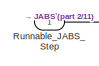
[diagram: root canvas - part 1/11, top left region]
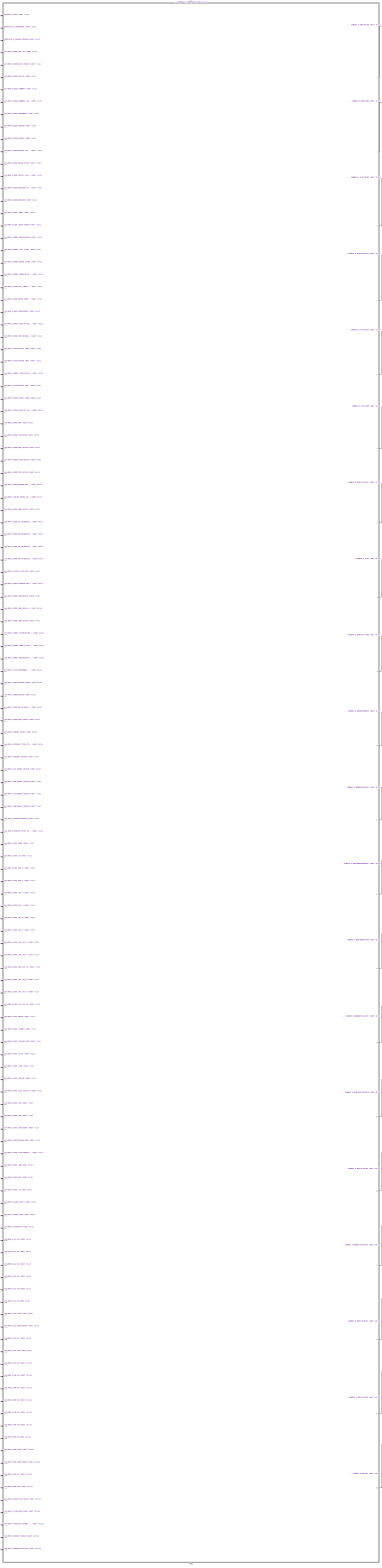
[diagram: root canvas - part 2/11, most of the canvas]
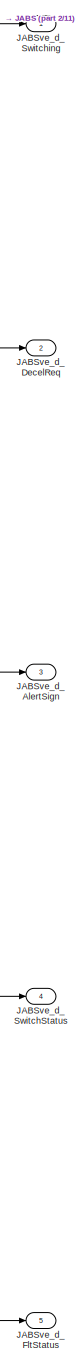
[diagram: root canvas - part 3/11, top right region]
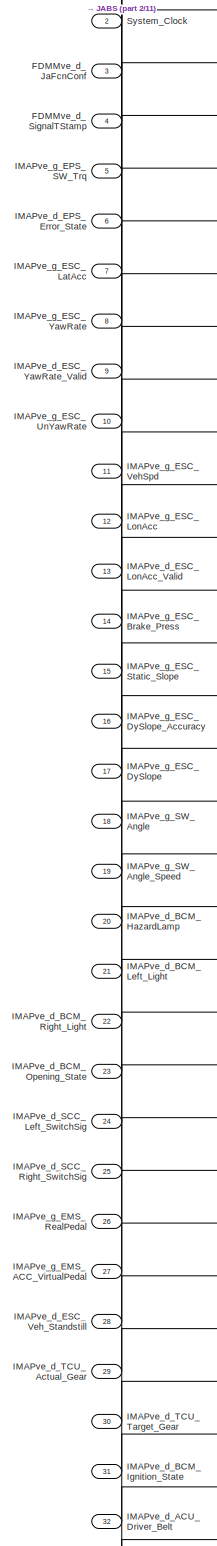
[diagram: root canvas - part 4/11, top left region]
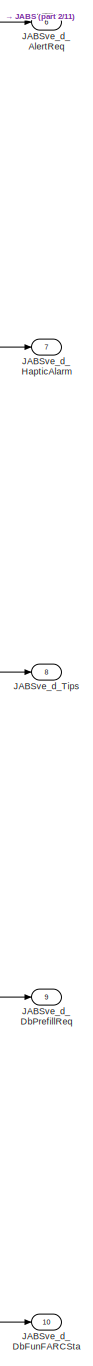
[diagram: root canvas - part 5/11, middle right region]
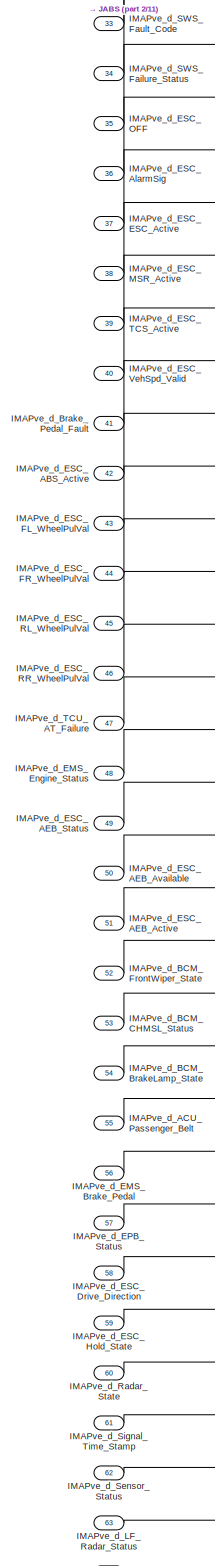
[diagram: root canvas - part 6/11, middle left region]
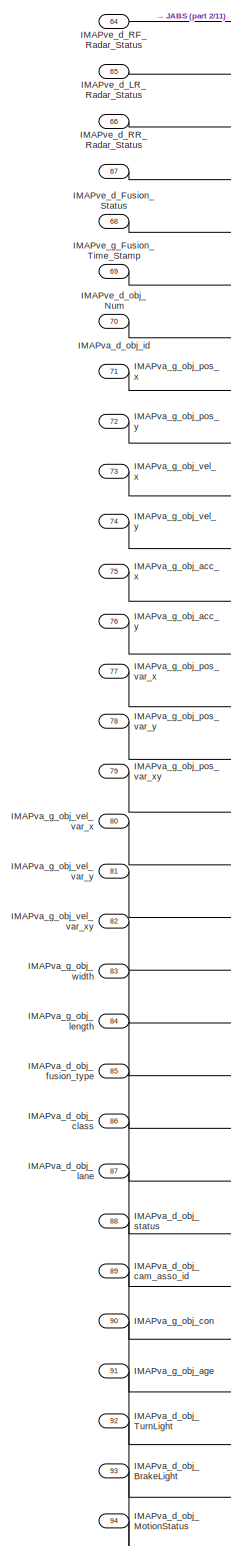
[diagram: root canvas - part 7/11, middle left region]
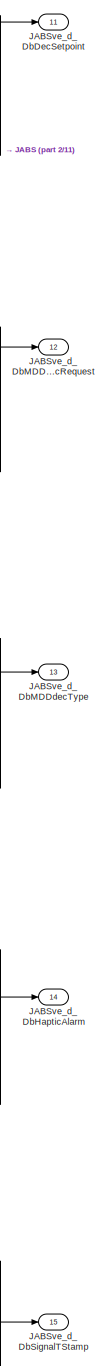
[diagram: root canvas - part 8/11, middle right region]
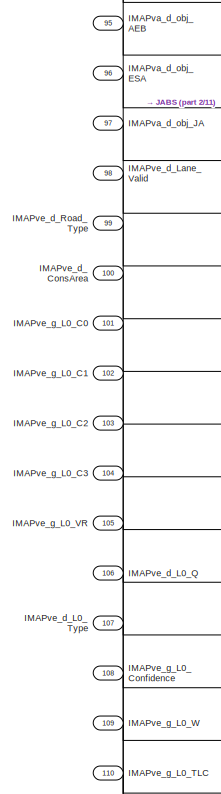
[diagram: root canvas - part 9/11, bottom left region]
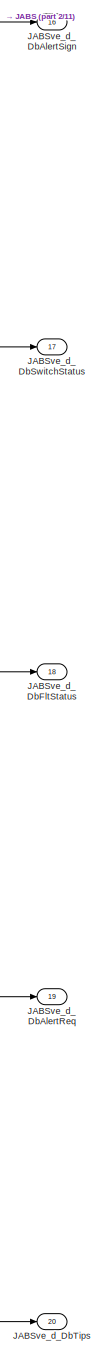
[diagram: root canvas - part 10/11, bottom right region]
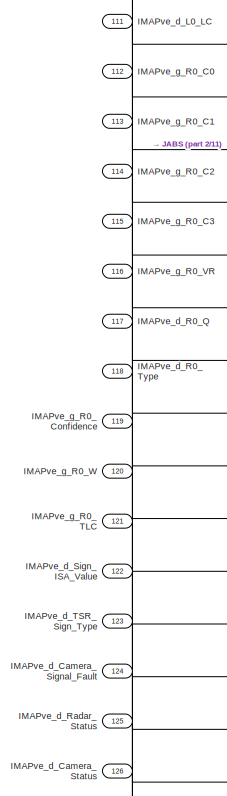
[diagram: root canvas - part 11/11, bottom left region]
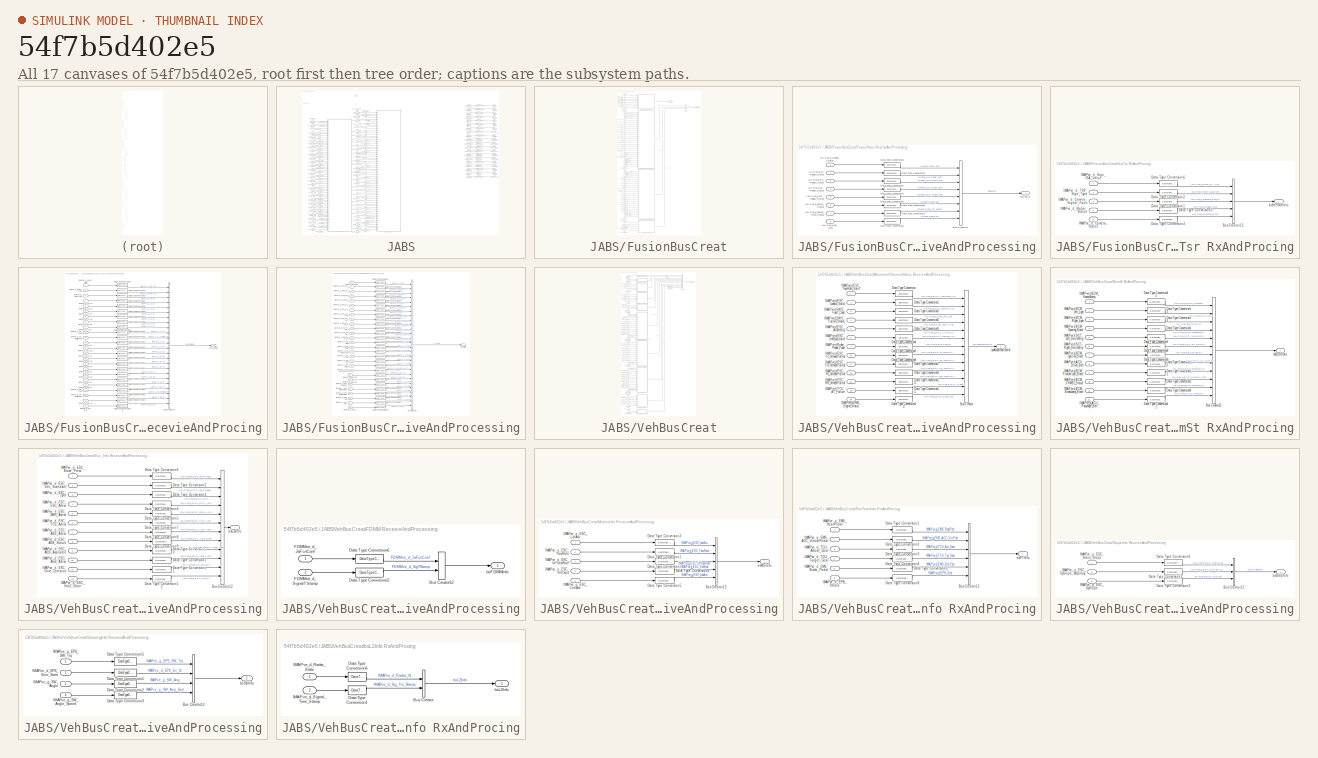
[diagram: thumbnail index - all 17 canvases of the model, root first then tree order]
MODEL slx_54f7b5d402e5
KIND model
CONFIG AbsTol = auto
CONFIG EnableMultiTasking = off
CONFIG FixedStep = 0.01
CONFIG MaxStep = auto
CONFIG MinStep = auto
CONFIG RelTol = 1e-3
CONFIG SampleTimeConstraint = Unconstrained
CONFIG Solver = FixedStepDiscrete
CONFIG SolverName = FixedStepDiscrete
CONFIG StartTime = 0.0
CONFIG StopTime = 10.0
BLOCK [Inport] FDMMve_d_JaFcnConf
  IconDisplay = Port number
  Port = 3
BLOCK [Inport] FDMMve_d_SignalTStamp
  IconDisplay = Port number
  Port = 4
BLOCK [Inport] IMAPva_d_obj_AEB
  IconDisplay = Port number
  Port = 95
BLOCK [Inport] IMAPva_d_obj_BrakeLight
  IconDisplay = Port number
  Port = 93
BLOCK [Inport] IMAPva_d_obj_ESA
  IconDisplay = Port number
  Port = 96
BLOCK [Inport] IMAPva_d_obj_JA
  IconDisplay = Port number
  Port = 97
BLOCK [Inport] IMAPva_d_obj_MotionStatus
  IconDisplay = Port number
  Port = 94
BLOCK [Inport] IMAPva_d_obj_TurnLight
  IconDisplay = Port number
  Port = 92
BLOCK [Inport] IMAPva_d_obj_cam_asso_id
  IconDisplay = Port number
  Port = 89
BLOCK [Inport] IMAPva_d_obj_class
  IconDisplay = Port number
  Port = 86
BLOCK [Inport] IMAPva_d_obj_fusion_type
  IconDisplay = Port number
  Port = 85
BLOCK [Inport] IMAPva_d_obj_id
  IconDisplay = Port number
  Port = 70
BLOCK [Inport] IMAPva_d_obj_lane
  IconDisplay = Port number
  Port = 87
BLOCK [Inport] IMAPva_d_obj_status
  IconDisplay = Port number
  Port = 88
BLOCK [Inport] IMAPva_g_obj_acc_x
  IconDisplay = Port number
  Port = 75
BLOCK [Inport] IMAPva_g_obj_acc_y
  IconDisplay = Port number
  Port = 76
BLOCK [Inport] IMAPva_g_obj_age
  IconDisplay = Port number
  Port = 91
BLOCK [Inport] IMAPva_g_obj_con
  IconDisplay = Port number
  Port = 90
BLOCK [Inport] IMAPva_g_obj_length
  IconDisplay = Port number
  Port = 84
BLOCK [Inport] IMAPva_g_obj_pos_var_x
  IconDisplay = Port number
  Port = 77
BLOCK [Inport] IMAPva_g_obj_pos_var_xy
  IconDisplay = Port number
  Port = 79
BLOCK [Inport] IMAPva_g_obj_pos_var_y
  IconDisplay = Port number
  Port = 78
BLOCK [Inport] IMAPva_g_obj_pos_x
  IconDisplay = Port number
  Port = 71
BLOCK [Inport] IMAPva_g_obj_pos_y
  IconDisplay = Port number
  Port = 72
BLOCK [Inport] IMAPva_g_obj_vel_var_x
  IconDisplay = Port number
  Port = 80
BLOCK [Inport] IMAPva_g_obj_vel_var_xy
  IconDisplay = Port number
  Port = 82
BLOCK [Inport] IMAPva_g_obj_vel_var_y
  IconDisplay = Port number
  Port = 81
BLOCK [Inport] IMAPva_g_obj_vel_x
  IconDisplay = Port number
  Port = 73
BLOCK [Inport] IMAPva_g_obj_vel_y
  IconDisplay = Port number
  Port = 74
BLOCK [Inport] IMAPva_g_obj_width
  IconDisplay = Port number
  Port = 83
BLOCK [Inport] IMAPve_d_ACU_Driver_Belt
  IconDisplay = Port number
  Port = 32
BLOCK [Inport] IMAPve_d_ACU_Passenger_Belt
  IconDisplay = Port number
  Port = 55
BLOCK [Inport] IMAPve_d_BCM_BrakeLamp_State
  IconDisplay = Port number
  Port = 54
BLOCK [Inport] IMAPve_d_BCM_CHMSL_Status
  IconDisplay = Port number
  Port = 53
BLOCK [Inport] IMAPve_d_BCM_FrontWiper_State
  IconDisplay = Port number
  Port = 52
BLOCK [Inport] IMAPve_d_BCM_HazardLamp
  IconDisplay = Port number
  Port = 20
BLOCK [Inport] IMAPve_d_BCM_Ignition_State
  IconDisplay = Port number
  Port = 31
BLOCK [Inport] IMAPve_d_BCM_Left_Light
  IconDisplay = Port number
  Port = 21
BLOCK [Inport] IMAPve_d_BCM_Opening_State
  IconDisplay = Port number
  Port = 23
BLOCK [Inport] IMAPve_d_BCM_Right_Light
  IconDisplay = Port number
  Port = 22
BLOCK [Inport] IMAPve_d_Brake_Pedal_Fault
  IconDisplay = Port number
  Port = 41
BLOCK [Inport] IMAPve_d_Camera_Signal_Fault
  IconDisplay = Port number
  Port = 124
BLOCK [Inport] IMAPve_d_Camera_Status
  IconDisplay = Port number
  Port = 126
BLOCK [Inport] IMAPve_d_ConsArea
  IconDisplay = Port number
  Port = 100
BLOCK [Inport] IMAPve_d_EMS_Brake_Pedal
  IconDisplay = Port number
  Port = 56
BLOCK [Inport] IMAPve_d_EMS_Engine_Status
  IconDisplay = Port number
  Port = 48
BLOCK [Inport] IMAPve_d_EPB_Status
  IconDisplay = Port number
  Port = 57
BLOCK [Inport] IMAPve_d_EPS_Error_State
  IconDisplay = Port number
  Port = 6
BLOCK [Inport] IMAPve_d_ESC_ABS_Active
  IconDisplay = Port number
  Port = 42
BLOCK [Inport] IMAPve_d_ESC_AEB_Active
  IconDisplay = Port number
  Port = 51
BLOCK [Inport] IMAPve_d_ESC_AEB_Available
  IconDisplay = Port number
  Port = 50
BLOCK [Inport] IMAPve_d_ESC_AEB_Status
  IconDisplay = Port number
  Port = 49
BLOCK [Inport] IMAPve_d_ESC_AlarmSig
  IconDisplay = Port number
  Port = 36
BLOCK [Inport] IMAPve_d_ESC_Drive_Direction
  IconDisplay = Port number
  Port = 58
BLOCK [Inport] IMAPve_d_ESC_ESC_Active
  IconDisplay = Port number
  Port = 37
BLOCK [Inport] IMAPve_d_ESC_FL_WheelPulVal
  IconDisplay = Port number
  Port = 43
BLOCK [Inport] IMAPve_d_ESC_FR_WheelPulVal
  IconDisplay = Port number
  Port = 44
BLOCK [Inport] IMAPve_d_ESC_Hold_State
  IconDisplay = Port number
  Port = 59
BLOCK [Inport] IMAPve_d_ESC_LonAcc_Valid
  IconDisplay = Port number
  Port = 13
BLOCK [Inport] IMAPve_d_ESC_MSR_Active
  IconDisplay = Port number
  Port = 38
BLOCK [Inport] IMAPve_d_ESC_OFF
  IconDisplay = Port number
  Port = 35
BLOCK [Inport] IMAPve_d_ESC_RL_WheelPulVal
  IconDisplay = Port number
  Port = 45
BLOCK [Inport] IMAPve_d_ESC_RR_WheelPulVal
  IconDisplay = Port number
  Port = 46
BLOCK [Inport] IMAPve_d_ESC_TCS_Active
  IconDisplay = Port number
  Port = 39
BLOCK [Inport] IMAPve_d_ESC_VehSpd_Valid
  IconDisplay = Port number
  Port = 40
BLOCK [Inport] IMAPve_d_ESC_Veh_Standstill
  IconDisplay = Port number
  Port = 28
BLOCK [Inport] IMAPve_d_ESC_YawRate_Valid
  IconDisplay = Port number
  Port = 9
BLOCK [Inport] IMAPve_d_Fusion_Status
  IconDisplay = Port number
  Port = 67
BLOCK [Inport] IMAPve_d_L0_LC
  IconDisplay = Port number
  Port = 111
BLOCK [Inport] IMAPve_d_L0_Q
  IconDisplay = Port number
  Port = 106
BLOCK [Inport] IMAPve_d_L0_Type
  IconDisplay = Port number
  Port = 107
BLOCK [Inport] IMAPve_d_LF_Radar_Status
  IconDisplay = Port number
  Port = 63
BLOCK [Inport] IMAPve_d_LR_Radar_Status
  IconDisplay = Port number
  Port = 65
BLOCK [Inport] IMAPve_d_Lane_Valid
  IconDisplay = Port number
  Port = 98
BLOCK [Inport] IMAPve_d_R0_Q
  IconDisplay = Port number
  Port = 117
BLOCK [Inport] IMAPve_d_R0_Type
  IconDisplay = Port number
  Port = 118
BLOCK [Inport] IMAPve_d_RF_Radar_Status
  IconDisplay = Port number
  Port = 64
BLOCK [Inport] IMAPve_d_RR_Radar_Status
  IconDisplay = Port number
  Port = 66
BLOCK [Inport] IMAPve_d_Radar_State
  IconDisplay = Port number
  Port = 60
BLOCK [Inport] IMAPve_d_Radar_Status
  IconDisplay = Port number
  Port = 125
BLOCK [Inport] IMAPve_d_Road_Type
  IconDisplay = Port number
  Port = 99
BLOCK [Inport] IMAPve_d_SCC_Left_SwitchSig
  IconDisplay = Port number
  Port = 24
BLOCK [Inport] IMAPve_d_SCC_Right_SwitchSig
  IconDisplay = Port number
  Port = 25
BLOCK [Inport] IMAPve_d_SWS_Failure_Status
  IconDisplay = Port number
  Port = 34
BLOCK [Inport] IMAPve_d_SWS_Fault_Code
  IconDisplay = Port number
  Port = 33
BLOCK [Inport] IMAPve_d_Sensor_Status
  IconDisplay = Port number
  Port = 62
BLOCK [Inport] IMAPve_d_Sign_ISA_Value
  IconDisplay = Port number
  Port = 122
BLOCK [Inport] IMAPve_d_Signal_Time_Stamp
  IconDisplay = Port number
  Port = 61
BLOCK [Inport] IMAPve_d_TCU_AT_Failure
  IconDisplay = Port number
  Port = 47
BLOCK [Inport] IMAPve_d_TCU_Actual_Gear
  IconDisplay = Port number
  Port = 29
BLOCK [Inport] IMAPve_d_TCU_Target_Gear
  IconDisplay = Port number
  Port = 30
BLOCK [Inport] IMAPve_d_TSR_Sign_Type
  IconDisplay = Port number
  Port = 123
BLOCK [Inport] IMAPve_d_obj_Num
  IconDisplay = Port number
  Port = 69
BLOCK [Inport] IMAPve_g_EMS_ACC_VirtualPedal
  IconDisplay = Port number
  Port = 27
BLOCK [Inport] IMAPve_g_EMS_RealPedal
  IconDisplay = Port number
  Port = 26
BLOCK [Inport] IMAPve_g_EPS_SW_Trq
  IconDisplay = Port number
  Port = 5
BLOCK [Inport] IMAPve_g_ESC_Brake_Press
  IconDisplay = Port number
  Port = 14
BLOCK [Inport] IMAPve_g_ESC_DySlope
  IconDisplay = Port number
  Port = 17
BLOCK [Inport] IMAPve_g_ESC_DySlope_Accuracy
  IconDisplay = Port number
  Port = 16
BLOCK [Inport] IMAPve_g_ESC_LatAcc
  IconDisplay = Port number
  Port = 7
BLOCK [Inport] IMAPve_g_ESC_LonAcc
  IconDisplay = Port number
  Port = 12
BLOCK [Inport] IMAPve_g_ESC_Static_Slope
  IconDisplay = Port number
  Port = 15
BLOCK [Inport] IMAPve_g_ESC_UnYawRate
  IconDisplay = Port number
  Port = 10
BLOCK [Inport] IMAPve_g_ESC_VehSpd
  IconDisplay = Port number
  Port = 11
BLOCK [Inport] IMAPve_g_ESC_YawRate
  IconDisplay = Port number
  Port = 8
BLOCK [Inport] IMAPve_g_Fusion_Time_Stamp
  IconDisplay = Port number
  Port = 68
BLOCK [Inport] IMAPve_g_L0_C0
  IconDisplay = Port number
  Port = 101
BLOCK [Inport] IMAPve_g_L0_C1
  IconDisplay = Port number
  Port = 102
BLOCK [Inport] IMAPve_g_L0_C2
  IconDisplay = Port number
  Port = 103
BLOCK [Inport] IMAPve_g_L0_C3
  IconDisplay = Port number
  Port = 104
BLOCK [Inport] IMAPve_g_L0_Confidence
  IconDisplay = Port number
  Port = 108
BLOCK [Inport] IMAPve_g_L0_TLC
  IconDisplay = Port number
  Port = 110
BLOCK [Inport] IMAPve_g_L0_VR
  IconDisplay = Port number
  Port = 105
BLOCK [Inport] IMAPve_g_L0_W
  IconDisplay = Port number
  Port = 109
BLOCK [Inport] IMAPve_g_R0_C0
  IconDisplay = Port number
  Port = 112
BLOCK [Inport] IMAPve_g_R0_C1
  IconDisplay = Port number
  Port = 113
BLOCK [Inport] IMAPve_g_R0_C2
  IconDisplay = Port number
  Port = 114
BLOCK [Inport] IMAPve_g_R0_C3
  IconDisplay = Port number
  Port = 115
BLOCK [Inport] IMAPve_g_R0_Confidence
  IconDisplay = Port number
  Port = 119
BLOCK [Inport] IMAPve_g_R0_TLC
  IconDisplay = Port number
  Port = 121
BLOCK [Inport] IMAPve_g_R0_VR
  IconDisplay = Port number
  Port = 116
BLOCK [Inport] IMAPve_g_R0_W
  IconDisplay = Port number
  Port = 120
BLOCK [Inport] IMAPve_g_SW_Angle
  IconDisplay = Port number
  Port = 18
BLOCK [Inport] IMAPve_g_SW_Angle_Speed
  IconDisplay = Port number
  Port = 19
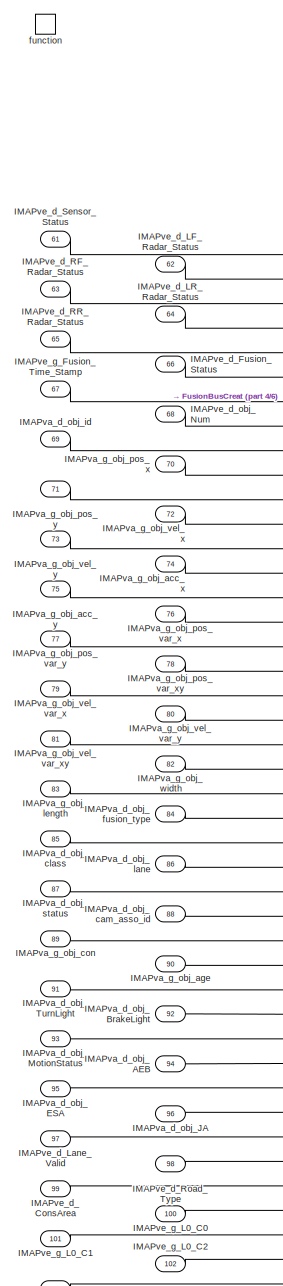
[diagram: JABS - part 1/6, middle left region]
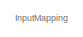
[diagram: JABS - part 2/6, top left region]
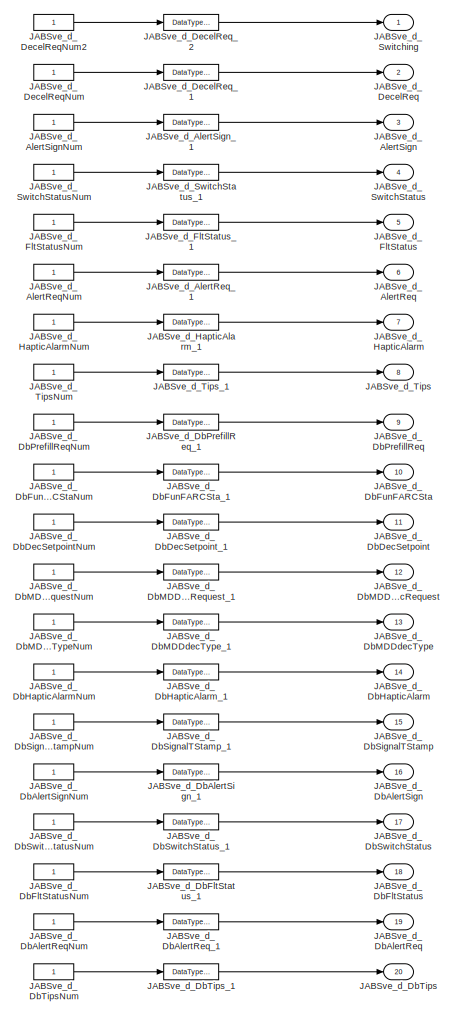
[diagram: JABS - part 3/6, middle right region]
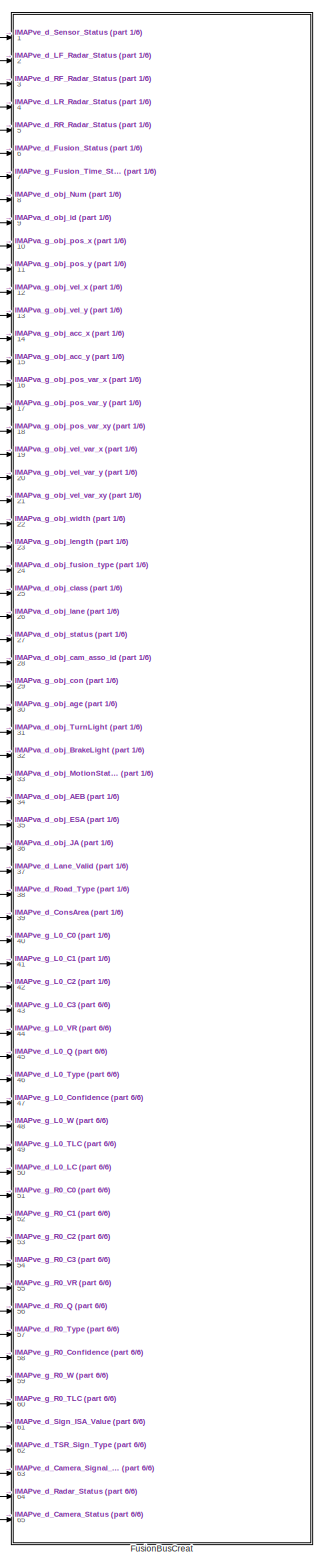
[diagram: JABS - part 4/6, center side, full height]
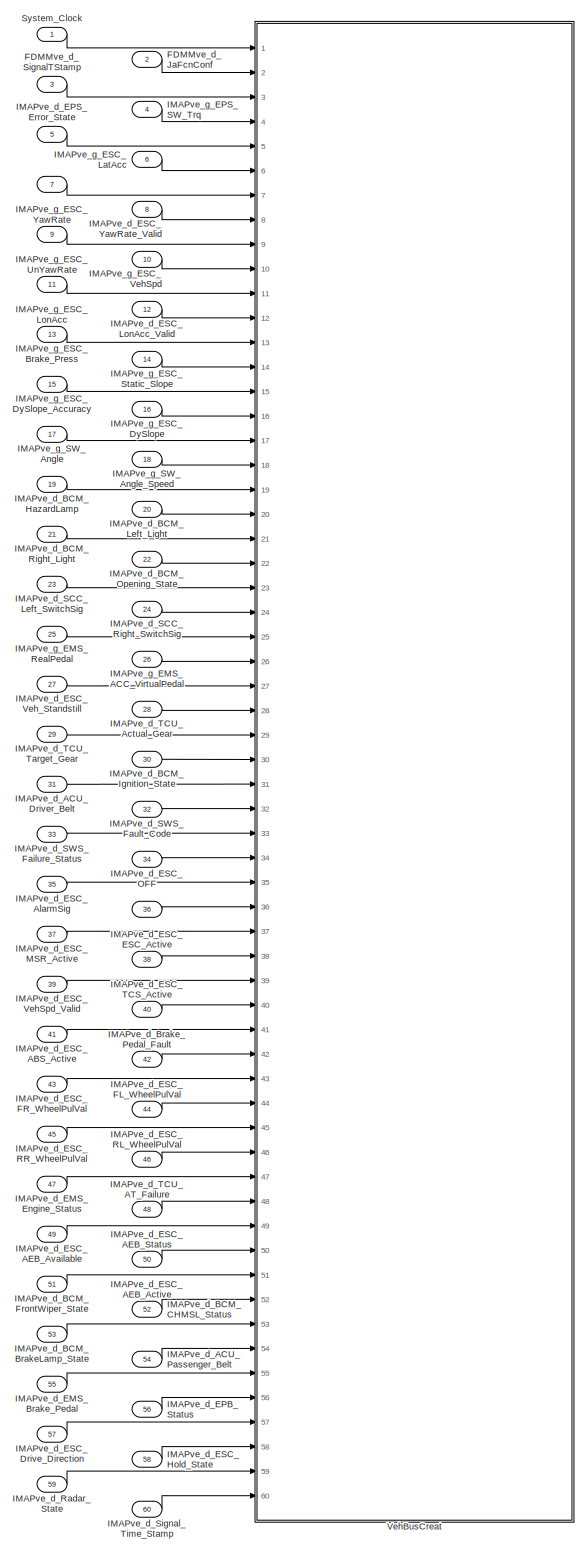
[diagram: JABS - part 5/6, left side, full height]
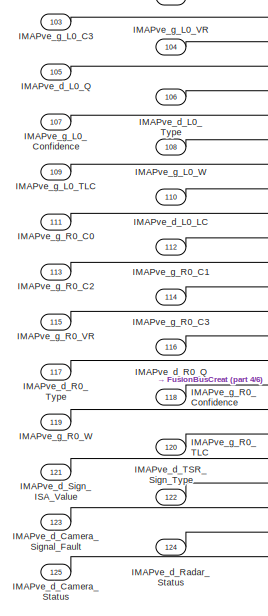
[diagram: JABS - part 6/6, bottom left region]
BLOCK [SubSystem] JABS
  Ports = [125, 20, 0, 1]
  RequestExecContextInheritance = off
  TreatAsAtomicUnit = on
BLOCK [Inport] JABS/FDMMve_d_JaFcnConf
  IconDisplay = Port number
  Port = 2
BLOCK [Inport] JABS/FDMMve_d_SignalTStamp
  IconDisplay = Port number
  Port = 3
BLOCK [SubSystem] JABS/FusionBusCreat
  Ports = [65]
  RequestExecContextInheritance = off
BLOCK [BusCreator] JABS/FusionBusCreat/Bus Creator
  DisplayOption = bar
  InheritFromInputs = on
  Inputs = 3
  Ports = [3, 1]
BLOCK [SubSystem] JABS/FusionBusCreat/FusionState ReceiveAndProcessing
  Ports = [8, 1]
  RequestExecContextInheritance = off
BLOCK [BusCreator] JABS/FusionBusCreat/FusionState ReceiveAndProcessing/Bus Creator12
  DisplayOption = bar
  InheritFromInputs = on
  Inputs = 8
  Ports = [8, 1]
BLOCK [DataTypeConversion] JABS/FusionBusCreat/FusionState ReceiveAndProcessing/Data Type Conversion1
  OutDataTypeStr = uint16
  RndMeth = Floor
  SaturateOnIntegerOverflow = off
BLOCK [DataTypeConversion] JABS/FusionBusCreat/FusionState ReceiveAndProcessing/Data Type Conversion2
  OutDataTypeStr = uint16
  RndMeth = Floor
  SaturateOnIntegerOverflow = off
BLOCK [DataTypeConversion] JABS/FusionBusCreat/FusionState ReceiveAndProcessing/Data Type Conversion3
  OutDataTypeStr = uint16
  RndMeth = Floor
  SaturateOnIntegerOverflow = off
BLOCK [DataTypeConversion] JABS/FusionBusCreat/FusionState ReceiveAndProcessing/Data Type Conversion4
  OutDataTypeStr = uint16
  RndMeth = Floor
  SaturateOnIntegerOverflow = off
BLOCK [DataTypeConversion] JABS/FusionBusCreat/FusionState ReceiveAndProcessing/Data Type Conversion5
  OutDataTypeStr = uint16
  RndMeth = Floor
  SaturateOnIntegerOverflow = off
BLOCK [DataTypeConversion] JABS/FusionBusCreat/FusionState ReceiveAndProcessing/Data Type Conversion6
  OutDataTypeStr = uint16
  RndMeth = Floor
  SaturateOnIntegerOverflow = off
BLOCK [DataTypeConversion] JABS/FusionBusCreat/FusionState ReceiveAndProcessing/Data Type Conversion7
  OutDataTypeStr = uint16
  RndMeth = Floor
  SaturateOnIntegerOverflow = off
BLOCK [DataTypeConversion] JABS/FusionBusCreat/FusionState ReceiveAndProcessing/Data Type Conversion8
  OutDataTypeStr = uint16
  RndMeth = Floor
  SaturateOnIntegerOverflow = off
BLOCK [Inport] JABS/FusionBusCreat/FusionState ReceiveAndProcessing/IMAPve_d_Fusion_Status
  IconDisplay = Port number
  Port = 6
BLOCK [Inport] JABS/FusionBusCreat/FusionState ReceiveAndProcessing/IMAPve_d_LF_Radar_Status
  IconDisplay = Port number
  Port = 2
BLOCK [Inport] JABS/FusionBusCreat/FusionState ReceiveAndProcessing/IMAPve_d_LR_Radar_Status
  IconDisplay = Port number
  Port = 4
BLOCK [Inport] JABS/FusionBusCreat/FusionState ReceiveAndProcessing/IMAPve_d_RF_Radar_Status
  IconDisplay = Port number
  Port = 3
BLOCK [Inport] JABS/FusionBusCreat/FusionState ReceiveAndProcessing/IMAPve_d_RR_Radar_Status
  IconDisplay = Port number
  Port = 5
BLOCK [Inport] JABS/FusionBusCreat/FusionState ReceiveAndProcessing/IMAPve_d_Sensor_Status
  IconDisplay = Port number
BLOCK [Inport] JABS/FusionBusCreat/FusionState ReceiveAndProcessing/IMAPve_d_obj_Num
  IconDisplay = Port number
  Port = 8
BLOCK [Inport] JABS/FusionBusCreat/FusionState ReceiveAndProcessing/IMAPve_g_Fusion_Time_Stamp
  IconDisplay = Port number
  Port = 7
BLOCK [Outport] JABS/FusionBusCreat/FusionState ReceiveAndProcessing/bsSnsrSt
  IconDisplay = Port number
BLOCK [Goto] JABS/FusionBusCreat/Goto
  GotoTag = bsSnsrSt
  TagVisibility = global
BLOCK [Inport] JABS/FusionBusCreat/IMAPva_d_obj_AEB
  IconDisplay = Port number
  Port = 34
BLOCK [Inport] JABS/FusionBusCreat/IMAPva_d_obj_BrakeLight
  IconDisplay = Port number
  Port = 32
BLOCK [Inport] JABS/FusionBusCreat/IMAPva_d_obj_ESA
  IconDisplay = Port number
  Port = 35
BLOCK [Inport] JABS/FusionBusCreat/IMAPva_d_obj_JA
  IconDisplay = Port number
  Port = 36
BLOCK [Inport] JABS/FusionBusCreat/IMAPva_d_obj_MotionStatus
  IconDisplay = Port number
  Port = 33
BLOCK [Inport] JABS/FusionBusCreat/IMAPva_d_obj_TurnLight
  IconDisplay = Port number
  Port = 31
BLOCK [Inport] JABS/FusionBusCreat/IMAPva_d_obj_cam_asso_id
  IconDisplay = Port number
  Port = 28
BLOCK [Inport] JABS/FusionBusCreat/IMAPva_d_obj_class
  IconDisplay = Port number
  Port = 25
BLOCK [Inport] JABS/FusionBusCreat/IMAPva_d_obj_fusion_type
  IconDisplay = Port number
  Port = 24
BLOCK [Inport] JABS/FusionBusCreat/IMAPva_d_obj_id
  IconDisplay = Port number
  Port = 9
BLOCK [Inport] JABS/FusionBusCreat/IMAPva_d_obj_lane
  IconDisplay = Port number
  Port = 26
BLOCK [Inport] JABS/FusionBusCreat/IMAPva_d_obj_status
  IconDisplay = Port number
  Port = 27
BLOCK [Inport] JABS/FusionBusCreat/IMAPva_g_obj_acc_x
  IconDisplay = Port number
  Port = 14
BLOCK [Inport] JABS/FusionBusCreat/IMAPva_g_obj_acc_y
  IconDisplay = Port number
  Port = 15
BLOCK [Inport] JABS/FusionBusCreat/IMAPva_g_obj_age
  IconDisplay = Port number
  Port = 30
BLOCK [Inport] JABS/FusionBusCreat/IMAPva_g_obj_con
  IconDisplay = Port number
  Port = 29
BLOCK [Inport] JABS/FusionBusCreat/IMAPva_g_obj_length
  IconDisplay = Port number
  Port = 23
BLOCK [Inport] JABS/FusionBusCreat/IMAPva_g_obj_pos_var_x
  IconDisplay = Port number
  Port = 16
BLOCK [Inport] JABS/FusionBusCreat/IMAPva_g_obj_pos_var_xy
  IconDisplay = Port number
  Port = 18
BLOCK [Inport] JABS/FusionBusCreat/IMAPva_g_obj_pos_var_y
  IconDisplay = Port number
  Port = 17
BLOCK [Inport] JABS/FusionBusCreat/IMAPva_g_obj_pos_x
  IconDisplay = Port number
  Port = 10
BLOCK [Inport] JABS/FusionBusCreat/IMAPva_g_obj_pos_y
  IconDisplay = Port number
  Port = 11
BLOCK [Inport] JABS/FusionBusCreat/IMAPva_g_obj_vel_var_x
  IconDisplay = Port number
  Port = 19
BLOCK [Inport] JABS/FusionBusCreat/IMAPva_g_obj_vel_var_xy
  IconDisplay = Port number
  Port = 21
BLOCK [Inport] JABS/FusionBusCreat/IMAPva_g_obj_vel_var_y
  IconDisplay = Port number
  Port = 20
BLOCK [Inport] JABS/FusionBusCreat/IMAPva_g_obj_vel_x
  IconDisplay = Port number
  Port = 12
BLOCK [Inport] JABS/FusionBusCreat/IMAPva_g_obj_vel_y
  IconDisplay = Port number
  Port = 13
BLOCK [Inport] JABS/FusionBusCreat/IMAPva_g_obj_width
  IconDisplay = Port number
  Port = 22
BLOCK [Inport] JABS/FusionBusCreat/IMAPve_d_Camera_Signal_Fault
  IconDisplay = Port number
  Port = 63
BLOCK [Inport] JABS/FusionBusCreat/IMAPve_d_Camera_Status
  IconDisplay = Port number
  Port = 65
BLOCK [Inport] JABS/FusionBusCreat/IMAPve_d_ConsArea
  IconDisplay = Port number
  Port = 39
BLOCK [Inport] JABS/FusionBusCreat/IMAPve_d_Fusion_Status
  IconDisplay = Port number
  Port = 6
BLOCK [Inport] JABS/FusionBusCreat/IMAPve_d_L0_LC
  IconDisplay = Port number
  Port = 50
BLOCK [Inport] JABS/FusionBusCreat/IMAPve_d_L0_Q
  IconDisplay = Port number
  Port = 45
BLOCK [Inport] JABS/FusionBusCreat/IMAPve_d_L0_Type
  IconDisplay = Port number
  Port = 46
BLOCK [Inport] JABS/FusionBusCreat/IMAPve_d_LF_Radar_Status
  IconDisplay = Port number
  Port = 2
BLOCK [Inport] JABS/FusionBusCreat/IMAPve_d_LR_Radar_Status
  IconDisplay = Port number
  Port = 4
BLOCK [Inport] JABS/FusionBusCreat/IMAPve_d_Lane_Valid
  IconDisplay = Port number
  Port = 37
BLOCK [Inport] JABS/FusionBusCreat/IMAPve_d_R0_Q
  IconDisplay = Port number
  Port = 56
BLOCK [Inport] JABS/FusionBusCreat/IMAPve_d_R0_Type
  IconDisplay = Port number
  Port = 57
BLOCK [Inport] JABS/FusionBusCreat/IMAPve_d_RF_Radar_Status
  IconDisplay = Port number
  Port = 3
BLOCK [Inport] JABS/FusionBusCreat/IMAPve_d_RR_Radar_Status
  IconDisplay = Port number
  Port = 5
BLOCK [Inport] JABS/FusionBusCreat/IMAPve_d_Radar_Status
  IconDisplay = Port number
  Port = 64
BLOCK [Inport] JABS/FusionBusCreat/IMAPve_d_Road_Type
  IconDisplay = Port number
  Port = 38
BLOCK [Inport] JABS/FusionBusCreat/IMAPve_d_Sensor_Status
  IconDisplay = Port number
BLOCK [Inport] JABS/FusionBusCreat/IMAPve_d_Sign_ISA_Value
  IconDisplay = Port number
  Port = 61
BLOCK [Inport] JABS/FusionBusCreat/IMAPve_d_TSR_Sign_Type
  IconDisplay = Port number
  Port = 62
BLOCK [Inport] JABS/FusionBusCreat/IMAPve_d_obj_Num
  IconDisplay = Port number
  Port = 8
BLOCK [Inport] JABS/FusionBusCreat/IMAPve_g_Fusion_Time_Stamp
  IconDisplay = Port number
  Port = 7
BLOCK [Inport] JABS/FusionBusCreat/IMAPve_g_L0_C0
  IconDisplay = Port number
  Port = 40
BLOCK [Inport] JABS/FusionBusCreat/IMAPve_g_L0_C1
  IconDisplay = Port number
  Port = 41
BLOCK [Inport] JABS/FusionBusCreat/IMAPve_g_L0_C2
  IconDisplay = Port number
  Port = 42
BLOCK [Inport] JABS/FusionBusCreat/IMAPve_g_L0_C3
  IconDisplay = Port number
  Port = 43
BLOCK [Inport] JABS/FusionBusCreat/IMAPve_g_L0_Confidence
  IconDisplay = Port number
  Port = 47
BLOCK [Inport] JABS/FusionBusCreat/IMAPve_g_L0_TLC
  IconDisplay = Port number
  Port = 49
BLOCK [Inport] JABS/FusionBusCreat/IMAPve_g_L0_VR
  IconDisplay = Port number
  Port = 44
BLOCK [Inport] JABS/FusionBusCreat/IMAPve_g_L0_W
  IconDisplay = Port number
  Port = 48
BLOCK [Inport] JABS/FusionBusCreat/IMAPve_g_R0_C0
  IconDisplay = Port number
  Port = 51
BLOCK [Inport] JABS/FusionBusCreat/IMAPve_g_R0_C1
  IconDisplay = Port number
  Port = 52
BLOCK [Inport] JABS/FusionBusCreat/IMAPve_g_R0_C2
  IconDisplay = Port number
  Port = 53
BLOCK [Inport] JABS/FusionBusCreat/IMAPve_g_R0_C3
  IconDisplay = Port number
  Port = 54
BLOCK [Inport] JABS/FusionBusCreat/IMAPve_g_R0_Confidence
  IconDisplay = Port number
  Port = 58
BLOCK [Inport] JABS/FusionBusCreat/IMAPve_g_R0_TLC
  IconDisplay = Port number
  Port = 60
BLOCK [Inport] JABS/FusionBusCreat/IMAPve_g_R0_VR
  IconDisplay = Port number
  Port = 55
BLOCK [Inport] JABS/FusionBusCreat/IMAPve_g_R0_W
  IconDisplay = Port number
  Port = 59
BLOCK [SubSystem] JABS/FusionBusCreat/IsaTsr RxAndProcing
  Ports = [5, 1]
  RequestExecContextInheritance = off
BLOCK [BusCreator] JABS/FusionBusCreat/IsaTsr RxAndProcing/Bus Creator13
  DisplayOption = bar
  InheritFromInputs = on
  Inputs = 5
  Ports = [5, 1]
BLOCK [DataTypeConversion] JABS/FusionBusCreat/IsaTsr RxAndProcing/Data Type Conversion1
  OutDataTypeStr = uint16
  RndMeth = Floor
  SaturateOnIntegerOverflow = off
BLOCK [DataTypeConversion] JABS/FusionBusCreat/IsaTsr RxAndProcing/Data Type Conversion2
  OutDataTypeStr = uint16
  RndMeth = Floor
  SaturateOnIntegerOverflow = off
BLOCK [DataTypeConversion] JABS/FusionBusCreat/IsaTsr RxAndProcing/Data Type Conversion3
  OutDataTypeStr = uint16
  RndMeth = Floor
  SaturateOnIntegerOverflow = off
BLOCK [DataTypeConversion] JABS/FusionBusCreat/IsaTsr RxAndProcing/Data Type Conversion4
  OutDataTypeStr = uint16
  RndMeth = Floor
  SaturateOnIntegerOverflow = off
BLOCK [DataTypeConversion] JABS/FusionBusCreat/IsaTsr RxAndProcing/Data Type Conversion6
  OutDataTypeStr = uint16
  RndMeth = Floor
  SaturateOnIntegerOverflow = off
BLOCK [Inport] JABS/FusionBusCreat/IsaTsr RxAndProcing/IMAPve_d_Camera_Signal_Fault
  IconDisplay = Port number
  Port = 3
BLOCK [Inport] JABS/FusionBusCreat/IsaTsr RxAndProcing/IMAPve_d_Camera_Status
  IconDisplay = Port number
  Port = 5
BLOCK [Inport] JABS/FusionBusCreat/IsaTsr RxAndProcing/IMAPve_d_Radar_Status
  IconDisplay = Port number
  Port = 4
BLOCK [Inport] JABS/FusionBusCreat/IsaTsr RxAndProcing/IMAPve_d_Sign_ISA_Value
  IconDisplay = Port number
BLOCK [Inport] JABS/FusionBusCreat/IsaTsr RxAndProcing/IMAPve_d_TSR_Sign_Type
  IconDisplay = Port number
  Port = 2
BLOCK [Outport] JABS/FusionBusCreat/IsaTsr RxAndProcing/bsSensOhters
  IconDisplay = Port number
BLOCK [SubSystem] JABS/FusionBusCreat/LaneInfo RecevieAndProcing
  Ports = [24, 1]
  RequestExecContextInheritance = off
BLOCK [BusCreator] JABS/FusionBusCreat/LaneInfo RecevieAndProcing/Bus Creator12
  DisplayOption = bar
  InheritFromInputs = on
  Inputs = 24
  Ports = [24, 1]
BLOCK [DataTypeConversion] JABS/FusionBusCreat/LaneInfo RecevieAndProcing/Data Type Conversion1
  OutDataTypeStr = uint16
  RndMeth = Floor
  SaturateOnIntegerOverflow = off
BLOCK [DataTypeConversion] JABS/FusionBusCreat/LaneInfo RecevieAndProcing/Data Type Conversion10
  OutDataTypeStr = uint16
  RndMeth = Floor
  SaturateOnIntegerOverflow = off
BLOCK [DataTypeConversion] JABS/FusionBusCreat/LaneInfo RecevieAndProcing/Data Type Conversion11
  OutDataTypeStr = single
  RndMeth = Floor
  SaturateOnIntegerOverflow = off
BLOCK [DataTypeConversion] JABS/FusionBusCreat/LaneInfo RecevieAndProcing/Data Type Conversion12
  OutDataTypeStr = single
  RndMeth = Floor
  SaturateOnIntegerOverflow = off
BLOCK [DataTypeConversion] JABS/FusionBusCreat/LaneInfo RecevieAndProcing/Data Type Conversion13
  OutDataTypeStr = single
  RndMeth = Floor
  SaturateOnIntegerOverflow = off
BLOCK [DataTypeConversion] JABS/FusionBusCreat/LaneInfo RecevieAndProcing/Data Type Conversion14
  OutDataTypeStr = uint16
  RndMeth = Floor
  SaturateOnIntegerOverflow = off
BLOCK [DataTypeConversion] JABS/FusionBusCreat/LaneInfo RecevieAndProcing/Data Type Conversion15
  OutDataTypeStr = uint16
  RndMeth = Floor
  SaturateOnIntegerOverflow = off
BLOCK [DataTypeConversion] JABS/FusionBusCreat/LaneInfo RecevieAndProcing/Data Type Conversion16
  OutDataTypeStr = single
  RndMeth = Floor
  SaturateOnIntegerOverflow = off
BLOCK [DataTypeConversion] JABS/FusionBusCreat/LaneInfo RecevieAndProcing/Data Type Conversion17
  OutDataTypeStr = single
  RndMeth = Floor
  SaturateOnIntegerOverflow = off
BLOCK [DataTypeConversion] JABS/FusionBusCreat/LaneInfo RecevieAndProcing/Data Type Conversion18
  OutDataTypeStr = single
  RndMeth = Floor
  SaturateOnIntegerOverflow = off
BLOCK [DataTypeConversion] JABS/FusionBusCreat/LaneInfo RecevieAndProcing/Data Type Conversion2
  OutDataTypeStr = uint16
  RndMeth = Floor
  SaturateOnIntegerOverflow = off
BLOCK [DataTypeConversion] JABS/FusionBusCreat/LaneInfo RecevieAndProcing/Data Type Conversion20
  OutDataTypeStr = single
  RndMeth = Floor
  SaturateOnIntegerOverflow = off
BLOCK [DataTypeConversion] JABS/FusionBusCreat/LaneInfo RecevieAndProcing/Data Type Conversion21
  OutDataTypeStr = single
  RndMeth = Floor
  SaturateOnIntegerOverflow = off
BLOCK [DataTypeConversion] JABS/FusionBusCreat/LaneInfo RecevieAndProcing/Data Type Conversion22
  OutDataTypeStr = single
  RndMeth = Floor
  SaturateOnIntegerOverflow = off
BLOCK [DataTypeConversion] JABS/FusionBusCreat/LaneInfo RecevieAndProcing/Data Type Conversion23
  OutDataTypeStr = single
  RndMeth = Floor
  SaturateOnIntegerOverflow = off
BLOCK [DataTypeConversion] JABS/FusionBusCreat/LaneInfo RecevieAndProcing/Data Type Conversion24
  OutDataTypeStr = single
  RndMeth = Floor
  SaturateOnIntegerOverflow = off
BLOCK [DataTypeConversion] JABS/FusionBusCreat/LaneInfo RecevieAndProcing/Data Type Conversion25
  OutDataTypeStr = uint16
  RndMeth = Floor
  SaturateOnIntegerOverflow = off
BLOCK [DataTypeConversion] JABS/FusionBusCreat/LaneInfo RecevieAndProcing/Data Type Conversion3
  OutDataTypeStr = uint16
  RndMeth = Floor
  SaturateOnIntegerOverflow = off
BLOCK [DataTypeConversion] JABS/FusionBusCreat/LaneInfo RecevieAndProcing/Data Type Conversion4
  OutDataTypeStr = single
  RndMeth = Floor
  SaturateOnIntegerOverflow = off
BLOCK [DataTypeConversion] JABS/FusionBusCreat/LaneInfo RecevieAndProcing/Data Type Conversion5
  OutDataTypeStr = single
  RndMeth = Floor
  SaturateOnIntegerOverflow = off
BLOCK [DataTypeConversion] JABS/FusionBusCreat/LaneInfo RecevieAndProcing/Data Type Conversion6
  OutDataTypeStr = single
  RndMeth = Floor
  SaturateOnIntegerOverflow = off
BLOCK [DataTypeConversion] JABS/FusionBusCreat/LaneInfo RecevieAndProcing/Data Type Conversion7
  OutDataTypeStr = single
  RndMeth = Floor
  SaturateOnIntegerOverflow = off
BLOCK [DataTypeConversion] JABS/FusionBusCreat/LaneInfo RecevieAndProcing/Data Type Conversion8
  OutDataTypeStr = single
  RndMeth = Floor
  SaturateOnIntegerOverflow = off
BLOCK [DataTypeConversion] JABS/FusionBusCreat/LaneInfo RecevieAndProcing/Data Type Conversion9
  OutDataTypeStr = uint16
  RndMeth = Floor
  SaturateOnIntegerOverflow = off
BLOCK [Inport] JABS/FusionBusCreat/LaneInfo RecevieAndProcing/IMAPve_d_ConsArea
  IconDisplay = Port number
  Port = 3
BLOCK [Inport] JABS/FusionBusCreat/LaneInfo RecevieAndProcing/IMAPve_d_L0_LC
  IconDisplay = Port number
  Port = 14
BLOCK [Inport] JABS/FusionBusCreat/LaneInfo RecevieAndProcing/IMAPve_d_L0_Q
  IconDisplay = Port number
  Port = 9
BLOCK [Inport] JABS/FusionBusCreat/LaneInfo RecevieAndProcing/IMAPve_d_L0_Type
  IconDisplay = Port number
  Port = 10
BLOCK [Inport] JABS/FusionBusCreat/LaneInfo RecevieAndProcing/IMAPve_d_Lane_Valid
  IconDisplay = Port number
BLOCK [Inport] JABS/FusionBusCreat/LaneInfo RecevieAndProcing/IMAPve_d_R0_Q
  IconDisplay = Port number
  Port = 20
BLOCK [Inport] JABS/FusionBusCreat/LaneInfo RecevieAndProcing/IMAPve_d_R0_Type
  IconDisplay = Port number
  Port = 21
BLOCK [Inport] JABS/FusionBusCreat/LaneInfo RecevieAndProcing/IMAPve_d_Road_Type
  IconDisplay = Port number
  Port = 2
BLOCK [Inport] JABS/FusionBusCreat/LaneInfo RecevieAndProcing/IMAPve_g_L0_C0
  IconDisplay = Port number
  Port = 4
BLOCK [Inport] JABS/FusionBusCreat/LaneInfo RecevieAndProcing/IMAPve_g_L0_C1
  IconDisplay = Port number
  Port = 5
BLOCK [Inport] JABS/FusionBusCreat/LaneInfo RecevieAndProcing/IMAPve_g_L0_C2
  IconDisplay = Port number
  Port = 6
BLOCK [Inport] JABS/FusionBusCreat/LaneInfo RecevieAndProcing/IMAPve_g_L0_C3
  IconDisplay = Port number
  Port = 7
BLOCK [Inport] JABS/FusionBusCreat/LaneInfo RecevieAndProcing/IMAPve_g_L0_Confidence
  IconDisplay = Port number
  Port = 11
BLOCK [Inport] JABS/FusionBusCreat/LaneInfo RecevieAndProcing/IMAPve_g_L0_TLC
  IconDisplay = Port number
  Port = 13
BLOCK [Inport] JABS/FusionBusCreat/LaneInfo RecevieAndProcing/IMAPve_g_L0_VR
  IconDisplay = Port number
  Port = 8
BLOCK [Inport] JABS/FusionBusCreat/LaneInfo RecevieAndProcing/IMAPve_g_L0_W
  IconDisplay = Port number
  Port = 12
BLOCK [Inport] JABS/FusionBusCreat/LaneInfo RecevieAndProcing/IMAPve_g_R0_C0
  IconDisplay = Port number
  Port = 15
BLOCK [Inport] JABS/FusionBusCreat/LaneInfo RecevieAndProcing/IMAPve_g_R0_C1
  IconDisplay = Port number
  Port = 16
BLOCK [Inport] JABS/FusionBusCreat/LaneInfo RecevieAndProcing/IMAPve_g_R0_C2
  IconDisplay = Port number
  Port = 17
BLOCK [Inport] JABS/FusionBusCreat/LaneInfo RecevieAndProcing/IMAPve_g_R0_C3
  IconDisplay = Port number
  Port = 18
BLOCK [Inport] JABS/FusionBusCreat/LaneInfo RecevieAndProcing/IMAPve_g_R0_Confidence
  IconDisplay = Port number
  Port = 22
BLOCK [Inport] JABS/FusionBusCreat/LaneInfo RecevieAndProcing/IMAPve_g_R0_TLC
  IconDisplay = Port number
  Port = 24
BLOCK [Inport] JABS/FusionBusCreat/LaneInfo RecevieAndProcing/IMAPve_g_R0_VR
  IconDisplay = Port number
  Port = 19
BLOCK [Inport] JABS/FusionBusCreat/LaneInfo RecevieAndProcing/IMAPve_g_R0_W
  IconDisplay = Port number
  Port = 23
BLOCK [Outport] JABS/FusionBusCreat/LaneInfo RecevieAndProcing/bsLaneInfo
  IconDisplay = Port number
BLOCK [SubSystem] JABS/FusionBusCreat/ObjectInfo ReceiveAndProcessing
  Ports = [28, 1]
  RequestExecContextInheritance = off
BLOCK [BusCreator] JABS/FusionBusCreat/ObjectInfo ReceiveAndProcessing/Bus Creator12
  DisplayOption = bar
  InheritFromInputs = on
  Inputs = 28
  Ports = [28, 1]
  Tag = RawSignalZip
BLOCK [DataTypeConversion] JABS/FusionBusCreat/ObjectInfo ReceiveAndProcessing/Data Type Conversion1
  OutDataTypeStr = uint16
  RndMeth = Floor
  SaturateOnIntegerOverflow = off
BLOCK [DataTypeConversion] JABS/FusionBusCreat/ObjectInfo ReceiveAndProcessing/Data Type Conversion10
  OutDataTypeStr = single
  RndMeth = Floor
  SaturateOnIntegerOverflow = off
BLOCK [DataTypeConversion] JABS/FusionBusCreat/ObjectInfo ReceiveAndProcessing/Data Type Conversion11
  OutDataTypeStr = single
  RndMeth = Floor
  SaturateOnIntegerOverflow = off
BLOCK [DataTypeConversion] JABS/FusionBusCreat/ObjectInfo ReceiveAndProcessing/Data Type Conversion12
  OutDataTypeStr = single
  RndMeth = Floor
  SaturateOnIntegerOverflow = off
BLOCK [DataTypeConversion] JABS/FusionBusCreat/ObjectInfo ReceiveAndProcessing/Data Type Conversion13
  OutDataTypeStr = single
  RndMeth = Floor
  SaturateOnIntegerOverflow = off
BLOCK [DataTypeConversion] JABS/FusionBusCreat/ObjectInfo ReceiveAndProcessing/Data Type Conversion14
  OutDataTypeStr = single
  RndMeth = Floor
  SaturateOnIntegerOverflow = off
BLOCK [DataTypeConversion] JABS/FusionBusCreat/ObjectInfo ReceiveAndProcessing/Data Type Conversion15
  OutDataTypeStr = single
  RndMeth = Floor
  SaturateOnIntegerOverflow = off
BLOCK [DataTypeConversion] JABS/FusionBusCreat/ObjectInfo ReceiveAndProcessing/Data Type Conversion16
  OutDataTypeStr = single
  RndMeth = Floor
  SaturateOnIntegerOverflow = off
BLOCK [DataTypeConversion] JABS/FusionBusCreat/ObjectInfo ReceiveAndProcessing/Data Type Conversion17
  OutDataTypeStr = uint16
  RndMeth = Floor
  SaturateOnIntegerOverflow = off
BLOCK [DataTypeConversion] JABS/FusionBusCreat/ObjectInfo ReceiveAndProcessing/Data Type Conversion18
  OutDataTypeStr = uint16
  RndMeth = Floor
  SaturateOnIntegerOverflow = off
BLOCK [DataTypeConversion] JABS/FusionBusCreat/ObjectInfo ReceiveAndProcessing/Data Type Conversion19
  OutDataTypeStr = uint16
  RndMeth = Floor
  SaturateOnIntegerOverflow = off
BLOCK [DataTypeConversion] JABS/FusionBusCreat/ObjectInfo ReceiveAndProcessing/Data Type Conversion2
  OutDataTypeStr = single
  RndMeth = Floor
  SaturateOnIntegerOverflow = off
BLOCK [DataTypeConversion] JABS/FusionBusCreat/ObjectInfo ReceiveAndProcessing/Data Type Conversion20
  OutDataTypeStr = uint16
  RndMeth = Floor
  SaturateOnIntegerOverflow = off
BLOCK [DataTypeConversion] JABS/FusionBusCreat/ObjectInfo ReceiveAndProcessing/Data Type Conversion21
  OutDataTypeStr = uint16
  RndMeth = Floor
  SaturateOnIntegerOverflow = off
BLOCK [DataTypeConversion] JABS/FusionBusCreat/ObjectInfo ReceiveAndProcessing/Data Type Conversion22
  OutDataTypeStr = single
  RndMeth = Floor
  SaturateOnIntegerOverflow = off
BLOCK [DataTypeConversion] JABS/FusionBusCreat/ObjectInfo ReceiveAndProcessing/Data Type Conversion23
  OutDataTypeStr = single
  RndMeth = Floor
  SaturateOnIntegerOverflow = off
BLOCK [DataTypeConversion] JABS/FusionBusCreat/ObjectInfo ReceiveAndProcessing/Data Type Conversion24
  OutDataTypeStr = uint16
  RndMeth = Floor
  SaturateOnIntegerOverflow = off
BLOCK [DataTypeConversion] JABS/FusionBusCreat/ObjectInfo ReceiveAndProcessing/Data Type Conversion25
  OutDataTypeStr = uint16
  RndMeth = Floor
  SaturateOnIntegerOverflow = off
BLOCK [DataTypeConversion] JABS/FusionBusCreat/ObjectInfo ReceiveAndProcessing/Data Type Conversion26
  OutDataTypeStr = uint16
  RndMeth = Floor
  SaturateOnIntegerOverflow = off
BLOCK [DataTypeConversion] JABS/FusionBusCreat/ObjectInfo ReceiveAndProcessing/Data Type Conversion27
  OutDataTypeStr = uint16
  RndMeth = Floor
  SaturateOnIntegerOverflow = off
BLOCK [DataTypeConversion] JABS/FusionBusCreat/ObjectInfo ReceiveAndProcessing/Data Type Conversion28
  OutDataTypeStr = uint16
  RndMeth = Floor
  SaturateOnIntegerOverflow = off
BLOCK [DataTypeConversion] JABS/FusionBusCreat/ObjectInfo ReceiveAndProcessing/Data Type Conversion3
  OutDataTypeStr = uint16
  RndMeth = Floor
  SaturateOnIntegerOverflow = off
BLOCK [DataTypeConversion] JABS/FusionBusCreat/ObjectInfo ReceiveAndProcessing/Data Type Conversion4
  OutDataTypeStr = single
  RndMeth = Floor
  SaturateOnIntegerOverflow = off
BLOCK [DataTypeConversion] JABS/FusionBusCreat/ObjectInfo ReceiveAndProcessing/Data Type Conversion5
  OutDataTypeStr = single
  RndMeth = Floor
  SaturateOnIntegerOverflow = off
BLOCK [DataTypeConversion] JABS/FusionBusCreat/ObjectInfo ReceiveAndProcessing/Data Type Conversion6
  OutDataTypeStr = single
  RndMeth = Floor
  SaturateOnIntegerOverflow = off
BLOCK [DataTypeConversion] JABS/FusionBusCreat/ObjectInfo ReceiveAndProcessing/Data Type Conversion7
  OutDataTypeStr = single
  RndMeth = Floor
  SaturateOnIntegerOverflow = off
BLOCK [DataTypeConversion] JABS/FusionBusCreat/ObjectInfo ReceiveAndProcessing/Data Type Conversion8
  OutDataTypeStr = single
  RndMeth = Floor
  SaturateOnIntegerOverflow = off
BLOCK [DataTypeConversion] JABS/FusionBusCreat/ObjectInfo ReceiveAndProcessing/Data Type Conversion9
  OutDataTypeStr = single
  RndMeth = Floor
  SaturateOnIntegerOverflow = off
BLOCK [Inport] JABS/FusionBusCreat/ObjectInfo ReceiveAndProcessing/IMAPva_d_obj_AEB
  IconDisplay = Port number
  Port = 26
BLOCK [Inport] JABS/FusionBusCreat/ObjectInfo ReceiveAndProcessing/IMAPva_d_obj_BrakeLight
  IconDisplay = Port number
  Port = 24
BLOCK [Inport] JABS/FusionBusCreat/ObjectInfo ReceiveAndProcessing/IMAPva_d_obj_ESA
  IconDisplay = Port number
  Port = 27
BLOCK [Inport] JABS/FusionBusCreat/ObjectInfo ReceiveAndProcessing/IMAPva_d_obj_JA
  IconDisplay = Port number
  Port = 28
BLOCK [Inport] JABS/FusionBusCreat/ObjectInfo ReceiveAndProcessing/IMAPva_d_obj_MotionStatus
  IconDisplay = Port number
  Port = 25
BLOCK [Inport] JABS/FusionBusCreat/ObjectInfo ReceiveAndProcessing/IMAPva_d_obj_TurnLight
  IconDisplay = Port number
  Port = 23
BLOCK [Inport] JABS/FusionBusCreat/ObjectInfo ReceiveAndProcessing/IMAPva_d_obj_cam_asso_id
  IconDisplay = Port number
  Port = 20
BLOCK [Inport] JABS/FusionBusCreat/ObjectInfo ReceiveAndProcessing/IMAPva_d_obj_class
  IconDisplay = Port number
  Port = 17
BLOCK [Inport] JABS/FusionBusCreat/ObjectInfo ReceiveAndProcessing/IMAPva_d_obj_fusion_type
  IconDisplay = Port number
  Port = 16
BLOCK [Inport] JABS/FusionBusCreat/ObjectInfo ReceiveAndProcessing/IMAPva_d_obj_id
  IconDisplay = Port number
BLOCK [Inport] JABS/FusionBusCreat/ObjectInfo ReceiveAndProcessing/IMAPva_d_obj_lane
  IconDisplay = Port number
  Port = 18
BLOCK [Inport] JABS/FusionBusCreat/ObjectInfo ReceiveAndProcessing/IMAPva_d_obj_status
  IconDisplay = Port number
  Port = 19
BLOCK [Inport] JABS/FusionBusCreat/ObjectInfo ReceiveAndProcessing/IMAPva_g_obj_acc_x
  IconDisplay = Port number
  Port = 6
BLOCK [Inport] JABS/FusionBusCreat/ObjectInfo ReceiveAndProcessing/IMAPva_g_obj_acc_y
  IconDisplay = Port number
  Port = 7
BLOCK [Inport] JABS/FusionBusCreat/ObjectInfo ReceiveAndProcessing/IMAPva_g_obj_age
  IconDisplay = Port number
  Port = 22
BLOCK [Inport] JABS/FusionBusCreat/ObjectInfo ReceiveAndProcessing/IMAPva_g_obj_con
  IconDisplay = Port number
  Port = 21
BLOCK [Inport] JABS/FusionBusCreat/ObjectInfo ReceiveAndProcessing/IMAPva_g_obj_length
  IconDisplay = Port number
  Port = 15
BLOCK [Inport] JABS/FusionBusCreat/ObjectInfo ReceiveAndProcessing/IMAPva_g_obj_pos_var_x
  IconDisplay = Port number
  Port = 8
BLOCK [Inport] JABS/FusionBusCreat/ObjectInfo ReceiveAndProcessing/IMAPva_g_obj_pos_var_xy
  IconDisplay = Port number
  Port = 10
BLOCK [Inport] JABS/FusionBusCreat/ObjectInfo ReceiveAndProcessing/IMAPva_g_obj_pos_var_y
  IconDisplay = Port number
  Port = 9
BLOCK [Inport] JABS/FusionBusCreat/ObjectInfo ReceiveAndProcessing/IMAPva_g_obj_pos_x
  IconDisplay = Port number
  Port = 2
BLOCK [Inport] JABS/FusionBusCreat/ObjectInfo ReceiveAndProcessing/IMAPva_g_obj_pos_y
  IconDisplay = Port number
  Port = 3
BLOCK [Inport] JABS/FusionBusCreat/ObjectInfo ReceiveAndProcessing/IMAPva_g_obj_vel_var_x
  IconDisplay = Port number
  Port = 11
BLOCK [Inport] JABS/FusionBusCreat/ObjectInfo ReceiveAndProcessing/IMAPva_g_obj_vel_var_xy
  IconDisplay = Port number
  Port = 13
BLOCK [Inport] JABS/FusionBusCreat/ObjectInfo ReceiveAndProcessing/IMAPva_g_obj_vel_var_y
  IconDisplay = Port number
  Port = 12
BLOCK [Inport] JABS/FusionBusCreat/ObjectInfo ReceiveAndProcessing/IMAPva_g_obj_vel_x
  IconDisplay = Port number
  Port = 4
BLOCK [Inport] JABS/FusionBusCreat/ObjectInfo ReceiveAndProcessing/IMAPva_g_obj_vel_y
  IconDisplay = Port number
  Port = 5
BLOCK [Inport] JABS/FusionBusCreat/ObjectInfo ReceiveAndProcessing/IMAPva_g_obj_width
  IconDisplay = Port number
  Port = 14
BLOCK [Outport] JABS/FusionBusCreat/ObjectInfo ReceiveAndProcessing/bsObjInfo
  IconDisplay = Port number
BLOCK [Goto] JABS/FusionBusCreat/bsSnsrInfo
  GotoTag = bsSnsrInfo
  TagVisibility = global
BLOCK [Inport] JABS/IMAPva_d_obj_AEB
  IconDisplay = Port number
  Port = 94
BLOCK [Inport] JABS/IMAPva_d_obj_BrakeLight
  IconDisplay = Port number
  Port = 92
BLOCK [Inport] JABS/IMAPva_d_obj_ESA
  IconDisplay = Port number
  Port = 95
BLOCK [Inport] JABS/IMAPva_d_obj_JA
  IconDisplay = Port number
  Port = 96
BLOCK [Inport] JABS/IMAPva_d_obj_MotionStatus
  IconDisplay = Port number
  Port = 93
BLOCK [Inport] JABS/IMAPva_d_obj_TurnLight
  IconDisplay = Port number
  Port = 91
BLOCK [Inport] JABS/IMAPva_d_obj_cam_asso_id
  IconDisplay = Port number
  Port = 88
BLOCK [Inport] JABS/IMAPva_d_obj_class
  IconDisplay = Port number
  Port = 85
BLOCK [Inport] JABS/IMAPva_d_obj_fusion_type
  IconDisplay = Port number
  Port = 84
BLOCK [Inport] JABS/IMAPva_d_obj_id
  IconDisplay = Port number
  Port = 69
BLOCK [Inport] JABS/IMAPva_d_obj_lane
  IconDisplay = Port number
  Port = 86
BLOCK [Inport] JABS/IMAPva_d_obj_status
  IconDisplay = Port number
  Port = 87
BLOCK [Inport] JABS/IMAPva_g_obj_acc_x
  IconDisplay = Port number
  Port = 74
BLOCK [Inport] JABS/IMAPva_g_obj_acc_y
  IconDisplay = Port number
  Port = 75
BLOCK [Inport] JABS/IMAPva_g_obj_age
  IconDisplay = Port number
  Port = 90
BLOCK [Inport] JABS/IMAPva_g_obj_con
  IconDisplay = Port number
  Port = 89
BLOCK [Inport] JABS/IMAPva_g_obj_length
  IconDisplay = Port number
  Port = 83
BLOCK [Inport] JABS/IMAPva_g_obj_pos_var_x
  IconDisplay = Port number
  Port = 76
BLOCK [Inport] JABS/IMAPva_g_obj_pos_var_xy
  IconDisplay = Port number
  Port = 78
BLOCK [Inport] JABS/IMAPva_g_obj_pos_var_y
  IconDisplay = Port number
  Port = 77
BLOCK [Inport] JABS/IMAPva_g_obj_pos_x
  IconDisplay = Port number
  Port = 70
BLOCK [Inport] JABS/IMAPva_g_obj_pos_y
  IconDisplay = Port number
  Port = 71
BLOCK [Inport] JABS/IMAPva_g_obj_vel_var_x
  IconDisplay = Port number
  Port = 79
BLOCK [Inport] JABS/IMAPva_g_obj_vel_var_xy
  IconDisplay = Port number
  Port = 81
BLOCK [Inport] JABS/IMAPva_g_obj_vel_var_y
  IconDisplay = Port number
  Port = 80
BLOCK [Inport] JABS/IMAPva_g_obj_vel_x
  IconDisplay = Port number
  Port = 72
BLOCK [Inport] JABS/IMAPva_g_obj_vel_y
  IconDisplay = Port number
  Port = 73
BLOCK [Inport] JABS/IMAPva_g_obj_width
  IconDisplay = Port number
  Port = 82
BLOCK [Inport] JABS/IMAPve_d_ACU_Driver_Belt
  IconDisplay = Port number
  Port = 31
BLOCK [Inport] JABS/IMAPve_d_ACU_Passenger_Belt
  IconDisplay = Port number
  Port = 54
BLOCK [Inport] JABS/IMAPve_d_BCM_BrakeLamp_State
  IconDisplay = Port number
  Port = 53
BLOCK [Inport] JABS/IMAPve_d_BCM_CHMSL_Status
  IconDisplay = Port number
  Port = 52
BLOCK [Inport] JABS/IMAPve_d_BCM_FrontWiper_State
  IconDisplay = Port number
  Port = 51
BLOCK [Inport] JABS/IMAPve_d_BCM_HazardLamp
  IconDisplay = Port number
  Port = 19
BLOCK [Inport] JABS/IMAPve_d_BCM_Ignition_State
  IconDisplay = Port number
  Port = 30
BLOCK [Inport] JABS/IMAPve_d_BCM_Left_Light
  IconDisplay = Port number
  Port = 20
BLOCK [Inport] JABS/IMAPve_d_BCM_Opening_State
  IconDisplay = Port number
  Port = 22
BLOCK [Inport] JABS/IMAPve_d_BCM_Right_Light
  IconDisplay = Port number
  Port = 21
BLOCK [Inport] JABS/IMAPve_d_Brake_Pedal_Fault
  IconDisplay = Port number
  Port = 40
BLOCK [Inport] JABS/IMAPve_d_Camera_Signal_Fault
  IconDisplay = Port number
  Port = 123
BLOCK [Inport] JABS/IMAPve_d_Camera_Status
  IconDisplay = Port number
  Port = 125
BLOCK [Inport] JABS/IMAPve_d_ConsArea
  IconDisplay = Port number
  Port = 99
BLOCK [Inport] JABS/IMAPve_d_EMS_Brake_Pedal
  IconDisplay = Port number
  Port = 55
BLOCK [Inport] JABS/IMAPve_d_EMS_Engine_Status
  IconDisplay = Port number
  Port = 47
BLOCK [Inport] JABS/IMAPve_d_EPB_Status
  IconDisplay = Port number
  Port = 56
BLOCK [Inport] JABS/IMAPve_d_EPS_Error_State
  IconDisplay = Port number
  Port = 5
BLOCK [Inport] JABS/IMAPve_d_ESC_ABS_Active
  IconDisplay = Port number
  Port = 41
BLOCK [Inport] JABS/IMAPve_d_ESC_AEB_Active
  IconDisplay = Port number
  Port = 50
BLOCK [Inport] JABS/IMAPve_d_ESC_AEB_Available
  IconDisplay = Port number
  Port = 49
BLOCK [Inport] JABS/IMAPve_d_ESC_AEB_Status
  IconDisplay = Port number
  Port = 48
BLOCK [Inport] JABS/IMAPve_d_ESC_AlarmSig
  IconDisplay = Port number
  Port = 35
BLOCK [Inport] JABS/IMAPve_d_ESC_Drive_Direction
  IconDisplay = Port number
  Port = 57
BLOCK [Inport] JABS/IMAPve_d_ESC_ESC_Active
  IconDisplay = Port number
  Port = 36
BLOCK [Inport] JABS/IMAPve_d_ESC_FL_WheelPulVal
  IconDisplay = Port number
  Port = 42
BLOCK [Inport] JABS/IMAPve_d_ESC_FR_WheelPulVal
  IconDisplay = Port number
  Port = 43
BLOCK [Inport] JABS/IMAPve_d_ESC_Hold_State
  IconDisplay = Port number
  Port = 58
BLOCK [Inport] JABS/IMAPve_d_ESC_LonAcc_Valid
  IconDisplay = Port number
  Port = 12
BLOCK [Inport] JABS/IMAPve_d_ESC_MSR_Active
  IconDisplay = Port number
  Port = 37
BLOCK [Inport] JABS/IMAPve_d_ESC_OFF
  IconDisplay = Port number
  Port = 34
BLOCK [Inport] JABS/IMAPve_d_ESC_RL_WheelPulVal
  IconDisplay = Port number
  Port = 44
BLOCK [Inport] JABS/IMAPve_d_ESC_RR_WheelPulVal
  IconDisplay = Port number
  Port = 45
BLOCK [Inport] JABS/IMAPve_d_ESC_TCS_Active
  IconDisplay = Port number
  Port = 38
BLOCK [Inport] JABS/IMAPve_d_ESC_VehSpd_Valid
  IconDisplay = Port number
  Port = 39
BLOCK [Inport] JABS/IMAPve_d_ESC_Veh_Standstill
  IconDisplay = Port number
  Port = 27
BLOCK [Inport] JABS/IMAPve_d_ESC_YawRate_Valid
  IconDisplay = Port number
  Port = 8
BLOCK [Inport] JABS/IMAPve_d_Fusion_Status
  IconDisplay = Port number
  Port = 66
BLOCK [Inport] JABS/IMAPve_d_L0_LC
  IconDisplay = Port number
  Port = 110
BLOCK [Inport] JABS/IMAPve_d_L0_Q
  IconDisplay = Port number
  Port = 105
BLOCK [Inport] JABS/IMAPve_d_L0_Type
  IconDisplay = Port number
  Port = 106
BLOCK [Inport] JABS/IMAPve_d_LF_Radar_Status
  IconDisplay = Port number
  Port = 62
BLOCK [Inport] JABS/IMAPve_d_LR_Radar_Status
  IconDisplay = Port number
  Port = 64
BLOCK [Inport] JABS/IMAPve_d_Lane_Valid
  IconDisplay = Port number
  Port = 97
BLOCK [Inport] JABS/IMAPve_d_R0_Q
  IconDisplay = Port number
  Port = 116
BLOCK [Inport] JABS/IMAPve_d_R0_Type
  IconDisplay = Port number
  Port = 117
BLOCK [Inport] JABS/IMAPve_d_RF_Radar_Status
  IconDisplay = Port number
  Port = 63
BLOCK [Inport] JABS/IMAPve_d_RR_Radar_Status
  IconDisplay = Port number
  Port = 65
BLOCK [Inport] JABS/IMAPve_d_Radar_State
  IconDisplay = Port number
  Port = 59
BLOCK [Inport] JABS/IMAPve_d_Radar_Status
  IconDisplay = Port number
  Port = 124
BLOCK [Inport] JABS/IMAPve_d_Road_Type
  IconDisplay = Port number
  Port = 98
BLOCK [Inport] JABS/IMAPve_d_SCC_Left_SwitchSig
  IconDisplay = Port number
  Port = 23
BLOCK [Inport] JABS/IMAPve_d_SCC_Right_SwitchSig
  IconDisplay = Port number
  Port = 24
BLOCK [Inport] JABS/IMAPve_d_SWS_Failure_Status
  IconDisplay = Port number
  Port = 33
BLOCK [Inport] JABS/IMAPve_d_SWS_Fault_Code
  IconDisplay = Port number
  Port = 32
BLOCK [Inport] JABS/IMAPve_d_Sensor_Status
  IconDisplay = Port number
  Port = 61
BLOCK [Inport] JABS/IMAPve_d_Sign_ISA_Value
  IconDisplay = Port number
  Port = 121
BLOCK [Inport] JABS/IMAPve_d_Signal_Time_Stamp
  IconDisplay = Port number
  Port = 60
BLOCK [Inport] JABS/IMAPve_d_TCU_AT_Failure
  IconDisplay = Port number
  Port = 46
BLOCK [Inport] JABS/IMAPve_d_TCU_Actual_Gear
  IconDisplay = Port number
  Port = 28
BLOCK [Inport] JABS/IMAPve_d_TCU_Target_Gear
  IconDisplay = Port number
  Port = 29
BLOCK [Inport] JABS/IMAPve_d_TSR_Sign_Type
  IconDisplay = Port number
  Port = 122
BLOCK [Inport] JABS/IMAPve_d_obj_Num
  IconDisplay = Port number
  Port = 68
BLOCK [Inport] JABS/IMAPve_g_EMS_ACC_VirtualPedal
  IconDisplay = Port number
  Port = 26
BLOCK [Inport] JABS/IMAPve_g_EMS_RealPedal
  IconDisplay = Port number
  Port = 25
BLOCK [Inport] JABS/IMAPve_g_EPS_SW_Trq
  IconDisplay = Port number
  Port = 4
BLOCK [Inport] JABS/IMAPve_g_ESC_Brake_Press
  IconDisplay = Port number
  Port = 13
BLOCK [Inport] JABS/IMAPve_g_ESC_DySlope
  IconDisplay = Port number
  Port = 16
BLOCK [Inport] JABS/IMAPve_g_ESC_DySlope_Accuracy
  IconDisplay = Port number
  Port = 15
BLOCK [Inport] JABS/IMAPve_g_ESC_LatAcc
  IconDisplay = Port number
  Port = 6
BLOCK [Inport] JABS/IMAPve_g_ESC_LonAcc
  IconDisplay = Port number
  Port = 11
BLOCK [Inport] JABS/IMAPve_g_ESC_Static_Slope
  IconDisplay = Port number
  Port = 14
BLOCK [Inport] JABS/IMAPve_g_ESC_UnYawRate
  IconDisplay = Port number
  Port = 9
BLOCK [Inport] JABS/IMAPve_g_ESC_VehSpd
  IconDisplay = Port number
  Port = 10
BLOCK [Inport] JABS/IMAPve_g_ESC_YawRate
  IconDisplay = Port number
  Port = 7
BLOCK [Inport] JABS/IMAPve_g_Fusion_Time_Stamp
  IconDisplay = Port number
  Port = 67
BLOCK [Inport] JABS/IMAPve_g_L0_C0
  IconDisplay = Port number
  Port = 100
BLOCK [Inport] JABS/IMAPve_g_L0_C1
  IconDisplay = Port number
  Port = 101
BLOCK [Inport] JABS/IMAPve_g_L0_C2
  IconDisplay = Port number
  Port = 102
BLOCK [Inport] JABS/IMAPve_g_L0_C3
  IconDisplay = Port number
  Port = 103
BLOCK [Inport] JABS/IMAPve_g_L0_Confidence
  IconDisplay = Port number
  Port = 107
BLOCK [Inport] JABS/IMAPve_g_L0_TLC
  IconDisplay = Port number
  Port = 109
BLOCK [Inport] JABS/IMAPve_g_L0_VR
  IconDisplay = Port number
  Port = 104
BLOCK [Inport] JABS/IMAPve_g_L0_W
  IconDisplay = Port number
  Port = 108
BLOCK [Inport] JABS/IMAPve_g_R0_C0
  IconDisplay = Port number
  Port = 111
BLOCK [Inport] JABS/IMAPve_g_R0_C1
  IconDisplay = Port number
  Port = 112
BLOCK [Inport] JABS/IMAPve_g_R0_C2
  IconDisplay = Port number
  Port = 113
BLOCK [Inport] JABS/IMAPve_g_R0_C3
  IconDisplay = Port number
  Port = 114
BLOCK [Inport] JABS/IMAPve_g_R0_Confidence
  IconDisplay = Port number
  Port = 118
BLOCK [Inport] JABS/IMAPve_g_R0_TLC
  IconDisplay = Port number
  Port = 120
BLOCK [Inport] JABS/IMAPve_g_R0_VR
  IconDisplay = Port number
  Port = 115
BLOCK [Inport] JABS/IMAPve_g_R0_W
  IconDisplay = Port number
  Port = 119
BLOCK [Inport] JABS/IMAPve_g_SW_Angle
  IconDisplay = Port number
  Port = 17
BLOCK [Inport] JABS/IMAPve_g_SW_Angle_Speed
  IconDisplay = Port number
  Port = 18
BLOCK [Outport] JABS/JABSve_d_AlertReq
  IconDisplay = Port number
  OutDataTypeStr = UInt16
  Port = 6
BLOCK [Constant] JABS/JABSve_d_AlertReqNum
  OutDataTypeStr = uint8
BLOCK [DataTypeConversion] JABS/JABSve_d_AlertReq_1
  RndMeth = Floor
  SaturateOnIntegerOverflow = off
BLOCK [Outport] JABS/JABSve_d_AlertSign
  IconDisplay = Port number
  OutDataTypeStr = UInt16
  Port = 3
BLOCK [Constant] JABS/JABSve_d_AlertSignNum
  OutDataTypeStr = uint8
  SampleTime = -1
BLOCK [DataTypeConversion] JABS/JABSve_d_AlertSign_1
  RndMeth = Floor
  SaturateOnIntegerOverflow = off
BLOCK [Outport] JABS/JABSve_d_DbAlertReq
  IconDisplay = Port number
  OutDataTypeStr = UInt16
  Port = 19
BLOCK [Constant] JABS/JABSve_d_DbAlertReqNum
  OutDataTypeStr = uint8
BLOCK [DataTypeConversion] JABS/JABSve_d_DbAlertReq_1
  OutDataTypeStr = UInt16
  RndMeth = Floor
  SaturateOnIntegerOverflow = off
BLOCK [Outport] JABS/JABSve_d_DbAlertSign
  IconDisplay = Port number
  OutDataTypeStr = UInt16
  Port = 16
BLOCK [Constant] JABS/JABSve_d_DbAlertSignNum
  OutDataTypeStr = uint8
BLOCK [DataTypeConversion] JABS/JABSve_d_DbAlertSign_1
  OutDataTypeStr = UInt16
  RndMeth = Floor
  SaturateOnIntegerOverflow = off
BLOCK [Outport] JABS/JABSve_d_DbDecSetpoint
  IconDisplay = Port number
  OutDataTypeStr = T_M_Nm_Float32
  Port = 11
BLOCK [Constant] JABS/JABSve_d_DbDecSetpointNum
  OutDataTypeStr = uint8
BLOCK [DataTypeConversion] JABS/JABSve_d_DbDecSetpoint_1
  OutDataTypeStr = T_M_Nm_Float32
  RndMeth = Floor
  SaturateOnIntegerOverflow = off
BLOCK [Outport] JABS/JABSve_d_DbFltStatus
  IconDisplay = Port number
  OutDataTypeStr = UInt16
  Port = 18
BLOCK [Constant] JABS/JABSve_d_DbFltStatusNum
  OutDataTypeStr = uint8
BLOCK [DataTypeConversion] JABS/JABSve_d_DbFltStatus_1
  OutDataTypeStr = UInt16
  RndMeth = Floor
  SaturateOnIntegerOverflow = off
BLOCK [Outport] JABS/JABSve_d_DbFunFARCSta
  IconDisplay = Port number
  OutDataTypeStr = UInt16
  Port = 10
BLOCK [Constant] JABS/JABSve_d_DbFunFARCStaNum
  OutDataTypeStr = uint8
BLOCK [DataTypeConversion] JABS/JABSve_d_DbFunFARCSta_1
  OutDataTypeStr = UInt16
  RndMeth = Floor
  SaturateOnIntegerOverflow = off
BLOCK [Outport] JABS/JABSve_d_DbHapticAlarm
  IconDisplay = Port number
  OutDataTypeStr = UInt16
  Port = 14
BLOCK [Constant] JABS/JABSve_d_DbHapticAlarmNum
  OutDataTypeStr = uint8
BLOCK [DataTypeConversion] JABS/JABSve_d_DbHapticAlarm_1
  OutDataTypeStr = UInt16
  RndMeth = Floor
  SaturateOnIntegerOverflow = off
BLOCK [Outport] JABS/JABSve_d_DbMDDdecRequest
  IconDisplay = Port number
  OutDataTypeStr = UInt16
  Port = 12
BLOCK [Constant] JABS/JABSve_d_DbMDDdecRequestNum
  OutDataTypeStr = uint8
BLOCK [DataTypeConversion] JABS/JABSve_d_DbMDDdecRequest_1
  OutDataTypeStr = UInt16
  RndMeth = Floor
  SaturateOnIntegerOverflow = off
BLOCK [Outport] JABS/JABSve_d_DbMDDdecType
  IconDisplay = Port number
  OutDataTypeStr = UInt16
  Port = 13
BLOCK [Constant] JABS/JABSve_d_DbMDDdecTypeNum
  OutDataTypeStr = uint8
BLOCK [DataTypeConversion] JABS/JABSve_d_DbMDDdecType_1
  OutDataTypeStr = UInt16
  RndMeth = Floor
  SaturateOnIntegerOverflow = off
BLOCK [Outport] JABS/JABSve_d_DbPrefillReq
  IconDisplay = Port number
  OutDataTypeStr = UInt16
  Port = 9
BLOCK [Constant] JABS/JABSve_d_DbPrefillReqNum
  OutDataTypeStr = uint8
BLOCK [DataTypeConversion] JABS/JABSve_d_DbPrefillReq_1
  OutDataTypeStr = UInt16
  RndMeth = Floor
  SaturateOnIntegerOverflow = off
BLOCK [Outport] JABS/JABSve_d_DbSignalTStamp
  IconDisplay = Port number
  OutDataTypeStr = UInt16
  Port = 15
BLOCK [Constant] JABS/JABSve_d_DbSignalTStampNum
  OutDataTypeStr = uint8
BLOCK [DataTypeConversion] JABS/JABSve_d_DbSignalTStamp_1
  OutDataTypeStr = UInt16
  RndMeth = Floor
  SaturateOnIntegerOverflow = off
BLOCK [Outport] JABS/JABSve_d_DbSwitchStatus
  IconDisplay = Port number
  OutDataTypeStr = UInt16
  Port = 17
BLOCK [Constant] JABS/JABSve_d_DbSwitchStatusNum
  OutDataTypeStr = uint8
BLOCK [DataTypeConversion] JABS/JABSve_d_DbSwitchStatus_1
  OutDataTypeStr = UInt16
  RndMeth = Floor
  SaturateOnIntegerOverflow = off
BLOCK [Outport] JABS/JABSve_d_DbTips
  IconDisplay = Port number
  OutDataTypeStr = UInt16
  Port = 20
BLOCK [Constant] JABS/JABSve_d_DbTipsNum
  OutDataTypeStr = uint8
BLOCK [DataTypeConversion] JABS/JABSve_d_DbTips_1
  RndMeth = Floor
  SaturateOnIntegerOverflow = off
BLOCK [Outport] JABS/JABSve_d_DecelReq
  IconDisplay = Port number
  OutDataTypeStr = T_M_Nm_Float32
  Port = 2
BLOCK [Constant] JABS/JABSve_d_DecelReqNum
  OutDataTypeStr = uint8
BLOCK [Constant] JABS/JABSve_d_DecelReqNum2
  OutDataTypeStr = uint8
BLOCK [DataTypeConversion] JABS/JABSve_d_DecelReq_1
  RndMeth = Floor
  SaturateOnIntegerOverflow = off
BLOCK [DataTypeConversion] JABS/JABSve_d_DecelReq_2
  OutDataTypeStr = UInt16
  RndMeth = Floor
  SaturateOnIntegerOverflow = off
BLOCK [Outport] JABS/JABSve_d_FltStatus
  IconDisplay = Port number
  OutDataTypeStr = UInt16
  Port = 5
BLOCK [Constant] JABS/JABSve_d_FltStatusNum
  OutDataTypeStr = uint8
BLOCK [DataTypeConversion] JABS/JABSve_d_FltStatus_1
  RndMeth = Floor
  SaturateOnIntegerOverflow = off
BLOCK [Outport] JABS/JABSve_d_HapticAlarm
  IconDisplay = Port number
  OutDataTypeStr = UInt16
  Port = 7
BLOCK [Constant] JABS/JABSve_d_HapticAlarmNum
  OutDataTypeStr = uint8
BLOCK [DataTypeConversion] JABS/JABSve_d_HapticAlarm_1
  RndMeth = Floor
  SaturateOnIntegerOverflow = off
BLOCK [Outport] JABS/JABSve_d_SwitchStatus
  IconDisplay = Port number
  OutDataTypeStr = UInt16
  Port = 4
BLOCK [Constant] JABS/JABSve_d_SwitchStatusNum
  OutDataTypeStr = uint8
  SampleTime = -1
BLOCK [DataTypeConversion] JABS/JABSve_d_SwitchStatus_1
  RndMeth = Floor
  SaturateOnIntegerOverflow = off
BLOCK [Outport] JABS/JABSve_d_Switching
  IconDisplay = Port number
  OutDataTypeStr = UInt16
BLOCK [Outport] JABS/JABSve_d_Tips
  IconDisplay = Port number
  OutDataTypeStr = UInt16
  Port = 8
BLOCK [Constant] JABS/JABSve_d_TipsNum
  OutDataTypeStr = uint8
BLOCK [DataTypeConversion] JABS/JABSve_d_Tips_1
  OutDataTypeStr = UInt16
  RndMeth = Floor
  SaturateOnIntegerOverflow = off
BLOCK [Inport] JABS/System_Clock
  IconDisplay = Port number
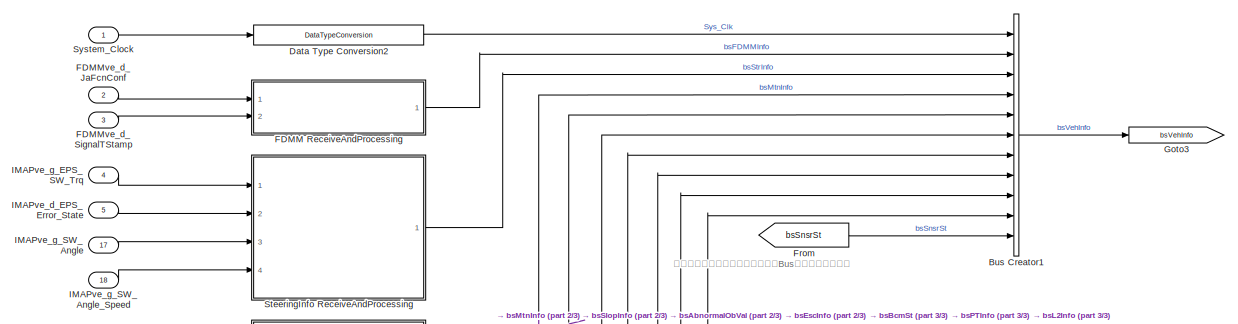
[diagram: JABS/VehBusCreat - part 1/3, full width, top band]
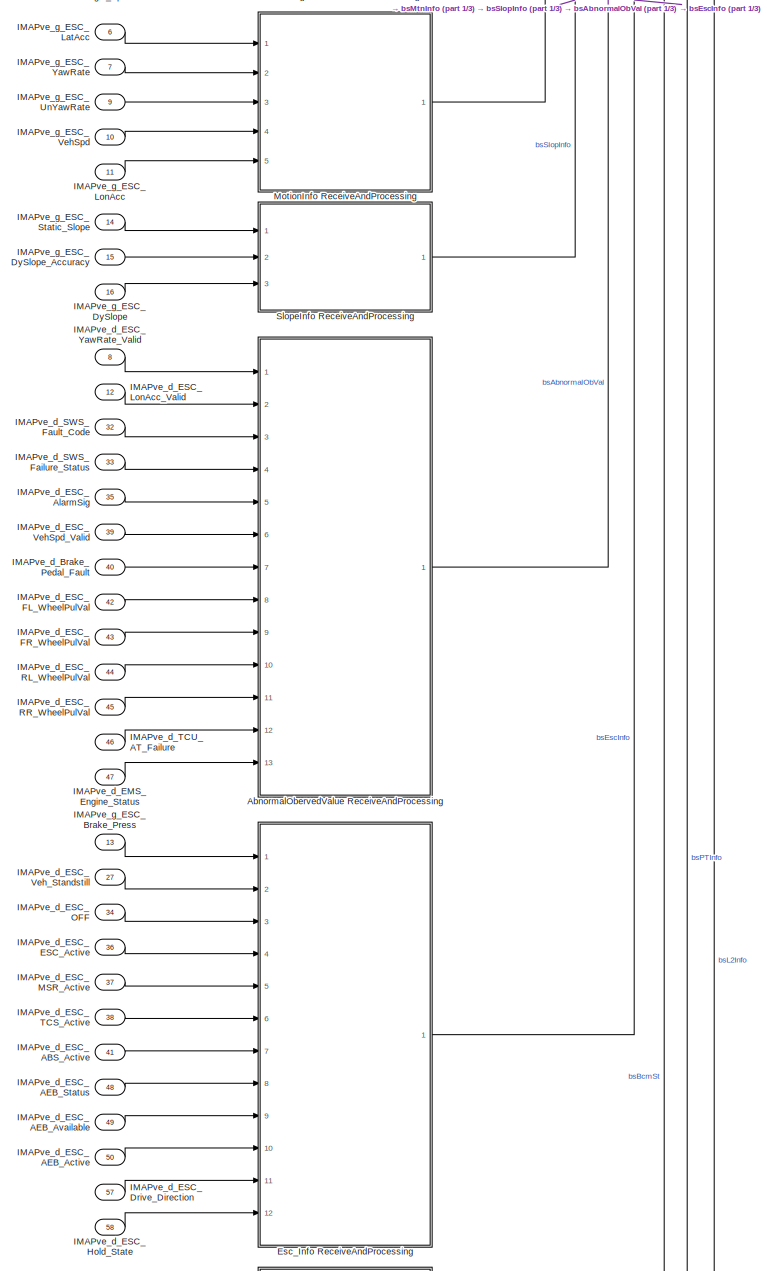
[diagram: JABS/VehBusCreat - part 2/3, middle left region]
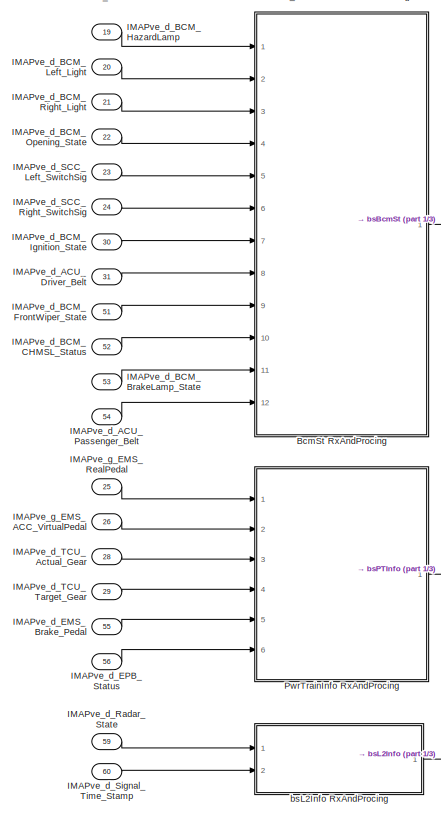
[diagram: JABS/VehBusCreat - part 3/3, bottom left region]
BLOCK [SubSystem] JABS/VehBusCreat
  Ports = [60]
  RequestExecContextInheritance = off
BLOCK [SubSystem] JABS/VehBusCreat/AbnormalObervedValue ReceiveAndProcessing
  Ports = [13, 1]
  RequestExecContextInheritance = off
BLOCK [BusCreator] JABS/VehBusCreat/AbnormalObervedValue ReceiveAndProcessing/Bus Creator
  DisplayOption = bar
  InheritFromInputs = on
  Inputs = 13
  Ports = [13, 1]
BLOCK [DataTypeConversion] JABS/VehBusCreat/AbnormalObervedValue ReceiveAndProcessing/Data Type Conversion
  OutDataTypeStr = uint16
  RndMeth = Floor
  SaturateOnIntegerOverflow = off
BLOCK [DataTypeConversion] JABS/VehBusCreat/AbnormalObervedValue ReceiveAndProcessing/Data Type Conversion1
  OutDataTypeStr = uint16
  RndMeth = Floor
  SaturateOnIntegerOverflow = off
BLOCK [DataTypeConversion] JABS/VehBusCreat/AbnormalObervedValue ReceiveAndProcessing/Data Type Conversion10
  OutDataTypeStr = uint16
  RndMeth = Floor
  SaturateOnIntegerOverflow = off
BLOCK [DataTypeConversion] JABS/VehBusCreat/AbnormalObervedValue ReceiveAndProcessing/Data Type Conversion11
  OutDataTypeStr = uint16
  RndMeth = Floor
  SaturateOnIntegerOverflow = off
BLOCK [DataTypeConversion] JABS/VehBusCreat/AbnormalObervedValue ReceiveAndProcessing/Data Type Conversion12
  OutDataTypeStr = uint16
  RndMeth = Floor
  SaturateOnIntegerOverflow = off
BLOCK [DataTypeConversion] JABS/VehBusCreat/AbnormalObervedValue ReceiveAndProcessing/Data Type Conversion2
  OutDataTypeStr = uint16
  RndMeth = Floor
  SaturateOnIntegerOverflow = off
BLOCK [DataTypeConversion] JABS/VehBusCreat/AbnormalObervedValue ReceiveAndProcessing/Data Type Conversion3
  OutDataTypeStr = uint16
  RndMeth = Floor
  SaturateOnIntegerOverflow = off
BLOCK [DataTypeConversion] JABS/VehBusCreat/AbnormalObervedValue ReceiveAndProcessing/Data Type Conversion4
  OutDataTypeStr = uint16
  RndMeth = Floor
  SaturateOnIntegerOverflow = off
BLOCK [DataTypeConversion] JABS/VehBusCreat/AbnormalObervedValue ReceiveAndProcessing/Data Type Conversion5
  OutDataTypeStr = uint16
  RndMeth = Floor
  SaturateOnIntegerOverflow = off
BLOCK [DataTypeConversion] JABS/VehBusCreat/AbnormalObervedValue ReceiveAndProcessing/Data Type Conversion6
  OutDataTypeStr = uint16
  RndMeth = Floor
  SaturateOnIntegerOverflow = off
BLOCK [DataTypeConversion] JABS/VehBusCreat/AbnormalObervedValue ReceiveAndProcessing/Data Type Conversion7
  OutDataTypeStr = uint16
  RndMeth = Floor
  SaturateOnIntegerOverflow = off
BLOCK [DataTypeConversion] JABS/VehBusCreat/AbnormalObervedValue ReceiveAndProcessing/Data Type Conversion8
  OutDataTypeStr = uint16
  RndMeth = Floor
  SaturateOnIntegerOverflow = off
BLOCK [DataTypeConversion] JABS/VehBusCreat/AbnormalObervedValue ReceiveAndProcessing/Data Type Conversion9
  OutDataTypeStr = uint16
  RndMeth = Floor
  SaturateOnIntegerOverflow = off
BLOCK [Inport] JABS/VehBusCreat/AbnormalObervedValue ReceiveAndProcessing/IMAPve_d_Brake_Pedal_Fault
  IconDisplay = Port number
  Port = 7
BLOCK [Inport] JABS/VehBusCreat/AbnormalObervedValue ReceiveAndProcessing/IMAPve_d_EMS_Engine_Status
  IconDisplay = Port number
  Port = 13
BLOCK [Inport] JABS/VehBusCreat/AbnormalObervedValue ReceiveAndProcessing/IMAPve_d_ESC_AlarmSig
  IconDisplay = Port number
  Port = 5
BLOCK [Inport] JABS/VehBusCreat/AbnormalObervedValue ReceiveAndProcessing/IMAPve_d_ESC_FL_WheelPulVal
  IconDisplay = Port number
  Port = 8
BLOCK [Inport] JABS/VehBusCreat/AbnormalObervedValue ReceiveAndProcessing/IMAPve_d_ESC_FR_WheelPulVal
  IconDisplay = Port number
  Port = 9
BLOCK [Inport] JABS/VehBusCreat/AbnormalObervedValue ReceiveAndProcessing/IMAPve_d_ESC_LonAcc_Valid
  IconDisplay = Port number
  Port = 2
BLOCK [Inport] JABS/VehBusCreat/AbnormalObervedValue ReceiveAndProcessing/IMAPve_d_ESC_RL_WheelPulVal
  IconDisplay = Port number
  Port = 10
BLOCK [Inport] JABS/VehBusCreat/AbnormalObervedValue ReceiveAndProcessing/IMAPve_d_ESC_RR_WheelPulVal
  IconDisplay = Port number
  Port = 11
BLOCK [Inport] JABS/VehBusCreat/AbnormalObervedValue ReceiveAndProcessing/IMAPve_d_ESC_VehSpd_Valid
  IconDisplay = Port number
  Port = 6
BLOCK [Inport] JABS/VehBusCreat/AbnormalObervedValue ReceiveAndProcessing/IMAPve_d_ESC_YawRate_Valid
  IconDisplay = Port number
BLOCK [Inport] JABS/VehBusCreat/AbnormalObervedValue ReceiveAndProcessing/IMAPve_d_SWS_Failure_Status
  IconDisplay = Port number
  Port = 4
BLOCK [Inport] JABS/VehBusCreat/AbnormalObervedValue ReceiveAndProcessing/IMAPve_d_SWS_Fault_Code
  IconDisplay = Port number
  Port = 3
BLOCK [Inport] JABS/VehBusCreat/AbnormalObervedValue ReceiveAndProcessing/IMAPve_d_TCU_AT_Failure
  IconDisplay = Port number
  Port = 12
BLOCK [Outport] JABS/VehBusCreat/AbnormalObervedValue ReceiveAndProcessing/bsAbnormalObVal
  IconDisplay = Port number
BLOCK [SubSystem] JABS/VehBusCreat/BcmSt RxAndProcing
  Ports = [12, 1]
  RequestExecContextInheritance = off
BLOCK [BusCreator] JABS/VehBusCreat/BcmSt RxAndProcing/Bus Creator12
  DisplayOption = bar
  InheritFromInputs = on
  Inputs = 12
  Ports = [12, 1]
BLOCK [DataTypeConversion] JABS/VehBusCreat/BcmSt RxAndProcing/Data Type Conversion10
  OutDataTypeStr = uint16
  RndMeth = Floor
  SaturateOnIntegerOverflow = off
BLOCK [DataTypeConversion] JABS/VehBusCreat/BcmSt RxAndProcing/Data Type Conversion11
  OutDataTypeStr = uint16
  RndMeth = Floor
  SaturateOnIntegerOverflow = off
BLOCK [DataTypeConversion] JABS/VehBusCreat/BcmSt RxAndProcing/Data Type Conversion12
  OutDataTypeStr = uint16
  RndMeth = Floor
  SaturateOnIntegerOverflow = off
BLOCK [DataTypeConversion] JABS/VehBusCreat/BcmSt RxAndProcing/Data Type Conversion13
  OutDataTypeStr = uint16
  RndMeth = Floor
  SaturateOnIntegerOverflow = off
BLOCK [DataTypeConversion] JABS/VehBusCreat/BcmSt RxAndProcing/Data Type Conversion14
  OutDataTypeStr = uint16
  RndMeth = Floor
  SaturateOnIntegerOverflow = off
BLOCK [DataTypeConversion] JABS/VehBusCreat/BcmSt RxAndProcing/Data Type Conversion15
  OutDataTypeStr = uint16
  RndMeth = Floor
  SaturateOnIntegerOverflow = off
BLOCK [DataTypeConversion] JABS/VehBusCreat/BcmSt RxAndProcing/Data Type Conversion3
  OutDataTypeStr = uint16
  RndMeth = Floor
  SaturateOnIntegerOverflow = off
BLOCK [DataTypeConversion] JABS/VehBusCreat/BcmSt RxAndProcing/Data Type Conversion4
  OutDataTypeStr = uint16
  RndMeth = Floor
  SaturateOnIntegerOverflow = off
BLOCK [DataTypeConversion] JABS/VehBusCreat/BcmSt RxAndProcing/Data Type Conversion5
  OutDataTypeStr = uint16
  RndMeth = Floor
  SaturateOnIntegerOverflow = off
BLOCK [DataTypeConversion] JABS/VehBusCreat/BcmSt RxAndProcing/Data Type Conversion7
  OutDataTypeStr = uint16
  RndMeth = Floor
  SaturateOnIntegerOverflow = off
BLOCK [DataTypeConversion] JABS/VehBusCreat/BcmSt RxAndProcing/Data Type Conversion8
  OutDataTypeStr = uint16
  RndMeth = Floor
  SaturateOnIntegerOverflow = off
BLOCK [DataTypeConversion] JABS/VehBusCreat/BcmSt RxAndProcing/Data Type Conversion9
  OutDataTypeStr = uint16
  RndMeth = Floor
  SaturateOnIntegerOverflow = off
BLOCK [Inport] JABS/VehBusCreat/BcmSt RxAndProcing/IMAPve_d_ACU_Driver_Belt
  IconDisplay = Port number
  Port = 8
BLOCK [Inport] JABS/VehBusCreat/BcmSt RxAndProcing/IMAPve_d_ACU_Passenger_Belt
  IconDisplay = Port number
  Port = 12
BLOCK [Inport] JABS/VehBusCreat/BcmSt RxAndProcing/IMAPve_d_BCM_BrakeLamp_State
  IconDisplay = Port number
  Port = 11
BLOCK [Inport] JABS/VehBusCreat/BcmSt RxAndProcing/IMAPve_d_BCM_CHMSL_Status
  IconDisplay = Port number
  Port = 10
BLOCK [Inport] JABS/VehBusCreat/BcmSt RxAndProcing/IMAPve_d_BCM_FrontWiper_State
  IconDisplay = Port number
  Port = 9
BLOCK [Inport] JABS/VehBusCreat/BcmSt RxAndProcing/IMAPve_d_BCM_HazardLamp
  IconDisplay = Port number
BLOCK [Inport] JABS/VehBusCreat/BcmSt RxAndProcing/IMAPve_d_BCM_Ignition_State
  IconDisplay = Port number
  Port = 7
BLOCK [Inport] JABS/VehBusCreat/BcmSt RxAndProcing/IMAPve_d_BCM_Left_Light
  IconDisplay = Port number
  Port = 2
BLOCK [Inport] JABS/VehBusCreat/BcmSt RxAndProcing/IMAPve_d_BCM_Opening_State
  IconDisplay = Port number
  Port = 4
BLOCK [Inport] JABS/VehBusCreat/BcmSt RxAndProcing/IMAPve_d_BCM_Right_Light
  IconDisplay = Port number
  Port = 3
BLOCK [Inport] JABS/VehBusCreat/BcmSt RxAndProcing/IMAPve_d_SCC_Left_SwitchSig
  IconDisplay = Port number
  Port = 5
BLOCK [Inport] JABS/VehBusCreat/BcmSt RxAndProcing/IMAPve_d_SCC_Right_SwitchSig
  IconDisplay = Port number
  Port = 6
BLOCK [Outport] JABS/VehBusCreat/BcmSt RxAndProcing/bsBcmState
  IconDisplay = Port number
BLOCK [BusCreator] JABS/VehBusCreat/Bus Creator1
  DisplayOption = bar
  InheritFromInputs = on
  Inputs = 11
  Ports = [11, 1]
BLOCK [DataTypeConversion] JABS/VehBusCreat/Data Type Conversion2
  OutDataTypeStr = uint16
  RndMeth = Floor
  SaturateOnIntegerOverflow = off
BLOCK [SubSystem] JABS/VehBusCreat/Esc_Info ReceiveAndProcessing
  Ports = [12, 1]
  RequestExecContextInheritance = off
BLOCK [BusCreator] JABS/VehBusCreat/Esc_Info ReceiveAndProcessing/Bus Creator12
  DisplayOption = bar
  InheritFromInputs = on
  Inputs = 12
  Ports = [12, 1]
BLOCK [DataTypeConversion] JABS/VehBusCreat/Esc_Info ReceiveAndProcessing/Data Type Conversion1
  OutDataTypeStr = uint16
  RndMeth = Floor
  SaturateOnIntegerOverflow = off
BLOCK [DataTypeConversion] JABS/VehBusCreat/Esc_Info ReceiveAndProcessing/Data Type Conversion10
  OutDataTypeStr = uint16
  RndMeth = Floor
  SaturateOnIntegerOverflow = off
BLOCK [DataTypeConversion] JABS/VehBusCreat/Esc_Info ReceiveAndProcessing/Data Type Conversion11
  OutDataTypeStr = uint16
  RndMeth = Floor
  SaturateOnIntegerOverflow = off
BLOCK [DataTypeConversion] JABS/VehBusCreat/Esc_Info ReceiveAndProcessing/Data Type Conversion12
  OutDataTypeStr = uint16
  RndMeth = Floor
  SaturateOnIntegerOverflow = off
BLOCK [DataTypeConversion] JABS/VehBusCreat/Esc_Info ReceiveAndProcessing/Data Type Conversion2
  OutDataTypeStr = uint16
  RndMeth = Floor
  SaturateOnIntegerOverflow = off
BLOCK [DataTypeConversion] JABS/VehBusCreat/Esc_Info ReceiveAndProcessing/Data Type Conversion3
  OutDataTypeStr = uint16
  RndMeth = Floor
  SaturateOnIntegerOverflow = off
BLOCK [DataTypeConversion] JABS/VehBusCreat/Esc_Info ReceiveAndProcessing/Data Type Conversion4
  OutDataTypeStr = uint16
  RndMeth = Floor
  SaturateOnIntegerOverflow = off
BLOCK [DataTypeConversion] JABS/VehBusCreat/Esc_Info ReceiveAndProcessing/Data Type Conversion5
  OutDataTypeStr = uint16
  RndMeth = Floor
  SaturateOnIntegerOverflow = off
BLOCK [DataTypeConversion] JABS/VehBusCreat/Esc_Info ReceiveAndProcessing/Data Type Conversion6
  OutDataTypeStr = single
  RndMeth = Floor
  SaturateOnIntegerOverflow = off
BLOCK [DataTypeConversion] JABS/VehBusCreat/Esc_Info ReceiveAndProcessing/Data Type Conversion7
  OutDataTypeStr = uint16
  RndMeth = Floor
  SaturateOnIntegerOverflow = off
BLOCK [DataTypeConversion] JABS/VehBusCreat/Esc_Info ReceiveAndProcessing/Data Type Conversion8
  OutDataTypeStr = uint16
  RndMeth = Floor
  SaturateOnIntegerOverflow = off
BLOCK [DataTypeConversion] JABS/VehBusCreat/Esc_Info ReceiveAndProcessing/Data Type Conversion9
  OutDataTypeStr = uint16
  RndMeth = Floor
  SaturateOnIntegerOverflow = off
BLOCK [Inport] JABS/VehBusCreat/Esc_Info ReceiveAndProcessing/IMAPve_d_ESC_ABS_Active
  IconDisplay = Port number
  Port = 7
BLOCK [Inport] JABS/VehBusCreat/Esc_Info ReceiveAndProcessing/IMAPve_d_ESC_AEB_Active
  IconDisplay = Port number
  Port = 10
BLOCK [Inport] JABS/VehBusCreat/Esc_Info ReceiveAndProcessing/IMAPve_d_ESC_AEB_Available
  IconDisplay = Port number
  Port = 9
BLOCK [Inport] JABS/VehBusCreat/Esc_Info ReceiveAndProcessing/IMAPve_d_ESC_AEB_Status
  IconDisplay = Port number
  Port = 8
BLOCK [Inport] JABS/VehBusCreat/Esc_Info ReceiveAndProcessing/IMAPve_d_ESC_Drive_Direction
  IconDisplay = Port number
  Port = 11
BLOCK [Inport] JABS/VehBusCreat/Esc_Info ReceiveAndProcessing/IMAPve_d_ESC_ESC_Active
  IconDisplay = Port number
  Port = 4
BLOCK [Inport] JABS/VehBusCreat/Esc_Info ReceiveAndProcessing/IMAPve_d_ESC_Hold_State
  IconDisplay = Port number
  Port = 12
BLOCK [Inport] JABS/VehBusCreat/Esc_Info ReceiveAndProcessing/IMAPve_d_ESC_MSR_Active
  IconDisplay = Port number
  Port = 5
BLOCK [Inport] JABS/VehBusCreat/Esc_Info ReceiveAndProcessing/IMAPve_d_ESC_OFF
  IconDisplay = Port number
  Port = 3
BLOCK [Inport] JABS/VehBusCreat/Esc_Info ReceiveAndProcessing/IMAPve_d_ESC_TCS_Active
  IconDisplay = Port number
  Port = 6
BLOCK [Inport] JABS/VehBusCreat/Esc_Info ReceiveAndProcessing/IMAPve_d_ESC_Veh_Standstill
  IconDisplay = Port number
  Port = 2
BLOCK [Inport] JABS/VehBusCreat/Esc_Info ReceiveAndProcessing/IMAPve_g_ESC_Brake_Press
  IconDisplay = Port number
BLOCK [Outport] JABS/VehBusCreat/Esc_Info ReceiveAndProcessing/bsEscInfo
  IconDisplay = Port number
BLOCK [SubSystem] JABS/VehBusCreat/FDMM ReceiveAndProcessing
  Ports = [2, 1]
  RequestExecContextInheritance = off
BLOCK [BusCreator] JABS/VehBusCreat/FDMM ReceiveAndProcessing/Bus Creator12
  DisplayOption = bar
  InheritFromInputs = on
  Inputs = 2
  Ports = [2, 1]
BLOCK [DataTypeConversion] JABS/VehBusCreat/FDMM ReceiveAndProcessing/Data Type Conversion2
  OutDataTypeStr = uint16
  RndMeth = Floor
  SaturateOnIntegerOverflow = off
BLOCK [DataTypeConversion] JABS/VehBusCreat/FDMM ReceiveAndProcessing/Data Type Conversion6
  OutDataTypeStr = uint16
  RndMeth = Floor
  SaturateOnIntegerOverflow = off
BLOCK [Inport] JABS/VehBusCreat/FDMM ReceiveAndProcessing/FDMMve_d_JaFcnConf
  IconDisplay = Port number
BLOCK [Inport] JABS/VehBusCreat/FDMM ReceiveAndProcessing/FDMMve_d_SignalTStamp
  IconDisplay = Port number
  Port = 2
BLOCK [Outport] JABS/VehBusCreat/FDMM ReceiveAndProcessing/bsFDMMInfo
  IconDisplay = Port number
BLOCK [Inport] JABS/VehBusCreat/FDMMve_d_JaFcnConf
  IconDisplay = Port number
  Port = 2
BLOCK [Inport] JABS/VehBusCreat/FDMMve_d_SignalTStamp
  IconDisplay = Port number
  Port = 3
BLOCK [From] JABS/VehBusCreat/From
  GotoTag = bsSnsrSt
  TagVisibility = global
BLOCK [Goto] JABS/VehBusCreat/Goto3
  GotoTag = bsVehInfo
  TagVisibility = global
BLOCK [Inport] JABS/VehBusCreat/IMAPve_d_ACU_Driver_Belt
  IconDisplay = Port number
  Port = 31
BLOCK [Inport] JABS/VehBusCreat/IMAPve_d_ACU_Passenger_Belt
  IconDisplay = Port number
  Port = 54
BLOCK [Inport] JABS/VehBusCreat/IMAPve_d_BCM_BrakeLamp_State
  IconDisplay = Port number
  Port = 53
BLOCK [Inport] JABS/VehBusCreat/IMAPve_d_BCM_CHMSL_Status
  IconDisplay = Port number
  Port = 52
BLOCK [Inport] JABS/VehBusCreat/IMAPve_d_BCM_FrontWiper_State
  IconDisplay = Port number
  Port = 51
BLOCK [Inport] JABS/VehBusCreat/IMAPve_d_BCM_HazardLamp
  IconDisplay = Port number
  Port = 19
BLOCK [Inport] JABS/VehBusCreat/IMAPve_d_BCM_Ignition_State
  IconDisplay = Port number
  Port = 30
BLOCK [Inport] JABS/VehBusCreat/IMAPve_d_BCM_Left_Light
  IconDisplay = Port number
  Port = 20
BLOCK [Inport] JABS/VehBusCreat/IMAPve_d_BCM_Opening_State
  IconDisplay = Port number
  Port = 22
BLOCK [Inport] JABS/VehBusCreat/IMAPve_d_BCM_Right_Light
  IconDisplay = Port number
  Port = 21
BLOCK [Inport] JABS/VehBusCreat/IMAPve_d_Brake_Pedal_Fault
  IconDisplay = Port number
  Port = 40
BLOCK [Inport] JABS/VehBusCreat/IMAPve_d_EMS_Brake_Pedal
  IconDisplay = Port number
  Port = 55
BLOCK [Inport] JABS/VehBusCreat/IMAPve_d_EMS_Engine_Status
  IconDisplay = Port number
  Port = 47
BLOCK [Inport] JABS/VehBusCreat/IMAPve_d_EPB_Status
  IconDisplay = Port number
  Port = 56
BLOCK [Inport] JABS/VehBusCreat/IMAPve_d_EPS_Error_State
  IconDisplay = Port number
  Port = 5
BLOCK [Inport] JABS/VehBusCreat/IMAPve_d_ESC_ABS_Active
  IconDisplay = Port number
  Port = 41
BLOCK [Inport] JABS/VehBusCreat/IMAPve_d_ESC_AEB_Active
  IconDisplay = Port number
  Port = 50
BLOCK [Inport] JABS/VehBusCreat/IMAPve_d_ESC_AEB_Available
  IconDisplay = Port number
  Port = 49
BLOCK [Inport] JABS/VehBusCreat/IMAPve_d_ESC_AEB_Status
  IconDisplay = Port number
  Port = 48
BLOCK [Inport] JABS/VehBusCreat/IMAPve_d_ESC_AlarmSig
  IconDisplay = Port number
  Port = 35
BLOCK [Inport] JABS/VehBusCreat/IMAPve_d_ESC_Drive_Direction
  IconDisplay = Port number
  Port = 57
BLOCK [Inport] JABS/VehBusCreat/IMAPve_d_ESC_ESC_Active
  IconDisplay = Port number
  Port = 36
BLOCK [Inport] JABS/VehBusCreat/IMAPve_d_ESC_FL_WheelPulVal
  IconDisplay = Port number
  Port = 42
BLOCK [Inport] JABS/VehBusCreat/IMAPve_d_ESC_FR_WheelPulVal
  IconDisplay = Port number
  Port = 43
BLOCK [Inport] JABS/VehBusCreat/IMAPve_d_ESC_Hold_State
  IconDisplay = Port number
  Port = 58
BLOCK [Inport] JABS/VehBusCreat/IMAPve_d_ESC_LonAcc_Valid
  IconDisplay = Port number
  Port = 12
BLOCK [Inport] JABS/VehBusCreat/IMAPve_d_ESC_MSR_Active
  IconDisplay = Port number
  Port = 37
BLOCK [Inport] JABS/VehBusCreat/IMAPve_d_ESC_OFF
  IconDisplay = Port number
  Port = 34
BLOCK [Inport] JABS/VehBusCreat/IMAPve_d_ESC_RL_WheelPulVal
  IconDisplay = Port number
  Port = 44
BLOCK [Inport] JABS/VehBusCreat/IMAPve_d_ESC_RR_WheelPulVal
  IconDisplay = Port number
  Port = 45
BLOCK [Inport] JABS/VehBusCreat/IMAPve_d_ESC_TCS_Active
  IconDisplay = Port number
  Port = 38
BLOCK [Inport] JABS/VehBusCreat/IMAPve_d_ESC_VehSpd_Valid
  IconDisplay = Port number
  Port = 39
BLOCK [Inport] JABS/VehBusCreat/IMAPve_d_ESC_Veh_Standstill
  IconDisplay = Port number
  Port = 27
BLOCK [Inport] JABS/VehBusCreat/IMAPve_d_ESC_YawRate_Valid
  IconDisplay = Port number
  Port = 8
BLOCK [Inport] JABS/VehBusCreat/IMAPve_d_Radar_State
  IconDisplay = Port number
  Port = 59
BLOCK [Inport] JABS/VehBusCreat/IMAPve_d_SCC_Left_SwitchSig
  IconDisplay = Port number
  Port = 23
BLOCK [Inport] JABS/VehBusCreat/IMAPve_d_SCC_Right_SwitchSig
  IconDisplay = Port number
  Port = 24
BLOCK [Inport] JABS/VehBusCreat/IMAPve_d_SWS_Failure_Status
  IconDisplay = Port number
  Port = 33
BLOCK [Inport] JABS/VehBusCreat/IMAPve_d_SWS_Fault_Code
  IconDisplay = Port number
  Port = 32
BLOCK [Inport] JABS/VehBusCreat/IMAPve_d_Signal_Time_Stamp
  IconDisplay = Port number
  Port = 60
BLOCK [Inport] JABS/VehBusCreat/IMAPve_d_TCU_AT_Failure
  IconDisplay = Port number
  Port = 46
BLOCK [Inport] JABS/VehBusCreat/IMAPve_d_TCU_Actual_Gear
  IconDisplay = Port number
  Port = 28
BLOCK [Inport] JABS/VehBusCreat/IMAPve_d_TCU_Target_Gear
  IconDisplay = Port number
  Port = 29
BLOCK [Inport] JABS/VehBusCreat/IMAPve_g_EMS_ACC_VirtualPedal
  IconDisplay = Port number
  Port = 26
BLOCK [Inport] JABS/VehBusCreat/IMAPve_g_EMS_RealPedal
  IconDisplay = Port number
  Port = 25
BLOCK [Inport] JABS/VehBusCreat/IMAPve_g_EPS_SW_Trq
  IconDisplay = Port number
  Port = 4
BLOCK [Inport] JABS/VehBusCreat/IMAPve_g_ESC_Brake_Press
  IconDisplay = Port number
  Port = 13
BLOCK [Inport] JABS/VehBusCreat/IMAPve_g_ESC_DySlope
  IconDisplay = Port number
  Port = 16
BLOCK [Inport] JABS/VehBusCreat/IMAPve_g_ESC_DySlope_Accuracy
  IconDisplay = Port number
  Port = 15
BLOCK [Inport] JABS/VehBusCreat/IMAPve_g_ESC_LatAcc
  IconDisplay = Port number
  Port = 6
BLOCK [Inport] JABS/VehBusCreat/IMAPve_g_ESC_LonAcc
  IconDisplay = Port number
  Port = 11
BLOCK [Inport] JABS/VehBusCreat/IMAPve_g_ESC_Static_Slope
  IconDisplay = Port number
  Port = 14
BLOCK [Inport] JABS/VehBusCreat/IMAPve_g_ESC_UnYawRate
  IconDisplay = Port number
  Port = 9
BLOCK [Inport] JABS/VehBusCreat/IMAPve_g_ESC_VehSpd
  IconDisplay = Port number
  Port = 10
BLOCK [Inport] JABS/VehBusCreat/IMAPve_g_ESC_YawRate
  IconDisplay = Port number
  Port = 7
BLOCK [Inport] JABS/VehBusCreat/IMAPve_g_SW_Angle
  IconDisplay = Port number
  Port = 17
BLOCK [Inport] JABS/VehBusCreat/IMAPve_g_SW_Angle_Speed
  IconDisplay = Port number
  Port = 18
BLOCK [SubSystem] JABS/VehBusCreat/MotionInfo ReceiveAndProcessing
  Ports = [5, 1]
  RequestExecContextInheritance = off
BLOCK [BusCreator] JABS/VehBusCreat/MotionInfo ReceiveAndProcessing/Bus Creator12
  DisplayOption = bar
  InheritFromInputs = on
  Inputs = 5
  Ports = [5, 1]
BLOCK [DataTypeConversion] JABS/VehBusCreat/MotionInfo ReceiveAndProcessing/Data Type Conversion1
  OutDataTypeStr = single
  RndMeth = Floor
  SaturateOnIntegerOverflow = off
BLOCK [DataTypeConversion] JABS/VehBusCreat/MotionInfo ReceiveAndProcessing/Data Type Conversion2
  OutDataTypeStr = single
  RndMeth = Floor
  SaturateOnIntegerOverflow = off
BLOCK [DataTypeConversion] JABS/VehBusCreat/MotionInfo ReceiveAndProcessing/Data Type Conversion3
  OutDataTypeStr = single
  RndMeth = Floor
  SaturateOnIntegerOverflow = off
BLOCK [DataTypeConversion] JABS/VehBusCreat/MotionInfo ReceiveAndProcessing/Data Type Conversion4
  OutDataTypeStr = single
  RndMeth = Floor
  SaturateOnIntegerOverflow = off
BLOCK [DataTypeConversion] JABS/VehBusCreat/MotionInfo ReceiveAndProcessing/Data Type Conversion5
  OutDataTypeStr = single
  RndMeth = Floor
  SaturateOnIntegerOverflow = off
BLOCK [Inport] JABS/VehBusCreat/MotionInfo ReceiveAndProcessing/IMAPve_g_ESC_LatAcc
  IconDisplay = Port number
BLOCK [Inport] JABS/VehBusCreat/MotionInfo ReceiveAndProcessing/IMAPve_g_ESC_LonAcc
  IconDisplay = Port number
  Port = 5
BLOCK [Inport] JABS/VehBusCreat/MotionInfo ReceiveAndProcessing/IMAPve_g_ESC_UnYawRate
  IconDisplay = Port number
  Port = 3
BLOCK [Inport] JABS/VehBusCreat/MotionInfo ReceiveAndProcessing/IMAPve_g_ESC_VehSpd
  IconDisplay = Port number
  Port = 4
BLOCK [Inport] JABS/VehBusCreat/MotionInfo ReceiveAndProcessing/IMAPve_g_ESC_YawRate
  IconDisplay = Port number
  Port = 2
BLOCK [Outport] JABS/VehBusCreat/MotionInfo ReceiveAndProcessing/bsMtnInfo
  IconDisplay = Port number
BLOCK [SubSystem] JABS/VehBusCreat/PwrTrainInfo RxAndProcing
  Ports = [6, 1]
  RequestExecContextInheritance = off
BLOCK [BusCreator] JABS/VehBusCreat/PwrTrainInfo RxAndProcing/Bus Creator12
  DisplayOption = bar
  InheritFromInputs = on
  Inputs = 6
  Ports = [6, 1]
BLOCK [DataTypeConversion] JABS/VehBusCreat/PwrTrainInfo RxAndProcing/Data Type Conversion1
  OutDataTypeStr = single
  RndMeth = Floor
  SaturateOnIntegerOverflow = off
BLOCK [DataTypeConversion] JABS/VehBusCreat/PwrTrainInfo RxAndProcing/Data Type Conversion2
  OutDataTypeStr = single
  RndMeth = Floor
  SaturateOnIntegerOverflow = off
BLOCK [DataTypeConversion] JABS/VehBusCreat/PwrTrainInfo RxAndProcing/Data Type Conversion3
  OutDataTypeStr = uint16
  RndMeth = Floor
  SaturateOnIntegerOverflow = off
BLOCK [DataTypeConversion] JABS/VehBusCreat/PwrTrainInfo RxAndProcing/Data Type Conversion4
  OutDataTypeStr = uint16
  RndMeth = Floor
  SaturateOnIntegerOverflow = off
BLOCK [DataTypeConversion] JABS/VehBusCreat/PwrTrainInfo RxAndProcing/Data Type Conversion5
  OutDataTypeStr = uint16
  RndMeth = Floor
  SaturateOnIntegerOverflow = off
BLOCK [DataTypeConversion] JABS/VehBusCreat/PwrTrainInfo RxAndProcing/Data Type Conversion6
  OutDataTypeStr = uint16
  RndMeth = Floor
  SaturateOnIntegerOverflow = off
BLOCK [Inport] JABS/VehBusCreat/PwrTrainInfo RxAndProcing/IMAPve_d_EMS_Brake_Pedal
  IconDisplay = Port number
  Port = 5
BLOCK [Inport] JABS/VehBusCreat/PwrTrainInfo RxAndProcing/IMAPve_d_EPB_Status
  IconDisplay = Port number
  Port = 6
BLOCK [Inport] JABS/VehBusCreat/PwrTrainInfo RxAndProcing/IMAPve_d_TCU_Actual_Gear
  IconDisplay = Port number
  Port = 3
BLOCK [Inport] JABS/VehBusCreat/PwrTrainInfo RxAndProcing/IMAPve_d_TCU_Target_Gear
  IconDisplay = Port number
  Port = 4
BLOCK [Inport] JABS/VehBusCreat/PwrTrainInfo RxAndProcing/IMAPve_g_EMS_ACC_VirtualPedal
  IconDisplay = Port number
  Port = 2
BLOCK [Inport] JABS/VehBusCreat/PwrTrainInfo RxAndProcing/IMAPve_g_EMS_RealPedal
  IconDisplay = Port number
BLOCK [Outport] JABS/VehBusCreat/PwrTrainInfo RxAndProcing/bsPTInfo
  IconDisplay = Port number
BLOCK [SubSystem] JABS/VehBusCreat/SlopeInfo ReceiveAndProcessing
  Ports = [3, 1]
  RequestExecContextInheritance = off
BLOCK [BusCreator] JABS/VehBusCreat/SlopeInfo ReceiveAndProcessing/Bus Creator12
  DisplayOption = bar
  InheritFromInputs = on
  Inputs = 3
  Ports = [3, 1]
BLOCK [DataTypeConversion] JABS/VehBusCreat/SlopeInfo ReceiveAndProcessing/Data Type Conversion1
  OutDataTypeStr = single
  RndMeth = Floor
  SaturateOnIntegerOverflow = off
BLOCK [DataTypeConversion] JABS/VehBusCreat/SlopeInfo ReceiveAndProcessing/Data Type Conversion2
  OutDataTypeStr = single
  RndMeth = Floor
  SaturateOnIntegerOverflow = off
BLOCK [DataTypeConversion] JABS/VehBusCreat/SlopeInfo ReceiveAndProcessing/Data Type Conversion6
  OutDataTypeStr = single
  RndMeth = Floor
  SaturateOnIntegerOverflow = off
BLOCK [Inport] JABS/VehBusCreat/SlopeInfo ReceiveAndProcessing/IMAPve_g_ESC_DySlope
  IconDisplay = Port number
  Port = 3
BLOCK [Inport] JABS/VehBusCreat/SlopeInfo ReceiveAndProcessing/IMAPve_g_ESC_DySlope_Accuracy
  IconDisplay = Port number
  Port = 2
BLOCK [Inport] JABS/VehBusCreat/SlopeInfo ReceiveAndProcessing/IMAPve_g_ESC_Static_Slope
  IconDisplay = Port number
BLOCK [Outport] JABS/VehBusCreat/SlopeInfo ReceiveAndProcessing/bsSlopInfo
  AttributesFormatString = Disable Action: %<OutputWhenDisabled>
  IconDisplay = Port number
BLOCK [SubSystem] JABS/VehBusCreat/SteeringInfo ReceiveAndProcessing
  Ports = [4, 1]
  RequestExecContextInheritance = off
BLOCK [BusCreator] JABS/VehBusCreat/SteeringInfo ReceiveAndProcessing/Bus Creator12
  DisplayOption = bar
  InheritFromInputs = on
  Inputs = 4
  Ports = [4, 1]
BLOCK [DataTypeConversion] JABS/VehBusCreat/SteeringInfo ReceiveAndProcessing/Data Type Conversion1
  OutDataTypeStr = uint16
  RndMeth = Floor
  SaturateOnIntegerOverflow = off
BLOCK [DataTypeConversion] JABS/VehBusCreat/SteeringInfo ReceiveAndProcessing/Data Type Conversion2
  OutDataTypeStr = single
  RndMeth = Floor
  SaturateOnIntegerOverflow = off
BLOCK [DataTypeConversion] JABS/VehBusCreat/SteeringInfo ReceiveAndProcessing/Data Type Conversion3
  OutDataTypeStr = single
  RndMeth = Floor
  SaturateOnIntegerOverflow = off
BLOCK [DataTypeConversion] JABS/VehBusCreat/SteeringInfo ReceiveAndProcessing/Data Type Conversion5
  OutDataTypeStr = single
  RndMeth = Floor
  SaturateOnIntegerOverflow = off
BLOCK [Inport] JABS/VehBusCreat/SteeringInfo ReceiveAndProcessing/IMAPve_d_EPS_Error_State
  IconDisplay = Port number
  Port = 2
BLOCK [Inport] JABS/VehBusCreat/SteeringInfo ReceiveAndProcessing/IMAPve_g_EPS_SW_Trq
  IconDisplay = Port number
BLOCK [Inport] JABS/VehBusCreat/SteeringInfo ReceiveAndProcessing/IMAPve_g_SW_Angle
  IconDisplay = Port number
  Port = 3
BLOCK [Inport] JABS/VehBusCreat/SteeringInfo ReceiveAndProcessing/IMAPve_g_SW_Angle_Speed
  IconDisplay = Port number
  Port = 4
BLOCK [Outport] JABS/VehBusCreat/SteeringInfo ReceiveAndProcessing/bsStrInfo
  IconDisplay = Port number
BLOCK [Inport] JABS/VehBusCreat/System_Clock
  IconDisplay = Port number
BLOCK [SubSystem] JABS/VehBusCreat/bsL2Info RxAndProcing
  Ports = [2, 1]
  RequestExecContextInheritance = off
BLOCK [BusCreator] JABS/VehBusCreat/bsL2Info RxAndProcing/Bus Creator
  DisplayOption = bar
  InheritFromInputs = on
  Inputs = 2
  Ports = [2, 1]
BLOCK [DataTypeConversion] JABS/VehBusCreat/bsL2Info RxAndProcing/Data Type Conversion1
  OutDataTypeStr = uint32
  RndMeth = Floor
  SaturateOnIntegerOverflow = off
BLOCK [DataTypeConversion] JABS/VehBusCreat/bsL2Info RxAndProcing/Data Type Conversion6
  OutDataTypeStr = uint16
  RndMeth = Floor
  SaturateOnIntegerOverflow = off
BLOCK [Inport] JABS/VehBusCreat/bsL2Info RxAndProcing/IMAPve_d_Radar_State
  IconDisplay = Port number
BLOCK [Inport] JABS/VehBusCreat/bsL2Info RxAndProcing/IMAPve_d_Signal_Time_Stamp
  IconDisplay = Port number
  Port = 2
BLOCK [Outport] JABS/VehBusCreat/bsL2Info RxAndProcing/bsL2Info
  IconDisplay = Port number
BLOCK [TriggerPort] JABS/function
  Ports = []
  SampleTime = -1
  SampleTimeType = periodic
  StatesWhenEnabling = held
  TriggerType = function-call
  VariantControl = Variant
BLOCK [Outport] JABSve_d_AlertReq
  IconDisplay = Port number
  OutDataTypeStr = UInt16
  Port = 6
BLOCK [Outport] JABSve_d_AlertSign
  IconDisplay = Port number
  OutDataTypeStr = UInt16
  Port = 3
BLOCK [Outport] JABSve_d_DbAlertReq
  IconDisplay = Port number
  OutDataTypeStr = UInt16
  Port = 19
BLOCK [Outport] JABSve_d_DbAlertSign
  IconDisplay = Port number
  OutDataTypeStr = UInt16
  Port = 16
BLOCK [Outport] JABSve_d_DbDecSetpoint
  IconDisplay = Port number
  OutDataTypeStr = T_M_Nm_Float32
  Port = 11
BLOCK [Outport] JABSve_d_DbFltStatus
  IconDisplay = Port number
  OutDataTypeStr = UInt16
  Port = 18
BLOCK [Outport] JABSve_d_DbFunFARCSta
  IconDisplay = Port number
  OutDataTypeStr = UInt16
  Port = 10
BLOCK [Outport] JABSve_d_DbHapticAlarm
  IconDisplay = Port number
  OutDataTypeStr = UInt16
  Port = 14
BLOCK [Outport] JABSve_d_DbMDDdecRequest
  IconDisplay = Port number
  OutDataTypeStr = UInt16
  Port = 12
BLOCK [Outport] JABSve_d_DbMDDdecType
  IconDisplay = Port number
  OutDataTypeStr = UInt16
  Port = 13
BLOCK [Outport] JABSve_d_DbPrefillReq
  IconDisplay = Port number
  OutDataTypeStr = UInt16
  Port = 9
BLOCK [Outport] JABSve_d_DbSignalTStamp
  IconDisplay = Port number
  OutDataTypeStr = UInt16
  Port = 15
BLOCK [Outport] JABSve_d_DbSwitchStatus
  IconDisplay = Port number
  OutDataTypeStr = UInt16
  Port = 17
BLOCK [Outport] JABSve_d_DbTips
  IconDisplay = Port number
  OutDataTypeStr = UInt16
  Port = 20
BLOCK [Outport] JABSve_d_DecelReq
  IconDisplay = Port number
  OutDataTypeStr = T_M_Nm_Float32
  Port = 2
BLOCK [Outport] JABSve_d_FltStatus
  IconDisplay = Port number
  OutDataTypeStr = UInt16
  Port = 5
BLOCK [Outport] JABSve_d_HapticAlarm
  IconDisplay = Port number
  OutDataTypeStr = UInt16
  Port = 7
BLOCK [Outport] JABSve_d_SwitchStatus
  IconDisplay = Port number
  OutDataTypeStr = UInt16
  Port = 4
BLOCK [Outport] JABSve_d_Switching
  IconDisplay = Port number
  OutDataTypeStr = UInt16
BLOCK [Outport] JABSve_d_Tips
  IconDisplay = Port number
  OutDataTypeStr = UInt16
  Port = 8
BLOCK [Inport] Runnable_JABS_Step
  IconDisplay = Port number
  OutputFunctionCall = on
  SampleTime = 0.01
BLOCK [Inport] System_Clock
  IconDisplay = Port number
  Port = 2
ANNOTATION JABS: InputMapping
ANNOTATION JABS/FusionBusCreat: 感知类信息Bus
ANNOTATION JABS/VehBusCreat: 传感器的本身工作状态所集成出的Bus，由融合模块给出
LINE FDMMve_d_JaFcnConf:1 -> JABS:2
LINE FDMMve_d_SignalTStamp:1 -> JABS:3
LINE IMAPva_d_obj_AEB:1 -> JABS:94
LINE IMAPva_d_obj_BrakeLight:1 -> JABS:92
LINE IMAPva_d_obj_ESA:1 -> JABS:95
LINE IMAPva_d_obj_JA:1 -> JABS:96
LINE IMAPva_d_obj_MotionStatus:1 -> JABS:93
LINE IMAPva_d_obj_TurnLight:1 -> JABS:91
LINE IMAPva_d_obj_cam_asso_id:1 -> JABS:88
LINE IMAPva_d_obj_class:1 -> JABS:85
LINE IMAPva_d_obj_fusion_type:1 -> JABS:84
LINE IMAPva_d_obj_id:1 -> JABS:69
LINE IMAPva_d_obj_lane:1 -> JABS:86
LINE IMAPva_d_obj_status:1 -> JABS:87
LINE IMAPva_g_obj_acc_x:1 -> JABS:74
LINE IMAPva_g_obj_acc_y:1 -> JABS:75
LINE IMAPva_g_obj_age:1 -> JABS:90
LINE IMAPva_g_obj_con:1 -> JABS:89
LINE IMAPva_g_obj_length:1 -> JABS:83
LINE IMAPva_g_obj_pos_var_x:1 -> JABS:76
LINE IMAPva_g_obj_pos_var_xy:1 -> JABS:78
LINE IMAPva_g_obj_pos_var_y:1 -> JABS:77
LINE IMAPva_g_obj_pos_x:1 -> JABS:70
LINE IMAPva_g_obj_pos_y:1 -> JABS:71
LINE IMAPva_g_obj_vel_var_x:1 -> JABS:79
LINE IMAPva_g_obj_vel_var_xy:1 -> JABS:81
LINE IMAPva_g_obj_vel_var_y:1 -> JABS:80
LINE IMAPva_g_obj_vel_x:1 -> JABS:72
LINE IMAPva_g_obj_vel_y:1 -> JABS:73
LINE IMAPva_g_obj_width:1 -> JABS:82
LINE IMAPve_d_ACU_Driver_Belt:1 -> JABS:31
LINE IMAPve_d_ACU_Passenger_Belt:1 -> JABS:54
LINE IMAPve_d_BCM_BrakeLamp_State:1 -> JABS:53
LINE IMAPve_d_BCM_CHMSL_Status:1 -> JABS:52
LINE IMAPve_d_BCM_FrontWiper_State:1 -> JABS:51
LINE IMAPve_d_BCM_HazardLamp:1 -> JABS:19
LINE IMAPve_d_BCM_Ignition_State:1 -> JABS:30
LINE IMAPve_d_BCM_Left_Light:1 -> JABS:20
LINE IMAPve_d_BCM_Opening_State:1 -> JABS:22
LINE IMAPve_d_BCM_Right_Light:1 -> JABS:21
LINE IMAPve_d_Brake_Pedal_Fault:1 -> JABS:40
LINE IMAPve_d_Camera_Signal_Fault:1 -> JABS:123
LINE IMAPve_d_Camera_Status:1 -> JABS:125
LINE IMAPve_d_ConsArea:1 -> JABS:99
LINE IMAPve_d_EMS_Brake_Pedal:1 -> JABS:55
LINE IMAPve_d_EMS_Engine_Status:1 -> JABS:47
LINE IMAPve_d_EPB_Status:1 -> JABS:56
LINE IMAPve_d_EPS_Error_State:1 -> JABS:5
LINE IMAPve_d_ESC_ABS_Active:1 -> JABS:41
LINE IMAPve_d_ESC_AEB_Active:1 -> JABS:50
LINE IMAPve_d_ESC_AEB_Available:1 -> JABS:49
LINE IMAPve_d_ESC_AEB_Status:1 -> JABS:48
LINE IMAPve_d_ESC_AlarmSig:1 -> JABS:35
LINE IMAPve_d_ESC_Drive_Direction:1 -> JABS:57
LINE IMAPve_d_ESC_ESC_Active:1 -> JABS:36
LINE IMAPve_d_ESC_FL_WheelPulVal:1 -> JABS:42
LINE IMAPve_d_ESC_FR_WheelPulVal:1 -> JABS:43
LINE IMAPve_d_ESC_Hold_State:1 -> JABS:58
LINE IMAPve_d_ESC_LonAcc_Valid:1 -> JABS:12
LINE IMAPve_d_ESC_MSR_Active:1 -> JABS:37
LINE IMAPve_d_ESC_OFF:1 -> JABS:34
LINE IMAPve_d_ESC_RL_WheelPulVal:1 -> JABS:44
LINE IMAPve_d_ESC_RR_WheelPulVal:1 -> JABS:45
LINE IMAPve_d_ESC_TCS_Active:1 -> JABS:38
LINE IMAPve_d_ESC_VehSpd_Valid:1 -> JABS:39
LINE IMAPve_d_ESC_Veh_Standstill:1 -> JABS:27
LINE IMAPve_d_ESC_YawRate_Valid:1 -> JABS:8
LINE IMAPve_d_Fusion_Status:1 -> JABS:66
LINE IMAPve_d_L0_LC:1 -> JABS:110
LINE IMAPve_d_L0_Q:1 -> JABS:105
LINE IMAPve_d_L0_Type:1 -> JABS:106
LINE IMAPve_d_LF_Radar_Status:1 -> JABS:62
LINE IMAPve_d_LR_Radar_Status:1 -> JABS:64
LINE IMAPve_d_Lane_Valid:1 -> JABS:97
LINE IMAPve_d_R0_Q:1 -> JABS:116
LINE IMAPve_d_R0_Type:1 -> JABS:117
LINE IMAPve_d_RF_Radar_Status:1 -> JABS:63
LINE IMAPve_d_RR_Radar_Status:1 -> JABS:65
LINE IMAPve_d_Radar_State:1 -> JABS:59
LINE IMAPve_d_Radar_Status:1 -> JABS:124
LINE IMAPve_d_Road_Type:1 -> JABS:98
LINE IMAPve_d_SCC_Left_SwitchSig:1 -> JABS:23
LINE IMAPve_d_SCC_Right_SwitchSig:1 -> JABS:24
LINE IMAPve_d_SWS_Failure_Status:1 -> JABS:33
LINE IMAPve_d_SWS_Fault_Code:1 -> JABS:32
LINE IMAPve_d_Sensor_Status:1 -> JABS:61
LINE IMAPve_d_Sign_ISA_Value:1 -> JABS:121
LINE IMAPve_d_Signal_Time_Stamp:1 -> JABS:60
LINE IMAPve_d_TCU_AT_Failure:1 -> JABS:46
LINE IMAPve_d_TCU_Actual_Gear:1 -> JABS:28
LINE IMAPve_d_TCU_Target_Gear:1 -> JABS:29
LINE IMAPve_d_TSR_Sign_Type:1 -> JABS:122
LINE IMAPve_d_obj_Num:1 -> JABS:68
LINE IMAPve_g_EMS_ACC_VirtualPedal:1 -> JABS:26
LINE IMAPve_g_EMS_RealPedal:1 -> JABS:25
LINE IMAPve_g_EPS_SW_Trq:1 -> JABS:4
LINE IMAPve_g_ESC_Brake_Press:1 -> JABS:13
LINE IMAPve_g_ESC_DySlope:1 -> JABS:16
LINE IMAPve_g_ESC_DySlope_Accuracy:1 -> JABS:15
LINE IMAPve_g_ESC_LatAcc:1 -> JABS:6
LINE IMAPve_g_ESC_LonAcc:1 -> JABS:11
LINE IMAPve_g_ESC_Static_Slope:1 -> JABS:14
LINE IMAPve_g_ESC_UnYawRate:1 -> JABS:9
LINE IMAPve_g_ESC_VehSpd:1 -> JABS:10
LINE IMAPve_g_ESC_YawRate:1 -> JABS:7
LINE IMAPve_g_Fusion_Time_Stamp:1 -> JABS:67
LINE IMAPve_g_L0_C0:1 -> JABS:100
LINE IMAPve_g_L0_C1:1 -> JABS:101
LINE IMAPve_g_L0_C2:1 -> JABS:102
LINE IMAPve_g_L0_C3:1 -> JABS:103
LINE IMAPve_g_L0_Confidence:1 -> JABS:107
LINE IMAPve_g_L0_TLC:1 -> JABS:109
LINE IMAPve_g_L0_VR:1 -> JABS:104
LINE IMAPve_g_L0_W:1 -> JABS:108
LINE IMAPve_g_R0_C0:1 -> JABS:111
LINE IMAPve_g_R0_C1:1 -> JABS:112
LINE IMAPve_g_R0_C2:1 -> JABS:113
LINE IMAPve_g_R0_C3:1 -> JABS:114
LINE IMAPve_g_R0_Confidence:1 -> JABS:118
LINE IMAPve_g_R0_TLC:1 -> JABS:120
LINE IMAPve_g_R0_VR:1 -> JABS:115
LINE IMAPve_g_R0_W:1 -> JABS:119
LINE IMAPve_g_SW_Angle:1 -> JABS:17
LINE IMAPve_g_SW_Angle_Speed:1 -> JABS:18
LINE JABS/FDMMve_d_JaFcnConf:1 -> JABS/VehBusCreat:2
LINE JABS/FDMMve_d_SignalTStamp:1 -> JABS/VehBusCreat:3
LINE JABS/FusionBusCreat/Bus Creator:1 -> JABS/FusionBusCreat/bsSnsrInfo:1
LINE JABS/FusionBusCreat/FusionState ReceiveAndProcessing/Bus Creator12:1 -> JABS/FusionBusCreat/FusionState ReceiveAndProcessing/bsSnsrSt:1
LINE JABS/FusionBusCreat/FusionState ReceiveAndProcessing/Data Type Conversion1:1 -> JABS/FusionBusCreat/FusionState ReceiveAndProcessing/Bus Creator12:2
LINE JABS/FusionBusCreat/FusionState ReceiveAndProcessing/Data Type Conversion2:1 -> JABS/FusionBusCreat/FusionState ReceiveAndProcessing/Bus Creator12:3
LINE JABS/FusionBusCreat/FusionState ReceiveAndProcessing/Data Type Conversion3:1 -> JABS/FusionBusCreat/FusionState ReceiveAndProcessing/Bus Creator12:1
LINE JABS/FusionBusCreat/FusionState ReceiveAndProcessing/Data Type Conversion4:1 -> JABS/FusionBusCreat/FusionState ReceiveAndProcessing/Bus Creator12:4
LINE JABS/FusionBusCreat/FusionState ReceiveAndProcessing/Data Type Conversion5:1 -> JABS/FusionBusCreat/FusionState ReceiveAndProcessing/Bus Creator12:5
LINE JABS/FusionBusCreat/FusionState ReceiveAndProcessing/Data Type Conversion6:1 -> JABS/FusionBusCreat/FusionState ReceiveAndProcessing/Bus Creator12:6
LINE JABS/FusionBusCreat/FusionState ReceiveAndProcessing/Data Type Conversion7:1 -> JABS/FusionBusCreat/FusionState ReceiveAndProcessing/Bus Creator12:7
LINE JABS/FusionBusCreat/FusionState ReceiveAndProcessing/Data Type Conversion8:1 -> JABS/FusionBusCreat/FusionState ReceiveAndProcessing/Bus Creator12:8
LINE JABS/FusionBusCreat/FusionState ReceiveAndProcessing/IMAPve_d_Fusion_Status:1 -> JABS/FusionBusCreat/FusionState ReceiveAndProcessing/Data Type Conversion6:1
LINE JABS/FusionBusCreat/FusionState ReceiveAndProcessing/IMAPve_d_LF_Radar_Status:1 -> JABS/FusionBusCreat/FusionState ReceiveAndProcessing/Data Type Conversion1:1
LINE JABS/FusionBusCreat/FusionState ReceiveAndProcessing/IMAPve_d_LR_Radar_Status:1 -> JABS/FusionBusCreat/FusionState ReceiveAndProcessing/Data Type Conversion4:1
LINE JABS/FusionBusCreat/FusionState ReceiveAndProcessing/IMAPve_d_RF_Radar_Status:1 -> JABS/FusionBusCreat/FusionState ReceiveAndProcessing/Data Type Conversion2:1
LINE JABS/FusionBusCreat/FusionState ReceiveAndProcessing/IMAPve_d_RR_Radar_Status:1 -> JABS/FusionBusCreat/FusionState ReceiveAndProcessing/Data Type Conversion5:1
LINE JABS/FusionBusCreat/FusionState ReceiveAndProcessing/IMAPve_d_Sensor_Status:1 -> JABS/FusionBusCreat/FusionState ReceiveAndProcessing/Data Type Conversion3:1
LINE JABS/FusionBusCreat/FusionState ReceiveAndProcessing/IMAPve_d_obj_Num:1 -> JABS/FusionBusCreat/FusionState ReceiveAndProcessing/Data Type Conversion8:1
LINE JABS/FusionBusCreat/FusionState ReceiveAndProcessing/IMAPve_g_Fusion_Time_Stamp:1 -> JABS/FusionBusCreat/FusionState ReceiveAndProcessing/Data Type Conversion7:1
LINE JABS/FusionBusCreat/FusionState ReceiveAndProcessing:1 -> JABS/FusionBusCreat/Goto:1
LINE JABS/FusionBusCreat/IMAPva_d_obj_AEB:1 -> JABS/FusionBusCreat/ObjectInfo ReceiveAndProcessing:26
LINE JABS/FusionBusCreat/IMAPva_d_obj_BrakeLight:1 -> JABS/FusionBusCreat/ObjectInfo ReceiveAndProcessing:24
LINE JABS/FusionBusCreat/IMAPva_d_obj_ESA:1 -> JABS/FusionBusCreat/ObjectInfo ReceiveAndProcessing:27
LINE JABS/FusionBusCreat/IMAPva_d_obj_JA:1 -> JABS/FusionBusCreat/ObjectInfo ReceiveAndProcessing:28
LINE JABS/FusionBusCreat/IMAPva_d_obj_MotionStatus:1 -> JABS/FusionBusCreat/ObjectInfo ReceiveAndProcessing:25
LINE JABS/FusionBusCreat/IMAPva_d_obj_TurnLight:1 -> JABS/FusionBusCreat/ObjectInfo ReceiveAndProcessing:23
LINE JABS/FusionBusCreat/IMAPva_d_obj_cam_asso_id:1 -> JABS/FusionBusCreat/ObjectInfo ReceiveAndProcessing:20
LINE JABS/FusionBusCreat/IMAPva_d_obj_class:1 -> JABS/FusionBusCreat/ObjectInfo ReceiveAndProcessing:17
LINE JABS/FusionBusCreat/IMAPva_d_obj_fusion_type:1 -> JABS/FusionBusCreat/ObjectInfo ReceiveAndProcessing:16
LINE JABS/FusionBusCreat/IMAPva_d_obj_id:1 -> JABS/FusionBusCreat/ObjectInfo ReceiveAndProcessing:1
LINE JABS/FusionBusCreat/IMAPva_d_obj_lane:1 -> JABS/FusionBusCreat/ObjectInfo ReceiveAndProcessing:18
LINE JABS/FusionBusCreat/IMAPva_d_obj_status:1 -> JABS/FusionBusCreat/ObjectInfo ReceiveAndProcessing:19
LINE JABS/FusionBusCreat/IMAPva_g_obj_acc_x:1 -> JABS/FusionBusCreat/ObjectInfo ReceiveAndProcessing:6
LINE JABS/FusionBusCreat/IMAPva_g_obj_acc_y:1 -> JABS/FusionBusCreat/ObjectInfo ReceiveAndProcessing:7
LINE JABS/FusionBusCreat/IMAPva_g_obj_age:1 -> JABS/FusionBusCreat/ObjectInfo ReceiveAndProcessing:22
LINE JABS/FusionBusCreat/IMAPva_g_obj_con:1 -> JABS/FusionBusCreat/ObjectInfo ReceiveAndProcessing:21
LINE JABS/FusionBusCreat/IMAPva_g_obj_length:1 -> JABS/FusionBusCreat/ObjectInfo ReceiveAndProcessing:15
LINE JABS/FusionBusCreat/IMAPva_g_obj_pos_var_x:1 -> JABS/FusionBusCreat/ObjectInfo ReceiveAndProcessing:8
LINE JABS/FusionBusCreat/IMAPva_g_obj_pos_var_xy:1 -> JABS/FusionBusCreat/ObjectInfo ReceiveAndProcessing:10
LINE JABS/FusionBusCreat/IMAPva_g_obj_pos_var_y:1 -> JABS/FusionBusCreat/ObjectInfo ReceiveAndProcessing:9
LINE JABS/FusionBusCreat/IMAPva_g_obj_pos_x:1 -> JABS/FusionBusCreat/ObjectInfo ReceiveAndProcessing:2
LINE JABS/FusionBusCreat/IMAPva_g_obj_pos_y:1 -> JABS/FusionBusCreat/ObjectInfo ReceiveAndProcessing:3
LINE JABS/FusionBusCreat/IMAPva_g_obj_vel_var_x:1 -> JABS/FusionBusCreat/ObjectInfo ReceiveAndProcessing:11
LINE JABS/FusionBusCreat/IMAPva_g_obj_vel_var_xy:1 -> JABS/FusionBusCreat/ObjectInfo ReceiveAndProcessing:13
LINE JABS/FusionBusCreat/IMAPva_g_obj_vel_var_y:1 -> JABS/FusionBusCreat/ObjectInfo ReceiveAndProcessing:12
LINE JABS/FusionBusCreat/IMAPva_g_obj_vel_x:1 -> JABS/FusionBusCreat/ObjectInfo ReceiveAndProcessing:4
LINE JABS/FusionBusCreat/IMAPva_g_obj_vel_y:1 -> JABS/FusionBusCreat/ObjectInfo ReceiveAndProcessing:5
LINE JABS/FusionBusCreat/IMAPva_g_obj_width:1 -> JABS/FusionBusCreat/ObjectInfo ReceiveAndProcessing:14
LINE JABS/FusionBusCreat/IMAPve_d_Camera_Signal_Fault:1 -> JABS/FusionBusCreat/IsaTsr RxAndProcing:3
LINE JABS/FusionBusCreat/IMAPve_d_Camera_Status:1 -> JABS/FusionBusCreat/IsaTsr RxAndProcing:5
LINE JABS/FusionBusCreat/IMAPve_d_ConsArea:1 -> JABS/FusionBusCreat/LaneInfo RecevieAndProcing:3
LINE JABS/FusionBusCreat/IMAPve_d_Fusion_Status:1 -> JABS/FusionBusCreat/FusionState ReceiveAndProcessing:6
LINE JABS/FusionBusCreat/IMAPve_d_L0_LC:1 -> JABS/FusionBusCreat/LaneInfo RecevieAndProcing:14
LINE JABS/FusionBusCreat/IMAPve_d_L0_Q:1 -> JABS/FusionBusCreat/LaneInfo RecevieAndProcing:9
LINE JABS/FusionBusCreat/IMAPve_d_L0_Type:1 -> JABS/FusionBusCreat/LaneInfo RecevieAndProcing:10
LINE JABS/FusionBusCreat/IMAPve_d_LF_Radar_Status:1 -> JABS/FusionBusCreat/FusionState ReceiveAndProcessing:2
LINE JABS/FusionBusCreat/IMAPve_d_LR_Radar_Status:1 -> JABS/FusionBusCreat/FusionState ReceiveAndProcessing:4
LINE JABS/FusionBusCreat/IMAPve_d_Lane_Valid:1 -> JABS/FusionBusCreat/LaneInfo RecevieAndProcing:1
LINE JABS/FusionBusCreat/IMAPve_d_R0_Q:1 -> JABS/FusionBusCreat/LaneInfo RecevieAndProcing:20
LINE JABS/FusionBusCreat/IMAPve_d_R0_Type:1 -> JABS/FusionBusCreat/LaneInfo RecevieAndProcing:21
LINE JABS/FusionBusCreat/IMAPve_d_RF_Radar_Status:1 -> JABS/FusionBusCreat/FusionState ReceiveAndProcessing:3
LINE JABS/FusionBusCreat/IMAPve_d_RR_Radar_Status:1 -> JABS/FusionBusCreat/FusionState ReceiveAndProcessing:5
LINE JABS/FusionBusCreat/IMAPve_d_Radar_Status:1 -> JABS/FusionBusCreat/IsaTsr RxAndProcing:4
LINE JABS/FusionBusCreat/IMAPve_d_Road_Type:1 -> JABS/FusionBusCreat/LaneInfo RecevieAndProcing:2
LINE JABS/FusionBusCreat/IMAPve_d_Sensor_Status:1 -> JABS/FusionBusCreat/FusionState ReceiveAndProcessing:1
LINE JABS/FusionBusCreat/IMAPve_d_Sign_ISA_Value:1 -> JABS/FusionBusCreat/IsaTsr RxAndProcing:1
LINE JABS/FusionBusCreat/IMAPve_d_TSR_Sign_Type:1 -> JABS/FusionBusCreat/IsaTsr RxAndProcing:2
LINE JABS/FusionBusCreat/IMAPve_d_obj_Num:1 -> JABS/FusionBusCreat/FusionState ReceiveAndProcessing:8
LINE JABS/FusionBusCreat/IMAPve_g_Fusion_Time_Stamp:1 -> JABS/FusionBusCreat/FusionState ReceiveAndProcessing:7
LINE JABS/FusionBusCreat/IMAPve_g_L0_C0:1 -> JABS/FusionBusCreat/LaneInfo RecevieAndProcing:4
LINE JABS/FusionBusCreat/IMAPve_g_L0_C1:1 -> JABS/FusionBusCreat/LaneInfo RecevieAndProcing:5
LINE JABS/FusionBusCreat/IMAPve_g_L0_C2:1 -> JABS/FusionBusCreat/LaneInfo RecevieAndProcing:6
LINE JABS/FusionBusCreat/IMAPve_g_L0_C3:1 -> JABS/FusionBusCreat/LaneInfo RecevieAndProcing:7
LINE JABS/FusionBusCreat/IMAPve_g_L0_Confidence:1 -> JABS/FusionBusCreat/LaneInfo RecevieAndProcing:11
LINE JABS/FusionBusCreat/IMAPve_g_L0_TLC:1 -> JABS/FusionBusCreat/LaneInfo RecevieAndProcing:13
LINE JABS/FusionBusCreat/IMAPve_g_L0_VR:1 -> JABS/FusionBusCreat/LaneInfo RecevieAndProcing:8
LINE JABS/FusionBusCreat/IMAPve_g_L0_W:1 -> JABS/FusionBusCreat/LaneInfo RecevieAndProcing:12
LINE JABS/FusionBusCreat/IMAPve_g_R0_C0:1 -> JABS/FusionBusCreat/LaneInfo RecevieAndProcing:15
LINE JABS/FusionBusCreat/IMAPve_g_R0_C1:1 -> JABS/FusionBusCreat/LaneInfo RecevieAndProcing:16
LINE JABS/FusionBusCreat/IMAPve_g_R0_C2:1 -> JABS/FusionBusCreat/LaneInfo RecevieAndProcing:17
LINE JABS/FusionBusCreat/IMAPve_g_R0_C3:1 -> JABS/FusionBusCreat/LaneInfo RecevieAndProcing:18
LINE JABS/FusionBusCreat/IMAPve_g_R0_Confidence:1 -> JABS/FusionBusCreat/LaneInfo RecevieAndProcing:22
LINE JABS/FusionBusCreat/IMAPve_g_R0_TLC:1 -> JABS/FusionBusCreat/LaneInfo RecevieAndProcing:24
LINE JABS/FusionBusCreat/IMAPve_g_R0_VR:1 -> JABS/FusionBusCreat/LaneInfo RecevieAndProcing:19
LINE JABS/FusionBusCreat/IMAPve_g_R0_W:1 -> JABS/FusionBusCreat/LaneInfo RecevieAndProcing:23
LINE JABS/FusionBusCreat/IsaTsr RxAndProcing/Bus Creator13:1 -> JABS/FusionBusCreat/IsaTsr RxAndProcing/bsSensOhters:1
LINE JABS/FusionBusCreat/IsaTsr RxAndProcing/Data Type Conversion1:1 -> JABS/FusionBusCreat/IsaTsr RxAndProcing/Bus Creator13:3
LINE JABS/FusionBusCreat/IsaTsr RxAndProcing/Data Type Conversion2:1 -> JABS/FusionBusCreat/IsaTsr RxAndProcing/Bus Creator13:2
LINE JABS/FusionBusCreat/IsaTsr RxAndProcing/Data Type Conversion3:1 -> JABS/FusionBusCreat/IsaTsr RxAndProcing/Bus Creator13:4
LINE JABS/FusionBusCreat/IsaTsr RxAndProcing/Data Type Conversion4:1 -> JABS/FusionBusCreat/IsaTsr RxAndProcing/Bus Creator13:5
LINE JABS/FusionBusCreat/IsaTsr RxAndProcing/Data Type Conversion6:1 -> JABS/FusionBusCreat/IsaTsr RxAndProcing/Bus Creator13:1
LINE JABS/FusionBusCreat/IsaTsr RxAndProcing/IMAPve_d_Camera_Signal_Fault:1 -> JABS/FusionBusCreat/IsaTsr RxAndProcing/Data Type Conversion1:1
LINE JABS/FusionBusCreat/IsaTsr RxAndProcing/IMAPve_d_Camera_Status:1 -> JABS/FusionBusCreat/IsaTsr RxAndProcing/Data Type Conversion4:1
LINE JABS/FusionBusCreat/IsaTsr RxAndProcing/IMAPve_d_Radar_Status:1 -> JABS/FusionBusCreat/IsaTsr RxAndProcing/Data Type Conversion3:1
LINE JABS/FusionBusCreat/IsaTsr RxAndProcing/IMAPve_d_Sign_ISA_Value:1 -> JABS/FusionBusCreat/IsaTsr RxAndProcing/Data Type Conversion6:1
LINE JABS/FusionBusCreat/IsaTsr RxAndProcing/IMAPve_d_TSR_Sign_Type:1 -> JABS/FusionBusCreat/IsaTsr RxAndProcing/Data Type Conversion2:1
LINE JABS/FusionBusCreat/IsaTsr RxAndProcing:1 -> JABS/FusionBusCreat/Bus Creator:3
LINE JABS/FusionBusCreat/LaneInfo RecevieAndProcing/Bus Creator12:1 -> JABS/FusionBusCreat/LaneInfo RecevieAndProcing/bsLaneInfo:1
LINE JABS/FusionBusCreat/LaneInfo RecevieAndProcing/Data Type Conversion10:1 -> JABS/FusionBusCreat/LaneInfo RecevieAndProcing/Bus Creator12:10
LINE JABS/FusionBusCreat/LaneInfo RecevieAndProcing/Data Type Conversion11:1 -> JABS/FusionBusCreat/LaneInfo RecevieAndProcing/Bus Creator12:11
LINE JABS/FusionBusCreat/LaneInfo RecevieAndProcing/Data Type Conversion12:1 -> JABS/FusionBusCreat/LaneInfo RecevieAndProcing/Bus Creator12:12
LINE JABS/FusionBusCreat/LaneInfo RecevieAndProcing/Data Type Conversion13:1 -> JABS/FusionBusCreat/LaneInfo RecevieAndProcing/Bus Creator12:13
LINE JABS/FusionBusCreat/LaneInfo RecevieAndProcing/Data Type Conversion14:1 -> JABS/FusionBusCreat/LaneInfo RecevieAndProcing/Bus Creator12:14
LINE JABS/FusionBusCreat/LaneInfo RecevieAndProcing/Data Type Conversion15:1 -> JABS/FusionBusCreat/LaneInfo RecevieAndProcing/Bus Creator12:21
LINE JABS/FusionBusCreat/LaneInfo RecevieAndProcing/Data Type Conversion16:1 -> JABS/FusionBusCreat/LaneInfo RecevieAndProcing/Bus Creator12:22
LINE JABS/FusionBusCreat/LaneInfo RecevieAndProcing/Data Type Conversion17:1 -> JABS/FusionBusCreat/LaneInfo RecevieAndProcing/Bus Creator12:23
LINE JABS/FusionBusCreat/LaneInfo RecevieAndProcing/Data Type Conversion18:1 -> JABS/FusionBusCreat/LaneInfo RecevieAndProcing/Bus Creator12:24
LINE JABS/FusionBusCreat/LaneInfo RecevieAndProcing/Data Type Conversion1:1 -> JABS/FusionBusCreat/LaneInfo RecevieAndProcing/Bus Creator12:2
LINE JABS/FusionBusCreat/LaneInfo RecevieAndProcing/Data Type Conversion20:1 -> JABS/FusionBusCreat/LaneInfo RecevieAndProcing/Bus Creator12:15
LINE JABS/FusionBusCreat/LaneInfo RecevieAndProcing/Data Type Conversion21:1 -> JABS/FusionBusCreat/LaneInfo RecevieAndProcing/Bus Creator12:16
LINE JABS/FusionBusCreat/LaneInfo RecevieAndProcing/Data Type Conversion22:1 -> JABS/FusionBusCreat/LaneInfo RecevieAndProcing/Bus Creator12:17
LINE JABS/FusionBusCreat/LaneInfo RecevieAndProcing/Data Type Conversion23:1 -> JABS/FusionBusCreat/LaneInfo RecevieAndProcing/Bus Creator12:18
LINE JABS/FusionBusCreat/LaneInfo RecevieAndProcing/Data Type Conversion24:1 -> JABS/FusionBusCreat/LaneInfo RecevieAndProcing/Bus Creator12:19
LINE JABS/FusionBusCreat/LaneInfo RecevieAndProcing/Data Type Conversion25:1 -> JABS/FusionBusCreat/LaneInfo RecevieAndProcing/Bus Creator12:20
LINE JABS/FusionBusCreat/LaneInfo RecevieAndProcing/Data Type Conversion2:1 -> JABS/FusionBusCreat/LaneInfo RecevieAndProcing/Bus Creator12:3
LINE JABS/FusionBusCreat/LaneInfo RecevieAndProcing/Data Type Conversion3:1 -> JABS/FusionBusCreat/LaneInfo RecevieAndProcing/Bus Creator12:1
LINE JABS/FusionBusCreat/LaneInfo RecevieAndProcing/Data Type Conversion4:1 -> JABS/FusionBusCreat/LaneInfo RecevieAndProcing/Bus Creator12:4
LINE JABS/FusionBusCreat/LaneInfo RecevieAndProcing/Data Type Conversion5:1 -> JABS/FusionBusCreat/LaneInfo RecevieAndProcing/Bus Creator12:5
LINE JABS/FusionBusCreat/LaneInfo RecevieAndProcing/Data Type Conversion6:1 -> JABS/FusionBusCreat/LaneInfo RecevieAndProcing/Bus Creator12:6
LINE JABS/FusionBusCreat/LaneInfo RecevieAndProcing/Data Type Conversion7:1 -> JABS/FusionBusCreat/LaneInfo RecevieAndProcing/Bus Creator12:7
LINE JABS/FusionBusCreat/LaneInfo RecevieAndProcing/Data Type Conversion8:1 -> JABS/FusionBusCreat/LaneInfo RecevieAndProcing/Bus Creator12:8
LINE JABS/FusionBusCreat/LaneInfo RecevieAndProcing/Data Type Conversion9:1 -> JABS/FusionBusCreat/LaneInfo RecevieAndProcing/Bus Creator12:9
LINE JABS/FusionBusCreat/LaneInfo RecevieAndProcing/IMAPve_d_ConsArea:1 -> JABS/FusionBusCreat/LaneInfo RecevieAndProcing/Data Type Conversion2:1
LINE JABS/FusionBusCreat/LaneInfo RecevieAndProcing/IMAPve_d_L0_LC:1 -> JABS/FusionBusCreat/LaneInfo RecevieAndProcing/Data Type Conversion14:1
LINE JABS/FusionBusCreat/LaneInfo RecevieAndProcing/IMAPve_d_L0_Q:1 -> JABS/FusionBusCreat/LaneInfo RecevieAndProcing/Data Type Conversion9:1
LINE JABS/FusionBusCreat/LaneInfo RecevieAndProcing/IMAPve_d_L0_Type:1 -> JABS/FusionBusCreat/LaneInfo RecevieAndProcing/Data Type Conversion10:1
LINE JABS/FusionBusCreat/LaneInfo RecevieAndProcing/IMAPve_d_Lane_Valid:1 -> JABS/FusionBusCreat/LaneInfo RecevieAndProcing/Data Type Conversion3:1
LINE JABS/FusionBusCreat/LaneInfo RecevieAndProcing/IMAPve_d_R0_Q:1 -> JABS/FusionBusCreat/LaneInfo RecevieAndProcing/Data Type Conversion25:1
LINE JABS/FusionBusCreat/LaneInfo RecevieAndProcing/IMAPve_d_R0_Type:1 -> JABS/FusionBusCreat/LaneInfo RecevieAndProcing/Data Type Conversion15:1
LINE JABS/FusionBusCreat/LaneInfo RecevieAndProcing/IMAPve_d_Road_Type:1 -> JABS/FusionBusCreat/LaneInfo RecevieAndProcing/Data Type Conversion1:1
LINE JABS/FusionBusCreat/LaneInfo RecevieAndProcing/IMAPve_g_L0_C0:1 -> JABS/FusionBusCreat/LaneInfo RecevieAndProcing/Data Type Conversion4:1
LINE JABS/FusionBusCreat/LaneInfo RecevieAndProcing/IMAPve_g_L0_C1:1 -> JABS/FusionBusCreat/LaneInfo RecevieAndProcing/Data Type Conversion5:1
LINE JABS/FusionBusCreat/LaneInfo RecevieAndProcing/IMAPve_g_L0_C2:1 -> JABS/FusionBusCreat/LaneInfo RecevieAndProcing/Data Type Conversion6:1
LINE JABS/FusionBusCreat/LaneInfo RecevieAndProcing/IMAPve_g_L0_C3:1 -> JABS/FusionBusCreat/LaneInfo RecevieAndProcing/Data Type Conversion7:1
LINE JABS/FusionBusCreat/LaneInfo RecevieAndProcing/IMAPve_g_L0_Confidence:1 -> JABS/FusionBusCreat/LaneInfo RecevieAndProcing/Data Type Conversion11:1
LINE JABS/FusionBusCreat/LaneInfo RecevieAndProcing/IMAPve_g_L0_TLC:1 -> JABS/FusionBusCreat/LaneInfo RecevieAndProcing/Data Type Conversion13:1
LINE JABS/FusionBusCreat/LaneInfo RecevieAndProcing/IMAPve_g_L0_VR:1 -> JABS/FusionBusCreat/LaneInfo RecevieAndProcing/Data Type Conversion8:1
LINE JABS/FusionBusCreat/LaneInfo RecevieAndProcing/IMAPve_g_L0_W:1 -> JABS/FusionBusCreat/LaneInfo RecevieAndProcing/Data Type Conversion12:1
LINE JABS/FusionBusCreat/LaneInfo RecevieAndProcing/IMAPve_g_R0_C0:1 -> JABS/FusionBusCreat/LaneInfo RecevieAndProcing/Data Type Conversion20:1
LINE JABS/FusionBusCreat/LaneInfo RecevieAndProcing/IMAPve_g_R0_C1:1 -> JABS/FusionBusCreat/LaneInfo RecevieAndProcing/Data Type Conversion21:1
LINE JABS/FusionBusCreat/LaneInfo RecevieAndProcing/IMAPve_g_R0_C2:1 -> JABS/FusionBusCreat/LaneInfo RecevieAndProcing/Data Type Conversion22:1
LINE JABS/FusionBusCreat/LaneInfo RecevieAndProcing/IMAPve_g_R0_C3:1 -> JABS/FusionBusCreat/LaneInfo RecevieAndProcing/Data Type Conversion23:1
LINE JABS/FusionBusCreat/LaneInfo RecevieAndProcing/IMAPve_g_R0_Confidence:1 -> JABS/FusionBusCreat/LaneInfo RecevieAndProcing/Data Type Conversion16:1
LINE JABS/FusionBusCreat/LaneInfo RecevieAndProcing/IMAPve_g_R0_TLC:1 -> JABS/FusionBusCreat/LaneInfo RecevieAndProcing/Data Type Conversion18:1
LINE JABS/FusionBusCreat/LaneInfo RecevieAndProcing/IMAPve_g_R0_VR:1 -> JABS/FusionBusCreat/LaneInfo RecevieAndProcing/Data Type Conversion24:1
LINE JABS/FusionBusCreat/LaneInfo RecevieAndProcing/IMAPve_g_R0_W:1 -> JABS/FusionBusCreat/LaneInfo RecevieAndProcing/Data Type Conversion17:1
LINE JABS/FusionBusCreat/LaneInfo RecevieAndProcing:1 -> JABS/FusionBusCreat/Bus Creator:2
LINE JABS/FusionBusCreat/ObjectInfo ReceiveAndProcessing/Bus Creator12:1 -> JABS/FusionBusCreat/ObjectInfo ReceiveAndProcessing/bsObjInfo:1
LINE JABS/FusionBusCreat/ObjectInfo ReceiveAndProcessing/Data Type Conversion10:1 -> JABS/FusionBusCreat/ObjectInfo ReceiveAndProcessing/Bus Creator12:9
LINE JABS/FusionBusCreat/ObjectInfo ReceiveAndProcessing/Data Type Conversion11:1 -> JABS/FusionBusCreat/ObjectInfo ReceiveAndProcessing/Bus Creator12:10
LINE JABS/FusionBusCreat/ObjectInfo ReceiveAndProcessing/Data Type Conversion12:1 -> JABS/FusionBusCreat/ObjectInfo ReceiveAndProcessing/Bus Creator12:11
LINE JABS/FusionBusCreat/ObjectInfo ReceiveAndProcessing/Data Type Conversion13:1 -> JABS/FusionBusCreat/ObjectInfo ReceiveAndProcessing/Bus Creator12:12
LINE JABS/FusionBusCreat/ObjectInfo ReceiveAndProcessing/Data Type Conversion14:1 -> JABS/FusionBusCreat/ObjectInfo ReceiveAndProcessing/Bus Creator12:13
LINE JABS/FusionBusCreat/ObjectInfo ReceiveAndProcessing/Data Type Conversion15:1 -> JABS/FusionBusCreat/ObjectInfo ReceiveAndProcessing/Bus Creator12:14
LINE JABS/FusionBusCreat/ObjectInfo ReceiveAndProcessing/Data Type Conversion16:1 -> JABS/FusionBusCreat/ObjectInfo ReceiveAndProcessing/Bus Creator12:15
LINE JABS/FusionBusCreat/ObjectInfo ReceiveAndProcessing/Data Type Conversion17:1 -> JABS/FusionBusCreat/ObjectInfo ReceiveAndProcessing/Bus Creator12:16
LINE JABS/FusionBusCreat/ObjectInfo ReceiveAndProcessing/Data Type Conversion18:1 -> JABS/FusionBusCreat/ObjectInfo ReceiveAndProcessing/Bus Creator12:17
LINE JABS/FusionBusCreat/ObjectInfo ReceiveAndProcessing/Data Type Conversion19:1 -> JABS/FusionBusCreat/ObjectInfo ReceiveAndProcessing/Bus Creator12:18
LINE JABS/FusionBusCreat/ObjectInfo ReceiveAndProcessing/Data Type Conversion1:1 -> JABS/FusionBusCreat/ObjectInfo ReceiveAndProcessing/Bus Creator12:1
LINE JABS/FusionBusCreat/ObjectInfo ReceiveAndProcessing/Data Type Conversion20:1 -> JABS/FusionBusCreat/ObjectInfo ReceiveAndProcessing/Bus Creator12:19
LINE JABS/FusionBusCreat/ObjectInfo ReceiveAndProcessing/Data Type Conversion21:1 -> JABS/FusionBusCreat/ObjectInfo ReceiveAndProcessing/Bus Creator12:20
LINE JABS/FusionBusCreat/ObjectInfo ReceiveAndProcessing/Data Type Conversion22:1 -> JABS/FusionBusCreat/ObjectInfo ReceiveAndProcessing/Bus Creator12:21
LINE JABS/FusionBusCreat/ObjectInfo ReceiveAndProcessing/Data Type Conversion23:1 -> JABS/FusionBusCreat/ObjectInfo ReceiveAndProcessing/Bus Creator12:22
LINE JABS/FusionBusCreat/ObjectInfo ReceiveAndProcessing/Data Type Conversion24:1 -> JABS/FusionBusCreat/ObjectInfo ReceiveAndProcessing/Bus Creator12:23
LINE JABS/FusionBusCreat/ObjectInfo ReceiveAndProcessing/Data Type Conversion25:1 -> JABS/FusionBusCreat/ObjectInfo ReceiveAndProcessing/Bus Creator12:24
LINE JABS/FusionBusCreat/ObjectInfo ReceiveAndProcessing/Data Type Conversion26:1 -> JABS/FusionBusCreat/ObjectInfo ReceiveAndProcessing/Bus Creator12:25
LINE JABS/FusionBusCreat/ObjectInfo ReceiveAndProcessing/Data Type Conversion27:1 -> JABS/FusionBusCreat/ObjectInfo ReceiveAndProcessing/Bus Creator12:26
LINE JABS/FusionBusCreat/ObjectInfo ReceiveAndProcessing/Data Type Conversion28:1 -> JABS/FusionBusCreat/ObjectInfo ReceiveAndProcessing/Bus Creator12:27
LINE JABS/FusionBusCreat/ObjectInfo ReceiveAndProcessing/Data Type Conversion2:1 -> JABS/FusionBusCreat/ObjectInfo ReceiveAndProcessing/Bus Creator12:2
LINE JABS/FusionBusCreat/ObjectInfo ReceiveAndProcessing/Data Type Conversion3:1 -> JABS/FusionBusCreat/ObjectInfo ReceiveAndProcessing/Bus Creator12:28
LINE JABS/FusionBusCreat/ObjectInfo ReceiveAndProcessing/Data Type Conversion4:1 -> JABS/FusionBusCreat/ObjectInfo ReceiveAndProcessing/Bus Creator12:3
LINE JABS/FusionBusCreat/ObjectInfo ReceiveAndProcessing/Data Type Conversion5:1 -> JABS/FusionBusCreat/ObjectInfo ReceiveAndProcessing/Bus Creator12:4
LINE JABS/FusionBusCreat/ObjectInfo ReceiveAndProcessing/Data Type Conversion6:1 -> JABS/FusionBusCreat/ObjectInfo ReceiveAndProcessing/Bus Creator12:5
LINE JABS/FusionBusCreat/ObjectInfo ReceiveAndProcessing/Data Type Conversion7:1 -> JABS/FusionBusCreat/ObjectInfo ReceiveAndProcessing/Bus Creator12:6
LINE JABS/FusionBusCreat/ObjectInfo ReceiveAndProcessing/Data Type Conversion8:1 -> JABS/FusionBusCreat/ObjectInfo ReceiveAndProcessing/Bus Creator12:7
LINE JABS/FusionBusCreat/ObjectInfo ReceiveAndProcessing/Data Type Conversion9:1 -> JABS/FusionBusCreat/ObjectInfo ReceiveAndProcessing/Bus Creator12:8
LINE JABS/FusionBusCreat/ObjectInfo ReceiveAndProcessing/IMAPva_d_obj_AEB:1 -> JABS/FusionBusCreat/ObjectInfo ReceiveAndProcessing/Data Type Conversion27:1
LINE JABS/FusionBusCreat/ObjectInfo ReceiveAndProcessing/IMAPva_d_obj_BrakeLight:1 -> JABS/FusionBusCreat/ObjectInfo ReceiveAndProcessing/Data Type Conversion25:1
LINE JABS/FusionBusCreat/ObjectInfo ReceiveAndProcessing/IMAPva_d_obj_ESA:1 -> JABS/FusionBusCreat/ObjectInfo ReceiveAndProcessing/Data Type Conversion28:1
LINE JABS/FusionBusCreat/ObjectInfo ReceiveAndProcessing/IMAPva_d_obj_JA:1 -> JABS/FusionBusCreat/ObjectInfo ReceiveAndProcessing/Data Type Conversion3:1
LINE JABS/FusionBusCreat/ObjectInfo ReceiveAndProcessing/IMAPva_d_obj_MotionStatus:1 -> JABS/FusionBusCreat/ObjectInfo ReceiveAndProcessing/Data Type Conversion26:1
LINE JABS/FusionBusCreat/ObjectInfo ReceiveAndProcessing/IMAPva_d_obj_TurnLight:1 -> JABS/FusionBusCreat/ObjectInfo ReceiveAndProcessing/Data Type Conversion24:1
LINE JABS/FusionBusCreat/ObjectInfo ReceiveAndProcessing/IMAPva_d_obj_cam_asso_id:1 -> JABS/FusionBusCreat/ObjectInfo ReceiveAndProcessing/Data Type Conversion21:1
LINE JABS/FusionBusCreat/ObjectInfo ReceiveAndProcessing/IMAPva_d_obj_class:1 -> JABS/FusionBusCreat/ObjectInfo ReceiveAndProcessing/Data Type Conversion18:1
LINE JABS/FusionBusCreat/ObjectInfo ReceiveAndProcessing/IMAPva_d_obj_fusion_type:1 -> JABS/FusionBusCreat/ObjectInfo ReceiveAndProcessing/Data Type Conversion17:1
LINE JABS/FusionBusCreat/ObjectInfo ReceiveAndProcessing/IMAPva_d_obj_id:1 -> JABS/FusionBusCreat/ObjectInfo ReceiveAndProcessing/Data Type Conversion1:1
LINE JABS/FusionBusCreat/ObjectInfo ReceiveAndProcessing/IMAPva_d_obj_lane:1 -> JABS/FusionBusCreat/ObjectInfo ReceiveAndProcessing/Data Type Conversion19:1
LINE JABS/FusionBusCreat/ObjectInfo ReceiveAndProcessing/IMAPva_d_obj_status:1 -> JABS/FusionBusCreat/ObjectInfo ReceiveAndProcessing/Data Type Conversion20:1
LINE JABS/FusionBusCreat/ObjectInfo ReceiveAndProcessing/IMAPva_g_obj_acc_x:1 -> JABS/FusionBusCreat/ObjectInfo ReceiveAndProcessing/Data Type Conversion7:1
LINE JABS/FusionBusCreat/ObjectInfo ReceiveAndProcessing/IMAPva_g_obj_acc_y:1 -> JABS/FusionBusCreat/ObjectInfo ReceiveAndProcessing/Data Type Conversion8:1
LINE JABS/FusionBusCreat/ObjectInfo ReceiveAndProcessing/IMAPva_g_obj_age:1 -> JABS/FusionBusCreat/ObjectInfo ReceiveAndProcessing/Data Type Conversion23:1
LINE JABS/FusionBusCreat/ObjectInfo ReceiveAndProcessing/IMAPva_g_obj_con:1 -> JABS/FusionBusCreat/ObjectInfo ReceiveAndProcessing/Data Type Conversion22:1
LINE JABS/FusionBusCreat/ObjectInfo ReceiveAndProcessing/IMAPva_g_obj_length:1 -> JABS/FusionBusCreat/ObjectInfo ReceiveAndProcessing/Data Type Conversion16:1
LINE JABS/FusionBusCreat/ObjectInfo ReceiveAndProcessing/IMAPva_g_obj_pos_var_x:1 -> JABS/FusionBusCreat/ObjectInfo ReceiveAndProcessing/Data Type Conversion9:1
LINE JABS/FusionBusCreat/ObjectInfo ReceiveAndProcessing/IMAPva_g_obj_pos_var_xy:1 -> JABS/FusionBusCreat/ObjectInfo ReceiveAndProcessing/Data Type Conversion11:1
LINE JABS/FusionBusCreat/ObjectInfo ReceiveAndProcessing/IMAPva_g_obj_pos_var_y:1 -> JABS/FusionBusCreat/ObjectInfo ReceiveAndProcessing/Data Type Conversion10:1
LINE JABS/FusionBusCreat/ObjectInfo ReceiveAndProcessing/IMAPva_g_obj_pos_x:1 -> JABS/FusionBusCreat/ObjectInfo ReceiveAndProcessing/Data Type Conversion2:1
LINE JABS/FusionBusCreat/ObjectInfo ReceiveAndProcessing/IMAPva_g_obj_pos_y:1 -> JABS/FusionBusCreat/ObjectInfo ReceiveAndProcessing/Data Type Conversion4:1
LINE JABS/FusionBusCreat/ObjectInfo ReceiveAndProcessing/IMAPva_g_obj_vel_var_x:1 -> JABS/FusionBusCreat/ObjectInfo ReceiveAndProcessing/Data Type Conversion12:1
LINE JABS/FusionBusCreat/ObjectInfo ReceiveAndProcessing/IMAPva_g_obj_vel_var_xy:1 -> JABS/FusionBusCreat/ObjectInfo ReceiveAndProcessing/Data Type Conversion14:1
LINE JABS/FusionBusCreat/ObjectInfo ReceiveAndProcessing/IMAPva_g_obj_vel_var_y:1 -> JABS/FusionBusCreat/ObjectInfo ReceiveAndProcessing/Data Type Conversion13:1
LINE JABS/FusionBusCreat/ObjectInfo ReceiveAndProcessing/IMAPva_g_obj_vel_x:1 -> JABS/FusionBusCreat/ObjectInfo ReceiveAndProcessing/Data Type Conversion5:1
LINE JABS/FusionBusCreat/ObjectInfo ReceiveAndProcessing/IMAPva_g_obj_vel_y:1 -> JABS/FusionBusCreat/ObjectInfo ReceiveAndProcessing/Data Type Conversion6:1
LINE JABS/FusionBusCreat/ObjectInfo ReceiveAndProcessing/IMAPva_g_obj_width:1 -> JABS/FusionBusCreat/ObjectInfo ReceiveAndProcessing/Data Type Conversion15:1
LINE JABS/FusionBusCreat/ObjectInfo ReceiveAndProcessing:1 -> JABS/FusionBusCreat/Bus Creator:1
LINE JABS/IMAPva_d_obj_AEB:1 -> JABS/FusionBusCreat:34
LINE JABS/IMAPva_d_obj_BrakeLight:1 -> JABS/FusionBusCreat:32
LINE JABS/IMAPva_d_obj_ESA:1 -> JABS/FusionBusCreat:35
LINE JABS/IMAPva_d_obj_JA:1 -> JABS/FusionBusCreat:36
LINE JABS/IMAPva_d_obj_MotionStatus:1 -> JABS/FusionBusCreat:33
LINE JABS/IMAPva_d_obj_TurnLight:1 -> JABS/FusionBusCreat:31
LINE JABS/IMAPva_d_obj_cam_asso_id:1 -> JABS/FusionBusCreat:28
LINE JABS/IMAPva_d_obj_class:1 -> JABS/FusionBusCreat:25
LINE JABS/IMAPva_d_obj_fusion_type:1 -> JABS/FusionBusCreat:24
LINE JABS/IMAPva_d_obj_id:1 -> JABS/FusionBusCreat:9
LINE JABS/IMAPva_d_obj_lane:1 -> JABS/FusionBusCreat:26
LINE JABS/IMAPva_d_obj_status:1 -> JABS/FusionBusCreat:27
LINE JABS/IMAPva_g_obj_acc_x:1 -> JABS/FusionBusCreat:14
LINE JABS/IMAPva_g_obj_acc_y:1 -> JABS/FusionBusCreat:15
LINE JABS/IMAPva_g_obj_age:1 -> JABS/FusionBusCreat:30
LINE JABS/IMAPva_g_obj_con:1 -> JABS/FusionBusCreat:29
LINE JABS/IMAPva_g_obj_length:1 -> JABS/FusionBusCreat:23
LINE JABS/IMAPva_g_obj_pos_var_x:1 -> JABS/FusionBusCreat:16
LINE JABS/IMAPva_g_obj_pos_var_xy:1 -> JABS/FusionBusCreat:18
LINE JABS/IMAPva_g_obj_pos_var_y:1 -> JABS/FusionBusCreat:17
LINE JABS/IMAPva_g_obj_pos_x:1 -> JABS/FusionBusCreat:10
LINE JABS/IMAPva_g_obj_pos_y:1 -> JABS/FusionBusCreat:11
LINE JABS/IMAPva_g_obj_vel_var_x:1 -> JABS/FusionBusCreat:19
LINE JABS/IMAPva_g_obj_vel_var_xy:1 -> JABS/FusionBusCreat:21
LINE JABS/IMAPva_g_obj_vel_var_y:1 -> JABS/FusionBusCreat:20
LINE JABS/IMAPva_g_obj_vel_x:1 -> JABS/FusionBusCreat:12
LINE JABS/IMAPva_g_obj_vel_y:1 -> JABS/FusionBusCreat:13
LINE JABS/IMAPva_g_obj_width:1 -> JABS/FusionBusCreat:22
LINE JABS/IMAPve_d_ACU_Driver_Belt:1 -> JABS/VehBusCreat:31
LINE JABS/IMAPve_d_ACU_Passenger_Belt:1 -> JABS/VehBusCreat:54
LINE JABS/IMAPve_d_BCM_BrakeLamp_State:1 -> JABS/VehBusCreat:53
LINE JABS/IMAPve_d_BCM_CHMSL_Status:1 -> JABS/VehBusCreat:52
LINE JABS/IMAPve_d_BCM_FrontWiper_State:1 -> JABS/VehBusCreat:51
LINE JABS/IMAPve_d_BCM_HazardLamp:1 -> JABS/VehBusCreat:19
LINE JABS/IMAPve_d_BCM_Ignition_State:1 -> JABS/VehBusCreat:30
LINE JABS/IMAPve_d_BCM_Left_Light:1 -> JABS/VehBusCreat:20
LINE JABS/IMAPve_d_BCM_Opening_State:1 -> JABS/VehBusCreat:22
LINE JABS/IMAPve_d_BCM_Right_Light:1 -> JABS/VehBusCreat:21
LINE JABS/IMAPve_d_Brake_Pedal_Fault:1 -> JABS/VehBusCreat:40
LINE JABS/IMAPve_d_Camera_Signal_Fault:1 -> JABS/FusionBusCreat:63
LINE JABS/IMAPve_d_Camera_Status:1 -> JABS/FusionBusCreat:65
LINE JABS/IMAPve_d_ConsArea:1 -> JABS/FusionBusCreat:39
LINE JABS/IMAPve_d_EMS_Brake_Pedal:1 -> JABS/VehBusCreat:55
LINE JABS/IMAPve_d_EMS_Engine_Status:1 -> JABS/VehBusCreat:47
LINE JABS/IMAPve_d_EPB_Status:1 -> JABS/VehBusCreat:56
LINE JABS/IMAPve_d_EPS_Error_State:1 -> JABS/VehBusCreat:5
LINE JABS/IMAPve_d_ESC_ABS_Active:1 -> JABS/VehBusCreat:41
LINE JABS/IMAPve_d_ESC_AEB_Active:1 -> JABS/VehBusCreat:50
LINE JABS/IMAPve_d_ESC_AEB_Available:1 -> JABS/VehBusCreat:49
LINE JABS/IMAPve_d_ESC_AEB_Status:1 -> JABS/VehBusCreat:48
LINE JABS/IMAPve_d_ESC_AlarmSig:1 -> JABS/VehBusCreat:35
LINE JABS/IMAPve_d_ESC_Drive_Direction:1 -> JABS/VehBusCreat:57
LINE JABS/IMAPve_d_ESC_ESC_Active:1 -> JABS/VehBusCreat:36
LINE JABS/IMAPve_d_ESC_FL_WheelPulVal:1 -> JABS/VehBusCreat:42
LINE JABS/IMAPve_d_ESC_FR_WheelPulVal:1 -> JABS/VehBusCreat:43
LINE JABS/IMAPve_d_ESC_Hold_State:1 -> JABS/VehBusCreat:58
LINE JABS/IMAPve_d_ESC_LonAcc_Valid:1 -> JABS/VehBusCreat:12
LINE JABS/IMAPve_d_ESC_MSR_Active:1 -> JABS/VehBusCreat:37
LINE JABS/IMAPve_d_ESC_OFF:1 -> JABS/VehBusCreat:34
LINE JABS/IMAPve_d_ESC_RL_WheelPulVal:1 -> JABS/VehBusCreat:44
LINE JABS/IMAPve_d_ESC_RR_WheelPulVal:1 -> JABS/VehBusCreat:45
LINE JABS/IMAPve_d_ESC_TCS_Active:1 -> JABS/VehBusCreat:38
LINE JABS/IMAPve_d_ESC_VehSpd_Valid:1 -> JABS/VehBusCreat:39
LINE JABS/IMAPve_d_ESC_Veh_Standstill:1 -> JABS/VehBusCreat:27
LINE JABS/IMAPve_d_ESC_YawRate_Valid:1 -> JABS/VehBusCreat:8
LINE JABS/IMAPve_d_Fusion_Status:1 -> JABS/FusionBusCreat:6
LINE JABS/IMAPve_d_L0_LC:1 -> JABS/FusionBusCreat:50
LINE JABS/IMAPve_d_L0_Q:1 -> JABS/FusionBusCreat:45
LINE JABS/IMAPve_d_L0_Type:1 -> JABS/FusionBusCreat:46
LINE JABS/IMAPve_d_LF_Radar_Status:1 -> JABS/FusionBusCreat:2
LINE JABS/IMAPve_d_LR_Radar_Status:1 -> JABS/FusionBusCreat:4
LINE JABS/IMAPve_d_Lane_Valid:1 -> JABS/FusionBusCreat:37
LINE JABS/IMAPve_d_R0_Q:1 -> JABS/FusionBusCreat:56
LINE JABS/IMAPve_d_R0_Type:1 -> JABS/FusionBusCreat:57
LINE JABS/IMAPve_d_RF_Radar_Status:1 -> JABS/FusionBusCreat:3
LINE JABS/IMAPve_d_RR_Radar_Status:1 -> JABS/FusionBusCreat:5
LINE JABS/IMAPve_d_Radar_State:1 -> JABS/VehBusCreat:59
LINE JABS/IMAPve_d_Radar_Status:1 -> JABS/FusionBusCreat:64
LINE JABS/IMAPve_d_Road_Type:1 -> JABS/FusionBusCreat:38
LINE JABS/IMAPve_d_SCC_Left_SwitchSig:1 -> JABS/VehBusCreat:23
LINE JABS/IMAPve_d_SCC_Right_SwitchSig:1 -> JABS/VehBusCreat:24
LINE JABS/IMAPve_d_SWS_Failure_Status:1 -> JABS/VehBusCreat:33
LINE JABS/IMAPve_d_SWS_Fault_Code:1 -> JABS/VehBusCreat:32
LINE JABS/IMAPve_d_Sensor_Status:1 -> JABS/FusionBusCreat:1
LINE JABS/IMAPve_d_Sign_ISA_Value:1 -> JABS/FusionBusCreat:61
LINE JABS/IMAPve_d_Signal_Time_Stamp:1 -> JABS/VehBusCreat:60
LINE JABS/IMAPve_d_TCU_AT_Failure:1 -> JABS/VehBusCreat:46
LINE JABS/IMAPve_d_TCU_Actual_Gear:1 -> JABS/VehBusCreat:28
LINE JABS/IMAPve_d_TCU_Target_Gear:1 -> JABS/VehBusCreat:29
LINE JABS/IMAPve_d_TSR_Sign_Type:1 -> JABS/FusionBusCreat:62
LINE JABS/IMAPve_d_obj_Num:1 -> JABS/FusionBusCreat:8
LINE JABS/IMAPve_g_EMS_ACC_VirtualPedal:1 -> JABS/VehBusCreat:26
LINE JABS/IMAPve_g_EMS_RealPedal:1 -> JABS/VehBusCreat:25
LINE JABS/IMAPve_g_EPS_SW_Trq:1 -> JABS/VehBusCreat:4
LINE JABS/IMAPve_g_ESC_Brake_Press:1 -> JABS/VehBusCreat:13
LINE JABS/IMAPve_g_ESC_DySlope:1 -> JABS/VehBusCreat:16
LINE JABS/IMAPve_g_ESC_DySlope_Accuracy:1 -> JABS/VehBusCreat:15
LINE JABS/IMAPve_g_ESC_LatAcc:1 -> JABS/VehBusCreat:6
LINE JABS/IMAPve_g_ESC_LonAcc:1 -> JABS/VehBusCreat:11
LINE JABS/IMAPve_g_ESC_Static_Slope:1 -> JABS/VehBusCreat:14
LINE JABS/IMAPve_g_ESC_UnYawRate:1 -> JABS/VehBusCreat:9
LINE JABS/IMAPve_g_ESC_VehSpd:1 -> JABS/VehBusCreat:10
LINE JABS/IMAPve_g_ESC_YawRate:1 -> JABS/VehBusCreat:7
LINE JABS/IMAPve_g_Fusion_Time_Stamp:1 -> JABS/FusionBusCreat:7
LINE JABS/IMAPve_g_L0_C0:1 -> JABS/FusionBusCreat:40
LINE JABS/IMAPve_g_L0_C1:1 -> JABS/FusionBusCreat:41
LINE JABS/IMAPve_g_L0_C2:1 -> JABS/FusionBusCreat:42
LINE JABS/IMAPve_g_L0_C3:1 -> JABS/FusionBusCreat:43
LINE JABS/IMAPve_g_L0_Confidence:1 -> JABS/FusionBusCreat:47
LINE JABS/IMAPve_g_L0_TLC:1 -> JABS/FusionBusCreat:49
LINE JABS/IMAPve_g_L0_VR:1 -> JABS/FusionBusCreat:44
LINE JABS/IMAPve_g_L0_W:1 -> JABS/FusionBusCreat:48
LINE JABS/IMAPve_g_R0_C0:1 -> JABS/FusionBusCreat:51
LINE JABS/IMAPve_g_R0_C1:1 -> JABS/FusionBusCreat:52
LINE JABS/IMAPve_g_R0_C2:1 -> JABS/FusionBusCreat:53
LINE JABS/IMAPve_g_R0_C3:1 -> JABS/FusionBusCreat:54
LINE JABS/IMAPve_g_R0_Confidence:1 -> JABS/FusionBusCreat:58
LINE JABS/IMAPve_g_R0_TLC:1 -> JABS/FusionBusCreat:60
LINE JABS/IMAPve_g_R0_VR:1 -> JABS/FusionBusCreat:55
LINE JABS/IMAPve_g_R0_W:1 -> JABS/FusionBusCreat:59
LINE JABS/IMAPve_g_SW_Angle:1 -> JABS/VehBusCreat:17
LINE JABS/IMAPve_g_SW_Angle_Speed:1 -> JABS/VehBusCreat:18
LINE JABS/JABSve_d_AlertReqNum:1 -> JABS/JABSve_d_AlertReq_1:1
LINE JABS/JABSve_d_AlertReq_1:1 -> JABS/JABSve_d_AlertReq:1
LINE JABS/JABSve_d_AlertSignNum:1 -> JABS/JABSve_d_AlertSign_1:1
LINE JABS/JABSve_d_AlertSign_1:1 -> JABS/JABSve_d_AlertSign:1
LINE JABS/JABSve_d_DbAlertReqNum:1 -> JABS/JABSve_d_DbAlertReq_1:1
LINE JABS/JABSve_d_DbAlertReq_1:1 -> JABS/JABSve_d_DbAlertReq:1
LINE JABS/JABSve_d_DbAlertSignNum:1 -> JABS/JABSve_d_DbAlertSign_1:1
LINE JABS/JABSve_d_DbAlertSign_1:1 -> JABS/JABSve_d_DbAlertSign:1
LINE JABS/JABSve_d_DbDecSetpointNum:1 -> JABS/JABSve_d_DbDecSetpoint_1:1
LINE JABS/JABSve_d_DbDecSetpoint_1:1 -> JABS/JABSve_d_DbDecSetpoint:1
LINE JABS/JABSve_d_DbFltStatusNum:1 -> JABS/JABSve_d_DbFltStatus_1:1
LINE JABS/JABSve_d_DbFltStatus_1:1 -> JABS/JABSve_d_DbFltStatus:1
LINE JABS/JABSve_d_DbFunFARCStaNum:1 -> JABS/JABSve_d_DbFunFARCSta_1:1
LINE JABS/JABSve_d_DbFunFARCSta_1:1 -> JABS/JABSve_d_DbFunFARCSta:1
LINE JABS/JABSve_d_DbHapticAlarmNum:1 -> JABS/JABSve_d_DbHapticAlarm_1:1
LINE JABS/JABSve_d_DbHapticAlarm_1:1 -> JABS/JABSve_d_DbHapticAlarm:1
LINE JABS/JABSve_d_DbMDDdecRequestNum:1 -> JABS/JABSve_d_DbMDDdecRequest_1:1
LINE JABS/JABSve_d_DbMDDdecRequest_1:1 -> JABS/JABSve_d_DbMDDdecRequest:1
LINE JABS/JABSve_d_DbMDDdecTypeNum:1 -> JABS/JABSve_d_DbMDDdecType_1:1
LINE JABS/JABSve_d_DbMDDdecType_1:1 -> JABS/JABSve_d_DbMDDdecType:1
LINE JABS/JABSve_d_DbPrefillReqNum:1 -> JABS/JABSve_d_DbPrefillReq_1:1
LINE JABS/JABSve_d_DbPrefillReq_1:1 -> JABS/JABSve_d_DbPrefillReq:1
LINE JABS/JABSve_d_DbSignalTStampNum:1 -> JABS/JABSve_d_DbSignalTStamp_1:1
LINE JABS/JABSve_d_DbSignalTStamp_1:1 -> JABS/JABSve_d_DbSignalTStamp:1
LINE JABS/JABSve_d_DbSwitchStatusNum:1 -> JABS/JABSve_d_DbSwitchStatus_1:1
LINE JABS/JABSve_d_DbSwitchStatus_1:1 -> JABS/JABSve_d_DbSwitchStatus:1
LINE JABS/JABSve_d_DbTipsNum:1 -> JABS/JABSve_d_DbTips_1:1
LINE JABS/JABSve_d_DbTips_1:1 -> JABS/JABSve_d_DbTips:1
LINE JABS/JABSve_d_DecelReqNum2:1 -> JABS/JABSve_d_DecelReq_2:1
LINE JABS/JABSve_d_DecelReqNum:1 -> JABS/JABSve_d_DecelReq_1:1
LINE JABS/JABSve_d_DecelReq_1:1 -> JABS/JABSve_d_DecelReq:1
LINE JABS/JABSve_d_DecelReq_2:1 -> JABS/JABSve_d_Switching:1
LINE JABS/JABSve_d_FltStatusNum:1 -> JABS/JABSve_d_FltStatus_1:1
LINE JABS/JABSve_d_FltStatus_1:1 -> JABS/JABSve_d_FltStatus:1
LINE JABS/JABSve_d_HapticAlarmNum:1 -> JABS/JABSve_d_HapticAlarm_1:1
LINE JABS/JABSve_d_HapticAlarm_1:1 -> JABS/JABSve_d_HapticAlarm:1
LINE JABS/JABSve_d_SwitchStatusNum:1 -> JABS/JABSve_d_SwitchStatus_1:1
LINE JABS/JABSve_d_SwitchStatus_1:1 -> JABS/JABSve_d_SwitchStatus:1
LINE JABS/JABSve_d_TipsNum:1 -> JABS/JABSve_d_Tips_1:1
LINE JABS/JABSve_d_Tips_1:1 -> JABS/JABSve_d_Tips:1
LINE JABS/System_Clock:1 -> JABS/VehBusCreat:1
LINE JABS/VehBusCreat/AbnormalObervedValue ReceiveAndProcessing/Bus Creator:1 -> JABS/VehBusCreat/AbnormalObervedValue ReceiveAndProcessing/bsAbnormalObVal:1
LINE JABS/VehBusCreat/AbnormalObervedValue ReceiveAndProcessing/Data Type Conversion10:1 -> JABS/VehBusCreat/AbnormalObervedValue ReceiveAndProcessing/Bus Creator:11
LINE JABS/VehBusCreat/AbnormalObervedValue ReceiveAndProcessing/Data Type Conversion11:1 -> JABS/VehBusCreat/AbnormalObervedValue ReceiveAndProcessing/Bus Creator:12
LINE JABS/VehBusCreat/AbnormalObervedValue ReceiveAndProcessing/Data Type Conversion12:1 -> JABS/VehBusCreat/AbnormalObervedValue ReceiveAndProcessing/Bus Creator:13
LINE JABS/VehBusCreat/AbnormalObervedValue ReceiveAndProcessing/Data Type Conversion1:1 -> JABS/VehBusCreat/AbnormalObervedValue ReceiveAndProcessing/Bus Creator:2
LINE JABS/VehBusCreat/AbnormalObervedValue ReceiveAndProcessing/Data Type Conversion2:1 -> JABS/VehBusCreat/AbnormalObervedValue ReceiveAndProcessing/Bus Creator:4
LINE JABS/VehBusCreat/AbnormalObervedValue ReceiveAndProcessing/Data Type Conversion3:1 -> JABS/VehBusCreat/AbnormalObervedValue ReceiveAndProcessing/Bus Creator:5
LINE JABS/VehBusCreat/AbnormalObervedValue ReceiveAndProcessing/Data Type Conversion4:1 -> JABS/VehBusCreat/AbnormalObervedValue ReceiveAndProcessing/Bus Creator:6
LINE JABS/VehBusCreat/AbnormalObervedValue ReceiveAndProcessing/Data Type Conversion5:1 -> JABS/VehBusCreat/AbnormalObervedValue ReceiveAndProcessing/Bus Creator:3
LINE JABS/VehBusCreat/AbnormalObervedValue ReceiveAndProcessing/Data Type Conversion6:1 -> JABS/VehBusCreat/AbnormalObervedValue ReceiveAndProcessing/Bus Creator:7
LINE JABS/VehBusCreat/AbnormalObervedValue ReceiveAndProcessing/Data Type Conversion7:1 -> JABS/VehBusCreat/AbnormalObervedValue ReceiveAndProcessing/Bus Creator:9
LINE JABS/VehBusCreat/AbnormalObervedValue ReceiveAndProcessing/Data Type Conversion8:1 -> JABS/VehBusCreat/AbnormalObervedValue ReceiveAndProcessing/Bus Creator:8
LINE JABS/VehBusCreat/AbnormalObervedValue ReceiveAndProcessing/Data Type Conversion9:1 -> JABS/VehBusCreat/AbnormalObervedValue ReceiveAndProcessing/Bus Creator:10
LINE JABS/VehBusCreat/AbnormalObervedValue ReceiveAndProcessing/Data Type Conversion:1 -> JABS/VehBusCreat/AbnormalObervedValue ReceiveAndProcessing/Bus Creator:1
LINE JABS/VehBusCreat/AbnormalObervedValue ReceiveAndProcessing/IMAPve_d_Brake_Pedal_Fault:1 -> JABS/VehBusCreat/AbnormalObervedValue ReceiveAndProcessing/Data Type Conversion6:1
LINE JABS/VehBusCreat/AbnormalObervedValue ReceiveAndProcessing/IMAPve_d_EMS_Engine_Status:1 -> JABS/VehBusCreat/AbnormalObervedValue ReceiveAndProcessing/Data Type Conversion12:1
LINE JABS/VehBusCreat/AbnormalObervedValue ReceiveAndProcessing/IMAPve_d_ESC_AlarmSig:1 -> JABS/VehBusCreat/AbnormalObervedValue ReceiveAndProcessing/Data Type Conversion3:1
LINE JABS/VehBusCreat/AbnormalObervedValue ReceiveAndProcessing/IMAPve_d_ESC_FL_WheelPulVal:1 -> JABS/VehBusCreat/AbnormalObervedValue ReceiveAndProcessing/Data Type Conversion8:1
LINE JABS/VehBusCreat/AbnormalObervedValue ReceiveAndProcessing/IMAPve_d_ESC_FR_WheelPulVal:1 -> JABS/VehBusCreat/AbnormalObervedValue ReceiveAndProcessing/Data Type Conversion7:1
LINE JABS/VehBusCreat/AbnormalObervedValue ReceiveAndProcessing/IMAPve_d_ESC_LonAcc_Valid:1 -> JABS/VehBusCreat/AbnormalObervedValue ReceiveAndProcessing/Data Type Conversion1:1
LINE JABS/VehBusCreat/AbnormalObervedValue ReceiveAndProcessing/IMAPve_d_ESC_RL_WheelPulVal:1 -> JABS/VehBusCreat/AbnormalObervedValue ReceiveAndProcessing/Data Type Conversion9:1
LINE JABS/VehBusCreat/AbnormalObervedValue ReceiveAndProcessing/IMAPve_d_ESC_RR_WheelPulVal:1 -> JABS/VehBusCreat/AbnormalObervedValue ReceiveAndProcessing/Data Type Conversion10:1
LINE JABS/VehBusCreat/AbnormalObervedValue ReceiveAndProcessing/IMAPve_d_ESC_VehSpd_Valid:1 -> JABS/VehBusCreat/AbnormalObervedValue ReceiveAndProcessing/Data Type Conversion4:1
LINE JABS/VehBusCreat/AbnormalObervedValue ReceiveAndProcessing/IMAPve_d_ESC_YawRate_Valid:1 -> JABS/VehBusCreat/AbnormalObervedValue ReceiveAndProcessing/Data Type Conversion:1
LINE JABS/VehBusCreat/AbnormalObervedValue ReceiveAndProcessing/IMAPve_d_SWS_Failure_Status:1 -> JABS/VehBusCreat/AbnormalObervedValue ReceiveAndProcessing/Data Type Conversion2:1
LINE JABS/VehBusCreat/AbnormalObervedValue ReceiveAndProcessing/IMAPve_d_SWS_Fault_Code:1 -> JABS/VehBusCreat/AbnormalObervedValue ReceiveAndProcessing/Data Type Conversion5:1
LINE JABS/VehBusCreat/AbnormalObervedValue ReceiveAndProcessing/IMAPve_d_TCU_AT_Failure:1 -> JABS/VehBusCreat/AbnormalObervedValue ReceiveAndProcessing/Data Type Conversion11:1
LINE JABS/VehBusCreat/AbnormalObervedValue ReceiveAndProcessing:1 -> JABS/VehBusCreat/Bus Creator1:6
LINE JABS/VehBusCreat/BcmSt RxAndProcing/Bus Creator12:1 -> JABS/VehBusCreat/BcmSt RxAndProcing/bsBcmState:1
LINE JABS/VehBusCreat/BcmSt RxAndProcing/Data Type Conversion10:1 -> JABS/VehBusCreat/BcmSt RxAndProcing/Bus Creator12:8
LINE JABS/VehBusCreat/BcmSt RxAndProcing/Data Type Conversion11:1 -> JABS/VehBusCreat/BcmSt RxAndProcing/Bus Creator12:12
LINE JABS/VehBusCreat/BcmSt RxAndProcing/Data Type Conversion12:1 -> JABS/VehBusCreat/BcmSt RxAndProcing/Bus Creator12:9
LINE JABS/VehBusCreat/BcmSt RxAndProcing/Data Type Conversion13:1 -> JABS/VehBusCreat/BcmSt RxAndProcing/Bus Creator12:2
LINE JABS/VehBusCreat/BcmSt RxAndProcing/Data Type Conversion14:1 -> JABS/VehBusCreat/BcmSt RxAndProcing/Bus Creator12:3
LINE JABS/VehBusCreat/BcmSt RxAndProcing/Data Type Conversion15:1 -> JABS/VehBusCreat/BcmSt RxAndProcing/Bus Creator12:1
LINE JABS/VehBusCreat/BcmSt RxAndProcing/Data Type Conversion3:1 -> JABS/VehBusCreat/BcmSt RxAndProcing/Bus Creator12:10
LINE JABS/VehBusCreat/BcmSt RxAndProcing/Data Type Conversion4:1 -> JABS/VehBusCreat/BcmSt RxAndProcing/Bus Creator12:11
LINE JABS/VehBusCreat/BcmSt RxAndProcing/Data Type Conversion5:1 -> JABS/VehBusCreat/BcmSt RxAndProcing/Bus Creator12:4
LINE JABS/VehBusCreat/BcmSt RxAndProcing/Data Type Conversion7:1 -> JABS/VehBusCreat/BcmSt RxAndProcing/Bus Creator12:5
LINE JABS/VehBusCreat/BcmSt RxAndProcing/Data Type Conversion8:1 -> JABS/VehBusCreat/BcmSt RxAndProcing/Bus Creator12:6
LINE JABS/VehBusCreat/BcmSt RxAndProcing/Data Type Conversion9:1 -> JABS/VehBusCreat/BcmSt RxAndProcing/Bus Creator12:7
LINE JABS/VehBusCreat/BcmSt RxAndProcing/IMAPve_d_ACU_Driver_Belt:1 -> JABS/VehBusCreat/BcmSt RxAndProcing/Data Type Conversion10:1
LINE JABS/VehBusCreat/BcmSt RxAndProcing/IMAPve_d_ACU_Passenger_Belt:1 -> JABS/VehBusCreat/BcmSt RxAndProcing/Data Type Conversion11:1
LINE JABS/VehBusCreat/BcmSt RxAndProcing/IMAPve_d_BCM_BrakeLamp_State:1 -> JABS/VehBusCreat/BcmSt RxAndProcing/Data Type Conversion4:1
LINE JABS/VehBusCreat/BcmSt RxAndProcing/IMAPve_d_BCM_CHMSL_Status:1 -> JABS/VehBusCreat/BcmSt RxAndProcing/Data Type Conversion3:1
LINE JABS/VehBusCreat/BcmSt RxAndProcing/IMAPve_d_BCM_FrontWiper_State:1 -> JABS/VehBusCreat/BcmSt RxAndProcing/Data Type Conversion12:1
LINE JABS/VehBusCreat/BcmSt RxAndProcing/IMAPve_d_BCM_HazardLamp:1 -> JABS/VehBusCreat/BcmSt RxAndProcing/Data Type Conversion15:1
LINE JABS/VehBusCreat/BcmSt RxAndProcing/IMAPve_d_BCM_Ignition_State:1 -> JABS/VehBusCreat/BcmSt RxAndProcing/Data Type Conversion9:1
LINE JABS/VehBusCreat/BcmSt RxAndProcing/IMAPve_d_BCM_Left_Light:1 -> JABS/VehBusCreat/BcmSt RxAndProcing/Data Type Conversion13:1
LINE JABS/VehBusCreat/BcmSt RxAndProcing/IMAPve_d_BCM_Opening_State:1 -> JABS/VehBusCreat/BcmSt RxAndProcing/Data Type Conversion5:1
LINE JABS/VehBusCreat/BcmSt RxAndProcing/IMAPve_d_BCM_Right_Light:1 -> JABS/VehBusCreat/BcmSt RxAndProcing/Data Type Conversion14:1
LINE JABS/VehBusCreat/BcmSt RxAndProcing/IMAPve_d_SCC_Left_SwitchSig:1 -> JABS/VehBusCreat/BcmSt RxAndProcing/Data Type Conversion7:1
LINE JABS/VehBusCreat/BcmSt RxAndProcing/IMAPve_d_SCC_Right_SwitchSig:1 -> JABS/VehBusCreat/BcmSt RxAndProcing/Data Type Conversion8:1
LINE JABS/VehBusCreat/BcmSt RxAndProcing:1 -> JABS/VehBusCreat/Bus Creator1:8
LINE JABS/VehBusCreat/Bus Creator1:1 -> JABS/VehBusCreat/Goto3:1
LINE JABS/VehBusCreat/Data Type Conversion2:1 -> JABS/VehBusCreat/Bus Creator1:1
LINE JABS/VehBusCreat/Esc_Info ReceiveAndProcessing/Bus Creator12:1 -> JABS/VehBusCreat/Esc_Info ReceiveAndProcessing/bsEscInfo:1
LINE JABS/VehBusCreat/Esc_Info ReceiveAndProcessing/Data Type Conversion10:1 -> JABS/VehBusCreat/Esc_Info ReceiveAndProcessing/Bus Creator12:9
LINE JABS/VehBusCreat/Esc_Info ReceiveAndProcessing/Data Type Conversion11:1 -> JABS/VehBusCreat/Esc_Info ReceiveAndProcessing/Bus Creator12:11
LINE JABS/VehBusCreat/Esc_Info ReceiveAndProcessing/Data Type Conversion12:1 -> JABS/VehBusCreat/Esc_Info ReceiveAndProcessing/Bus Creator12:12
LINE JABS/VehBusCreat/Esc_Info ReceiveAndProcessing/Data Type Conversion1:1 -> JABS/VehBusCreat/Esc_Info ReceiveAndProcessing/Bus Creator12:10
LINE JABS/VehBusCreat/Esc_Info ReceiveAndProcessing/Data Type Conversion2:1 -> JABS/VehBusCreat/Esc_Info ReceiveAndProcessing/Bus Creator12:2
LINE JABS/VehBusCreat/Esc_Info ReceiveAndProcessing/Data Type Conversion3:1 -> JABS/VehBusCreat/Esc_Info ReceiveAndProcessing/Bus Creator12:3
LINE JABS/VehBusCreat/Esc_Info ReceiveAndProcessing/Data Type Conversion4:1 -> JABS/VehBusCreat/Esc_Info ReceiveAndProcessing/Bus Creator12:4
LINE JABS/VehBusCreat/Esc_Info ReceiveAndProcessing/Data Type Conversion5:1 -> JABS/VehBusCreat/Esc_Info ReceiveAndProcessing/Bus Creator12:5
LINE JABS/VehBusCreat/Esc_Info ReceiveAndProcessing/Data Type Conversion6:1 -> JABS/VehBusCreat/Esc_Info ReceiveAndProcessing/Bus Creator12:1
LINE JABS/VehBusCreat/Esc_Info ReceiveAndProcessing/Data Type Conversion7:1 -> JABS/VehBusCreat/Esc_Info ReceiveAndProcessing/Bus Creator12:6
LINE JABS/VehBusCreat/Esc_Info ReceiveAndProcessing/Data Type Conversion8:1 -> JABS/VehBusCreat/Esc_Info ReceiveAndProcessing/Bus Creator12:7
LINE JABS/VehBusCreat/Esc_Info ReceiveAndProcessing/Data Type Conversion9:1 -> JABS/VehBusCreat/Esc_Info ReceiveAndProcessing/Bus Creator12:8
LINE JABS/VehBusCreat/Esc_Info ReceiveAndProcessing/IMAPve_d_ESC_ABS_Active:1 -> JABS/VehBusCreat/Esc_Info ReceiveAndProcessing/Data Type Conversion8:1
LINE JABS/VehBusCreat/Esc_Info ReceiveAndProcessing/IMAPve_d_ESC_AEB_Active:1 -> JABS/VehBusCreat/Esc_Info ReceiveAndProcessing/Data Type Conversion1:1
LINE JABS/VehBusCreat/Esc_Info ReceiveAndProcessing/IMAPve_d_ESC_AEB_Available:1 -> JABS/VehBusCreat/Esc_Info ReceiveAndProcessing/Data Type Conversion10:1
LINE JABS/VehBusCreat/Esc_Info ReceiveAndProcessing/IMAPve_d_ESC_AEB_Status:1 -> JABS/VehBusCreat/Esc_Info ReceiveAndProcessing/Data Type Conversion9:1
LINE JABS/VehBusCreat/Esc_Info ReceiveAndProcessing/IMAPve_d_ESC_Drive_Direction:1 -> JABS/VehBusCreat/Esc_Info ReceiveAndProcessing/Data Type Conversion11:1
LINE JABS/VehBusCreat/Esc_Info ReceiveAndProcessing/IMAPve_d_ESC_ESC_Active:1 -> JABS/VehBusCreat/Esc_Info ReceiveAndProcessing/Data Type Conversion4:1
LINE JABS/VehBusCreat/Esc_Info ReceiveAndProcessing/IMAPve_d_ESC_Hold_State:1 -> JABS/VehBusCreat/Esc_Info ReceiveAndProcessing/Data Type Conversion12:1
LINE JABS/VehBusCreat/Esc_Info ReceiveAndProcessing/IMAPve_d_ESC_MSR_Active:1 -> JABS/VehBusCreat/Esc_Info ReceiveAndProcessing/Data Type Conversion5:1
LINE JABS/VehBusCreat/Esc_Info ReceiveAndProcessing/IMAPve_d_ESC_OFF:1 -> JABS/VehBusCreat/Esc_Info ReceiveAndProcessing/Data Type Conversion3:1
LINE JABS/VehBusCreat/Esc_Info ReceiveAndProcessing/IMAPve_d_ESC_TCS_Active:1 -> JABS/VehBusCreat/Esc_Info ReceiveAndProcessing/Data Type Conversion7:1
LINE JABS/VehBusCreat/Esc_Info ReceiveAndProcessing/IMAPve_d_ESC_Veh_Standstill:1 -> JABS/VehBusCreat/Esc_Info ReceiveAndProcessing/Data Type Conversion2:1
LINE JABS/VehBusCreat/Esc_Info ReceiveAndProcessing/IMAPve_g_ESC_Brake_Press:1 -> JABS/VehBusCreat/Esc_Info ReceiveAndProcessing/Data Type Conversion6:1
LINE JABS/VehBusCreat/Esc_Info ReceiveAndProcessing:1 -> JABS/VehBusCreat/Bus Creator1:7
LINE JABS/VehBusCreat/FDMM ReceiveAndProcessing/Bus Creator12:1 -> JABS/VehBusCreat/FDMM ReceiveAndProcessing/bsFDMMInfo:1
LINE JABS/VehBusCreat/FDMM ReceiveAndProcessing/Data Type Conversion2:1 -> JABS/VehBusCreat/FDMM ReceiveAndProcessing/Bus Creator12:2
LINE JABS/VehBusCreat/FDMM ReceiveAndProcessing/Data Type Conversion6:1 -> JABS/VehBusCreat/FDMM ReceiveAndProcessing/Bus Creator12:1
LINE JABS/VehBusCreat/FDMM ReceiveAndProcessing/FDMMve_d_JaFcnConf:1 -> JABS/VehBusCreat/FDMM ReceiveAndProcessing/Data Type Conversion6:1
LINE JABS/VehBusCreat/FDMM ReceiveAndProcessing/FDMMve_d_SignalTStamp:1 -> JABS/VehBusCreat/FDMM ReceiveAndProcessing/Data Type Conversion2:1
LINE JABS/VehBusCreat/FDMM ReceiveAndProcessing:1 -> JABS/VehBusCreat/Bus Creator1:2
LINE JABS/VehBusCreat/FDMMve_d_JaFcnConf:1 -> JABS/VehBusCreat/FDMM ReceiveAndProcessing:1
LINE JABS/VehBusCreat/FDMMve_d_SignalTStamp:1 -> JABS/VehBusCreat/FDMM ReceiveAndProcessing:2
LINE JABS/VehBusCreat/From:1 -> JABS/VehBusCreat/Bus Creator1:11
LINE JABS/VehBusCreat/IMAPve_d_ACU_Driver_Belt:1 -> JABS/VehBusCreat/BcmSt RxAndProcing:8
LINE JABS/VehBusCreat/IMAPve_d_ACU_Passenger_Belt:1 -> JABS/VehBusCreat/BcmSt RxAndProcing:12
LINE JABS/VehBusCreat/IMAPve_d_BCM_BrakeLamp_State:1 -> JABS/VehBusCreat/BcmSt RxAndProcing:11
LINE JABS/VehBusCreat/IMAPve_d_BCM_CHMSL_Status:1 -> JABS/VehBusCreat/BcmSt RxAndProcing:10
LINE JABS/VehBusCreat/IMAPve_d_BCM_FrontWiper_State:1 -> JABS/VehBusCreat/BcmSt RxAndProcing:9
LINE JABS/VehBusCreat/IMAPve_d_BCM_HazardLamp:1 -> JABS/VehBusCreat/BcmSt RxAndProcing:1
LINE JABS/VehBusCreat/IMAPve_d_BCM_Ignition_State:1 -> JABS/VehBusCreat/BcmSt RxAndProcing:7
LINE JABS/VehBusCreat/IMAPve_d_BCM_Left_Light:1 -> JABS/VehBusCreat/BcmSt RxAndProcing:2
LINE JABS/VehBusCreat/IMAPve_d_BCM_Opening_State:1 -> JABS/VehBusCreat/BcmSt RxAndProcing:4
LINE JABS/VehBusCreat/IMAPve_d_BCM_Right_Light:1 -> JABS/VehBusCreat/BcmSt RxAndProcing:3
LINE JABS/VehBusCreat/IMAPve_d_Brake_Pedal_Fault:1 -> JABS/VehBusCreat/AbnormalObervedValue ReceiveAndProcessing:7
LINE JABS/VehBusCreat/IMAPve_d_EMS_Brake_Pedal:1 -> JABS/VehBusCreat/PwrTrainInfo RxAndProcing:5
LINE JABS/VehBusCreat/IMAPve_d_EMS_Engine_Status:1 -> JABS/VehBusCreat/AbnormalObervedValue ReceiveAndProcessing:13
LINE JABS/VehBusCreat/IMAPve_d_EPB_Status:1 -> JABS/VehBusCreat/PwrTrainInfo RxAndProcing:6
LINE JABS/VehBusCreat/IMAPve_d_EPS_Error_State:1 -> JABS/VehBusCreat/SteeringInfo ReceiveAndProcessing:2
LINE JABS/VehBusCreat/IMAPve_d_ESC_ABS_Active:1 -> JABS/VehBusCreat/Esc_Info ReceiveAndProcessing:7
LINE JABS/VehBusCreat/IMAPve_d_ESC_AEB_Active:1 -> JABS/VehBusCreat/Esc_Info ReceiveAndProcessing:10
LINE JABS/VehBusCreat/IMAPve_d_ESC_AEB_Available:1 -> JABS/VehBusCreat/Esc_Info ReceiveAndProcessing:9
LINE JABS/VehBusCreat/IMAPve_d_ESC_AEB_Status:1 -> JABS/VehBusCreat/Esc_Info ReceiveAndProcessing:8
LINE JABS/VehBusCreat/IMAPve_d_ESC_AlarmSig:1 -> JABS/VehBusCreat/AbnormalObervedValue ReceiveAndProcessing:5
LINE JABS/VehBusCreat/IMAPve_d_ESC_Drive_Direction:1 -> JABS/VehBusCreat/Esc_Info ReceiveAndProcessing:11
LINE JABS/VehBusCreat/IMAPve_d_ESC_ESC_Active:1 -> JABS/VehBusCreat/Esc_Info ReceiveAndProcessing:4
LINE JABS/VehBusCreat/IMAPve_d_ESC_FL_WheelPulVal:1 -> JABS/VehBusCreat/AbnormalObervedValue ReceiveAndProcessing:8
LINE JABS/VehBusCreat/IMAPve_d_ESC_FR_WheelPulVal:1 -> JABS/VehBusCreat/AbnormalObervedValue ReceiveAndProcessing:9
LINE JABS/VehBusCreat/IMAPve_d_ESC_Hold_State:1 -> JABS/VehBusCreat/Esc_Info ReceiveAndProcessing:12
LINE JABS/VehBusCreat/IMAPve_d_ESC_LonAcc_Valid:1 -> JABS/VehBusCreat/AbnormalObervedValue ReceiveAndProcessing:2
LINE JABS/VehBusCreat/IMAPve_d_ESC_MSR_Active:1 -> JABS/VehBusCreat/Esc_Info ReceiveAndProcessing:5
LINE JABS/VehBusCreat/IMAPve_d_ESC_OFF:1 -> JABS/VehBusCreat/Esc_Info ReceiveAndProcessing:3
LINE JABS/VehBusCreat/IMAPve_d_ESC_RL_WheelPulVal:1 -> JABS/VehBusCreat/AbnormalObervedValue ReceiveAndProcessing:10
LINE JABS/VehBusCreat/IMAPve_d_ESC_RR_WheelPulVal:1 -> JABS/VehBusCreat/AbnormalObervedValue ReceiveAndProcessing:11
LINE JABS/VehBusCreat/IMAPve_d_ESC_TCS_Active:1 -> JABS/VehBusCreat/Esc_Info ReceiveAndProcessing:6
LINE JABS/VehBusCreat/IMAPve_d_ESC_VehSpd_Valid:1 -> JABS/VehBusCreat/AbnormalObervedValue ReceiveAndProcessing:6
LINE JABS/VehBusCreat/IMAPve_d_ESC_Veh_Standstill:1 -> JABS/VehBusCreat/Esc_Info ReceiveAndProcessing:2
LINE JABS/VehBusCreat/IMAPve_d_ESC_YawRate_Valid:1 -> JABS/VehBusCreat/AbnormalObervedValue ReceiveAndProcessing:1
LINE JABS/VehBusCreat/IMAPve_d_Radar_State:1 -> JABS/VehBusCreat/bsL2Info RxAndProcing:1
LINE JABS/VehBusCreat/IMAPve_d_SCC_Left_SwitchSig:1 -> JABS/VehBusCreat/BcmSt RxAndProcing:5
LINE JABS/VehBusCreat/IMAPve_d_SCC_Right_SwitchSig:1 -> JABS/VehBusCreat/BcmSt RxAndProcing:6
LINE JABS/VehBusCreat/IMAPve_d_SWS_Failure_Status:1 -> JABS/VehBusCreat/AbnormalObervedValue ReceiveAndProcessing:4
LINE JABS/VehBusCreat/IMAPve_d_SWS_Fault_Code:1 -> JABS/VehBusCreat/AbnormalObervedValue ReceiveAndProcessing:3
LINE JABS/VehBusCreat/IMAPve_d_Signal_Time_Stamp:1 -> JABS/VehBusCreat/bsL2Info RxAndProcing:2
LINE JABS/VehBusCreat/IMAPve_d_TCU_AT_Failure:1 -> JABS/VehBusCreat/AbnormalObervedValue ReceiveAndProcessing:12
LINE JABS/VehBusCreat/IMAPve_d_TCU_Actual_Gear:1 -> JABS/VehBusCreat/PwrTrainInfo RxAndProcing:3
LINE JABS/VehBusCreat/IMAPve_d_TCU_Target_Gear:1 -> JABS/VehBusCreat/PwrTrainInfo RxAndProcing:4
LINE JABS/VehBusCreat/IMAPve_g_EMS_ACC_VirtualPedal:1 -> JABS/VehBusCreat/PwrTrainInfo RxAndProcing:2
LINE JABS/VehBusCreat/IMAPve_g_EMS_RealPedal:1 -> JABS/VehBusCreat/PwrTrainInfo RxAndProcing:1
LINE JABS/VehBusCreat/IMAPve_g_EPS_SW_Trq:1 -> JABS/VehBusCreat/SteeringInfo ReceiveAndProcessing:1
LINE JABS/VehBusCreat/IMAPve_g_ESC_Brake_Press:1 -> JABS/VehBusCreat/Esc_Info ReceiveAndProcessing:1
LINE JABS/VehBusCreat/IMAPve_g_ESC_DySlope:1 -> JABS/VehBusCreat/SlopeInfo ReceiveAndProcessing:3
LINE JABS/VehBusCreat/IMAPve_g_ESC_DySlope_Accuracy:1 -> JABS/VehBusCreat/SlopeInfo ReceiveAndProcessing:2
LINE JABS/VehBusCreat/IMAPve_g_ESC_LatAcc:1 -> JABS/VehBusCreat/MotionInfo ReceiveAndProcessing:1
LINE JABS/VehBusCreat/IMAPve_g_ESC_LonAcc:1 -> JABS/VehBusCreat/MotionInfo ReceiveAndProcessing:5
LINE JABS/VehBusCreat/IMAPve_g_ESC_Static_Slope:1 -> JABS/VehBusCreat/SlopeInfo ReceiveAndProcessing:1
LINE JABS/VehBusCreat/IMAPve_g_ESC_UnYawRate:1 -> JABS/VehBusCreat/MotionInfo ReceiveAndProcessing:3
LINE JABS/VehBusCreat/IMAPve_g_ESC_VehSpd:1 -> JABS/VehBusCreat/MotionInfo ReceiveAndProcessing:4
LINE JABS/VehBusCreat/IMAPve_g_ESC_YawRate:1 -> JABS/VehBusCreat/MotionInfo ReceiveAndProcessing:2
LINE JABS/VehBusCreat/IMAPve_g_SW_Angle:1 -> JABS/VehBusCreat/SteeringInfo ReceiveAndProcessing:3
LINE JABS/VehBusCreat/IMAPve_g_SW_Angle_Speed:1 -> JABS/VehBusCreat/SteeringInfo ReceiveAndProcessing:4
LINE JABS/VehBusCreat/MotionInfo ReceiveAndProcessing/Bus Creator12:1 -> JABS/VehBusCreat/MotionInfo ReceiveAndProcessing/bsMtnInfo:1
LINE JABS/VehBusCreat/MotionInfo ReceiveAndProcessing/Data Type Conversion1:1 -> JABS/VehBusCreat/MotionInfo ReceiveAndProcessing/Bus Creator12:2
LINE JABS/VehBusCreat/MotionInfo ReceiveAndProcessing/Data Type Conversion2:1 -> JABS/VehBusCreat/MotionInfo ReceiveAndProcessing/Bus Creator12:3
LINE JABS/VehBusCreat/MotionInfo ReceiveAndProcessing/Data Type Conversion3:1 -> JABS/VehBusCreat/MotionInfo ReceiveAndProcessing/Bus Creator12:1
LINE JABS/VehBusCreat/MotionInfo ReceiveAndProcessing/Data Type Conversion4:1 -> JABS/VehBusCreat/MotionInfo ReceiveAndProcessing/Bus Creator12:4
LINE JABS/VehBusCreat/MotionInfo ReceiveAndProcessing/Data Type Conversion5:1 -> JABS/VehBusCreat/MotionInfo ReceiveAndProcessing/Bus Creator12:5
LINE JABS/VehBusCreat/MotionInfo ReceiveAndProcessing/IMAPve_g_ESC_LatAcc:1 -> JABS/VehBusCreat/MotionInfo ReceiveAndProcessing/Data Type Conversion3:1
LINE JABS/VehBusCreat/MotionInfo ReceiveAndProcessing/IMAPve_g_ESC_LonAcc:1 -> JABS/VehBusCreat/MotionInfo ReceiveAndProcessing/Data Type Conversion5:1
LINE JABS/VehBusCreat/MotionInfo ReceiveAndProcessing/IMAPve_g_ESC_UnYawRate:1 -> JABS/VehBusCreat/MotionInfo ReceiveAndProcessing/Data Type Conversion2:1
LINE JABS/VehBusCreat/MotionInfo ReceiveAndProcessing/IMAPve_g_ESC_VehSpd:1 -> JABS/VehBusCreat/MotionInfo ReceiveAndProcessing/Data Type Conversion4:1
LINE JABS/VehBusCreat/MotionInfo ReceiveAndProcessing/IMAPve_g_ESC_YawRate:1 -> JABS/VehBusCreat/MotionInfo ReceiveAndProcessing/Data Type Conversion1:1
LINE JABS/VehBusCreat/MotionInfo ReceiveAndProcessing:1 -> JABS/VehBusCreat/Bus Creator1:4
LINE JABS/VehBusCreat/PwrTrainInfo RxAndProcing/Bus Creator12:1 -> JABS/VehBusCreat/PwrTrainInfo RxAndProcing/bsPTInfo:1
LINE JABS/VehBusCreat/PwrTrainInfo RxAndProcing/Data Type Conversion1:1 -> JABS/VehBusCreat/PwrTrainInfo RxAndProcing/Bus Creator12:1
LINE JABS/VehBusCreat/PwrTrainInfo RxAndProcing/Data Type Conversion2:1 -> JABS/VehBusCreat/PwrTrainInfo RxAndProcing/Bus Creator12:2
LINE JABS/VehBusCreat/PwrTrainInfo RxAndProcing/Data Type Conversion3:1 -> JABS/VehBusCreat/PwrTrainInfo RxAndProcing/Bus Creator12:3
LINE JABS/VehBusCreat/PwrTrainInfo RxAndProcing/Data Type Conversion4:1 -> JABS/VehBusCreat/PwrTrainInfo RxAndProcing/Bus Creator12:4
LINE JABS/VehBusCreat/PwrTrainInfo RxAndProcing/Data Type Conversion5:1 -> JABS/VehBusCreat/PwrTrainInfo RxAndProcing/Bus Creator12:5
LINE JABS/VehBusCreat/PwrTrainInfo RxAndProcing/Data Type Conversion6:1 -> JABS/VehBusCreat/PwrTrainInfo RxAndProcing/Bus Creator12:6
LINE JABS/VehBusCreat/PwrTrainInfo RxAndProcing/IMAPve_d_EMS_Brake_Pedal:1 -> JABS/VehBusCreat/PwrTrainInfo RxAndProcing/Data Type Conversion5:1
LINE JABS/VehBusCreat/PwrTrainInfo RxAndProcing/IMAPve_d_EPB_Status:1 -> JABS/VehBusCreat/PwrTrainInfo RxAndProcing/Data Type Conversion6:1
LINE JABS/VehBusCreat/PwrTrainInfo RxAndProcing/IMAPve_d_TCU_Actual_Gear:1 -> JABS/VehBusCreat/PwrTrainInfo RxAndProcing/Data Type Conversion3:1
LINE JABS/VehBusCreat/PwrTrainInfo RxAndProcing/IMAPve_d_TCU_Target_Gear:1 -> JABS/VehBusCreat/PwrTrainInfo RxAndProcing/Data Type Conversion4:1
LINE JABS/VehBusCreat/PwrTrainInfo RxAndProcing/IMAPve_g_EMS_ACC_VirtualPedal:1 -> JABS/VehBusCreat/PwrTrainInfo RxAndProcing/Data Type Conversion2:1
LINE JABS/VehBusCreat/PwrTrainInfo RxAndProcing/IMAPve_g_EMS_RealPedal:1 -> JABS/VehBusCreat/PwrTrainInfo RxAndProcing/Data Type Conversion1:1
LINE JABS/VehBusCreat/PwrTrainInfo RxAndProcing:1 -> JABS/VehBusCreat/Bus Creator1:9
LINE JABS/VehBusCreat/SlopeInfo ReceiveAndProcessing/Bus Creator12:1 -> JABS/VehBusCreat/SlopeInfo ReceiveAndProcessing/bsSlopInfo:1
LINE JABS/VehBusCreat/SlopeInfo ReceiveAndProcessing/Data Type Conversion1:1 -> JABS/VehBusCreat/SlopeInfo ReceiveAndProcessing/Bus Creator12:2
LINE JABS/VehBusCreat/SlopeInfo ReceiveAndProcessing/Data Type Conversion2:1 -> JABS/VehBusCreat/SlopeInfo ReceiveAndProcessing/Bus Creator12:3
LINE JABS/VehBusCreat/SlopeInfo ReceiveAndProcessing/Data Type Conversion6:1 -> JABS/VehBusCreat/SlopeInfo ReceiveAndProcessing/Bus Creator12:1
LINE JABS/VehBusCreat/SlopeInfo ReceiveAndProcessing/IMAPve_g_ESC_DySlope:1 -> JABS/VehBusCreat/SlopeInfo ReceiveAndProcessing/Data Type Conversion2:1
LINE JABS/VehBusCreat/SlopeInfo ReceiveAndProcessing/IMAPve_g_ESC_DySlope_Accuracy:1 -> JABS/VehBusCreat/SlopeInfo ReceiveAndProcessing/Data Type Conversion1:1
LINE JABS/VehBusCreat/SlopeInfo ReceiveAndProcessing/IMAPve_g_ESC_Static_Slope:1 -> JABS/VehBusCreat/SlopeInfo ReceiveAndProcessing/Data Type Conversion6:1
LINE JABS/VehBusCreat/SlopeInfo ReceiveAndProcessing:1 -> JABS/VehBusCreat/Bus Creator1:5
LINE JABS/VehBusCreat/SteeringInfo ReceiveAndProcessing/Bus Creator12:1 -> JABS/VehBusCreat/SteeringInfo ReceiveAndProcessing/bsStrInfo:1
LINE JABS/VehBusCreat/SteeringInfo ReceiveAndProcessing/Data Type Conversion1:1 -> JABS/VehBusCreat/SteeringInfo ReceiveAndProcessing/Bus Creator12:2
LINE JABS/VehBusCreat/SteeringInfo ReceiveAndProcessing/Data Type Conversion2:1 -> JABS/VehBusCreat/SteeringInfo ReceiveAndProcessing/Bus Creator12:3
LINE JABS/VehBusCreat/SteeringInfo ReceiveAndProcessing/Data Type Conversion3:1 -> JABS/VehBusCreat/SteeringInfo ReceiveAndProcessing/Bus Creator12:4
LINE JABS/VehBusCreat/SteeringInfo ReceiveAndProcessing/Data Type Conversion5:1 -> JABS/VehBusCreat/SteeringInfo ReceiveAndProcessing/Bus Creator12:1
LINE JABS/VehBusCreat/SteeringInfo ReceiveAndProcessing/IMAPve_d_EPS_Error_State:1 -> JABS/VehBusCreat/SteeringInfo ReceiveAndProcessing/Data Type Conversion1:1
LINE JABS/VehBusCreat/SteeringInfo ReceiveAndProcessing/IMAPve_g_EPS_SW_Trq:1 -> JABS/VehBusCreat/SteeringInfo ReceiveAndProcessing/Data Type Conversion5:1
LINE JABS/VehBusCreat/SteeringInfo ReceiveAndProcessing/IMAPve_g_SW_Angle:1 -> JABS/VehBusCreat/SteeringInfo ReceiveAndProcessing/Data Type Conversion2:1
LINE JABS/VehBusCreat/SteeringInfo ReceiveAndProcessing/IMAPve_g_SW_Angle_Speed:1 -> JABS/VehBusCreat/SteeringInfo ReceiveAndProcessing/Data Type Conversion3:1
LINE JABS/VehBusCreat/SteeringInfo ReceiveAndProcessing:1 -> JABS/VehBusCreat/Bus Creator1:3
LINE JABS/VehBusCreat/System_Clock:1 -> JABS/VehBusCreat/Data Type Conversion2:1
LINE JABS/VehBusCreat/bsL2Info RxAndProcing/Bus Creator:1 -> JABS/VehBusCreat/bsL2Info RxAndProcing/bsL2Info:1
LINE JABS/VehBusCreat/bsL2Info RxAndProcing/Data Type Conversion1:1 -> JABS/VehBusCreat/bsL2Info RxAndProcing/Bus Creator:2
LINE JABS/VehBusCreat/bsL2Info RxAndProcing/Data Type Conversion6:1 -> JABS/VehBusCreat/bsL2Info RxAndProcing/Bus Creator:1
LINE JABS/VehBusCreat/bsL2Info RxAndProcing/IMAPve_d_Radar_State:1 -> JABS/VehBusCreat/bsL2Info RxAndProcing/Data Type Conversion6:1
LINE JABS/VehBusCreat/bsL2Info RxAndProcing/IMAPve_d_Signal_Time_Stamp:1 -> JABS/VehBusCreat/bsL2Info RxAndProcing/Data Type Conversion1:1
LINE JABS/VehBusCreat/bsL2Info RxAndProcing:1 -> JABS/VehBusCreat/Bus Creator1:10
LINE JABS:1 -> JABSve_d_Switching:1
LINE JABS:10 -> JABSve_d_DbFunFARCSta:1
LINE JABS:11 -> JABSve_d_DbDecSetpoint:1
LINE JABS:12 -> JABSve_d_DbMDDdecRequest:1
LINE JABS:13 -> JABSve_d_DbMDDdecType:1
LINE JABS:14 -> JABSve_d_DbHapticAlarm:1
LINE JABS:15 -> JABSve_d_DbSignalTStamp:1
LINE JABS:16 -> JABSve_d_DbAlertSign:1
LINE JABS:17 -> JABSve_d_DbSwitchStatus:1
LINE JABS:18 -> JABSve_d_DbFltStatus:1
LINE JABS:19 -> JABSve_d_DbAlertReq:1
LINE JABS:2 -> JABSve_d_DecelReq:1
LINE JABS:20 -> JABSve_d_DbTips:1
LINE JABS:3 -> JABSve_d_AlertSign:1
LINE JABS:4 -> JABSve_d_SwitchStatus:1
LINE JABS:5 -> JABSve_d_FltStatus:1
LINE JABS:6 -> JABSve_d_AlertReq:1
LINE JABS:7 -> JABSve_d_HapticAlarm:1
LINE JABS:8 -> JABSve_d_Tips:1
LINE JABS:9 -> JABSve_d_DbPrefillReq:1
LINE Runnable_JABS_Step:1 -> JABS:trigger
LINE System_Clock:1 -> JABS:1
